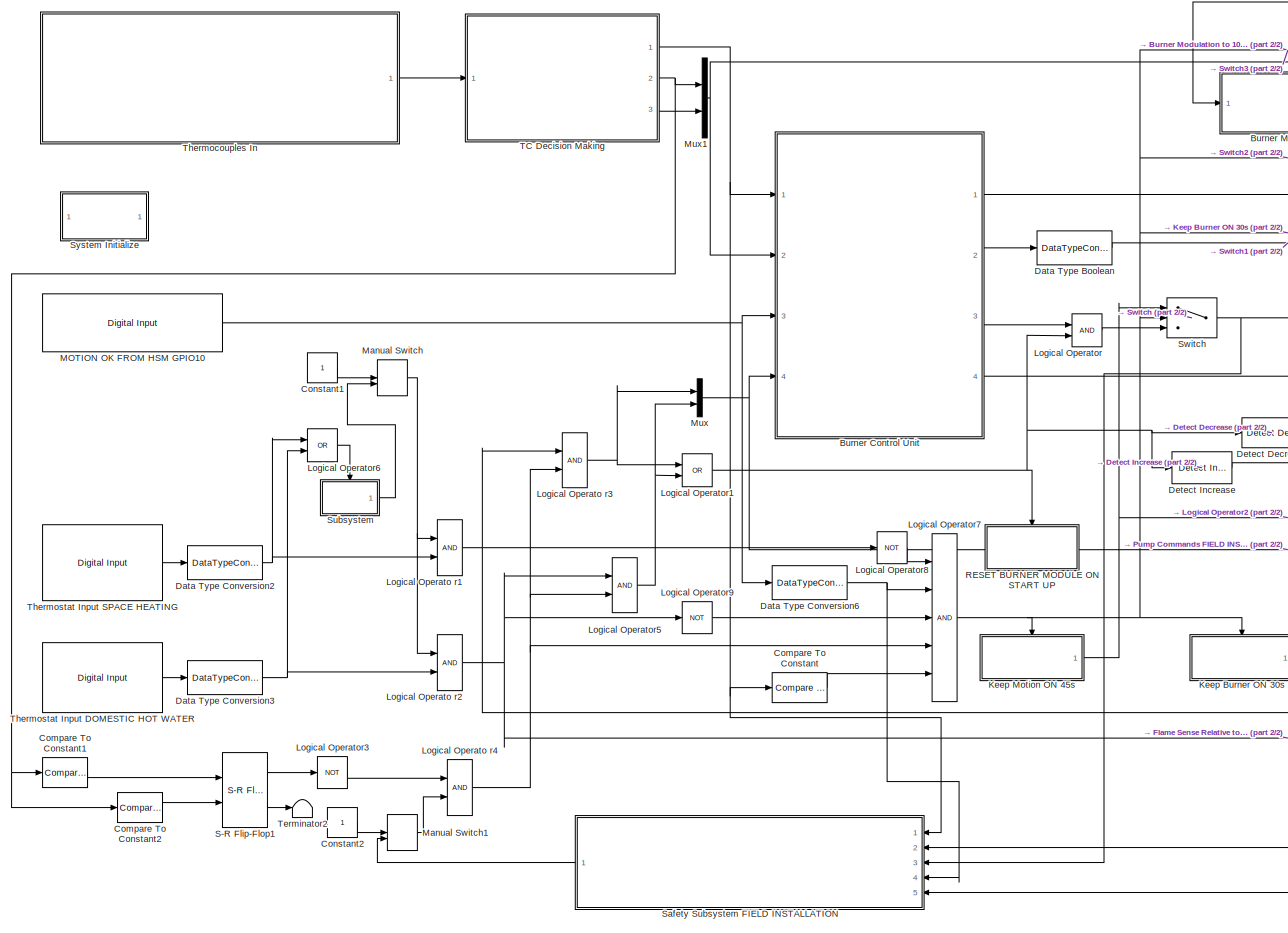
[diagram: root canvas - part 1/2, left side, full height]
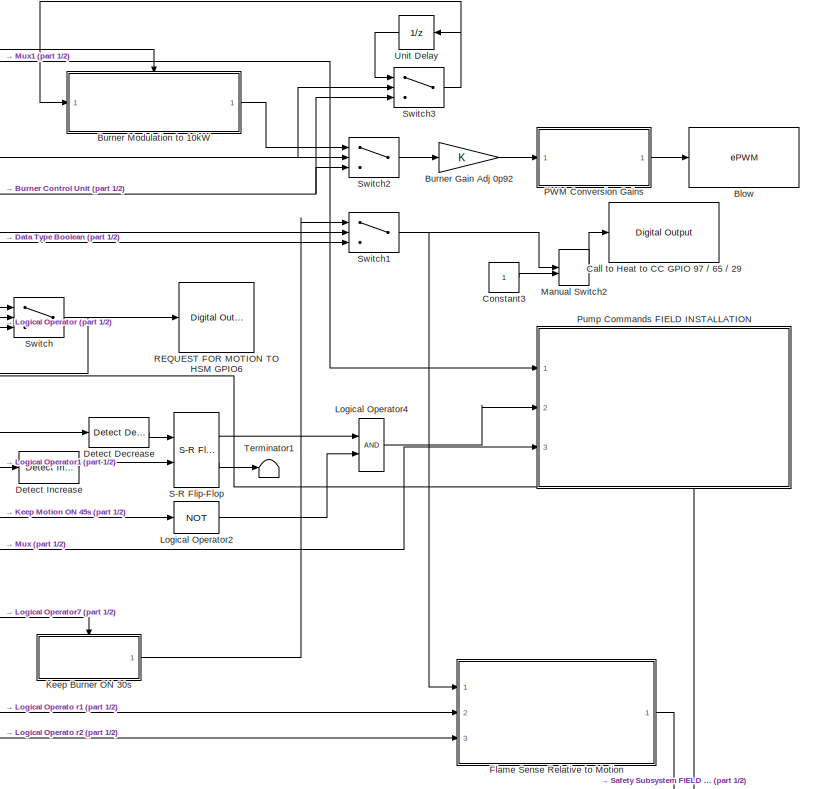
[diagram: root canvas - part 2/2, right side, full height]
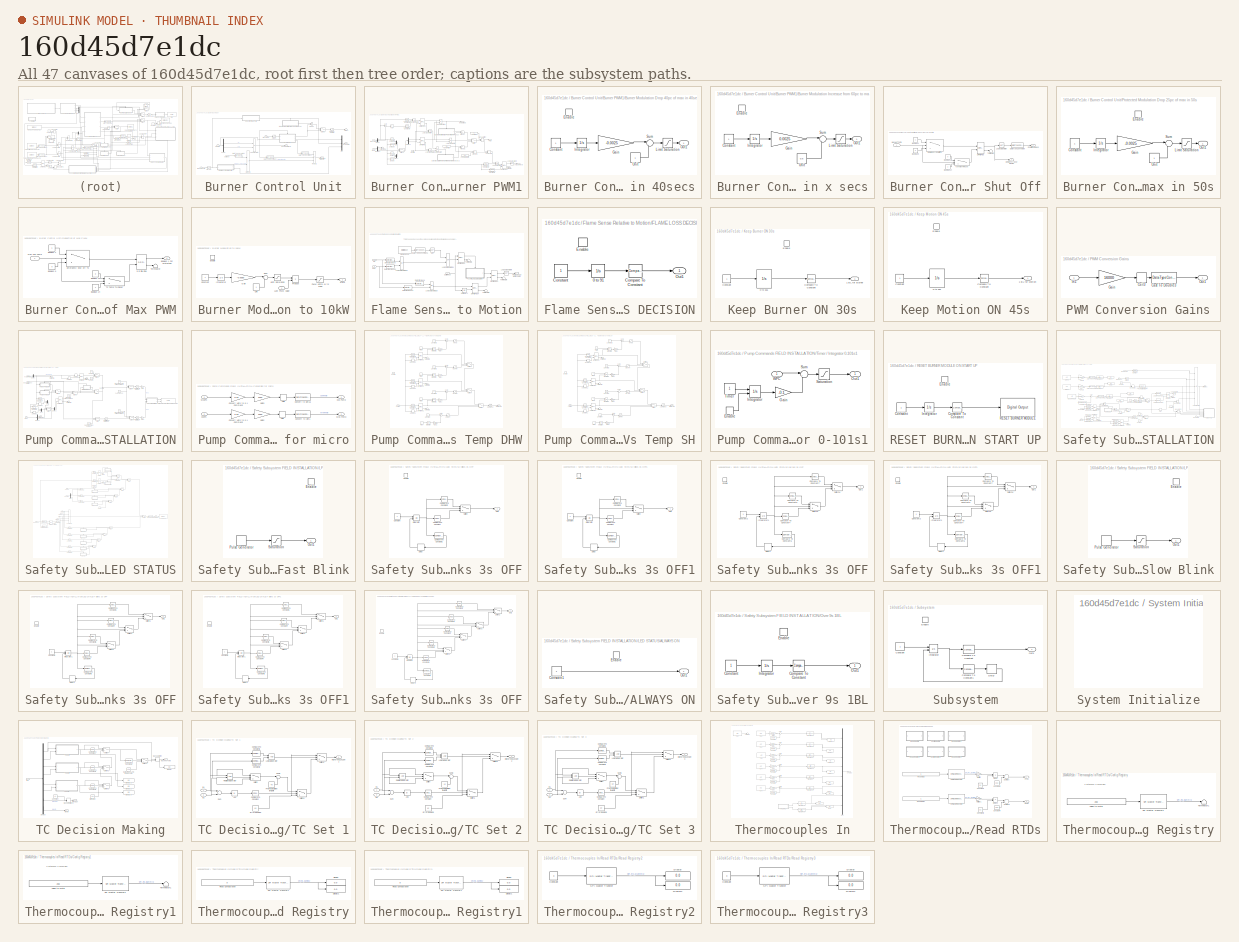
[diagram: thumbnail index - all 47 canvases of the model, root first then tree order]
MODEL slx_160d45d7e1dc
KIND model
CONFIG AbsTol = auto
CONFIG EnableMultiTasking = on
CONFIG FixedStep = Ts_lowspeed
CONFIG MaxStep = auto
CONFIG MinStep = auto
CONFIG PostLoadFcn = , if any(exist('dsrtsu_mdlpostloadfcn', 'file') == [2, 3, 6]), try dsrtsu_mdlpostloadfcn('Execute', bdroot); catch fprintf('Error in PostLoadFcn (dsrtsu_mdlpostloadfcn) for model "%s":\n %s\n', bdroot, lasterr); end, end, \n
CONFIG RelTol = 1e-3
CONFIG SampleTimeConstraint = Unconstrained
CONFIG Solver = FixedStepAuto
CONFIG SolverName = FixedStepAuto
CONFIG StartTime = 0.0
CONFIG StopTime = Inf
BLOCK [Reference] Blow  REF=c2802xlib/ePWM
  Ports = [1]
  SourceBlock = c2802xlib/ePWM
  SourceProductBaseCode = TIC2000
  SourceType = C2802x/03x/05x/06x/M3x/37x/07x/004x ePWM
  UserDataPersistent = on
BLOCK [SubSystem] Burner Control Unit
  Ports = [4, 4]
  RequestExecContextInheritance = off
BLOCK [Saturate] Burner Control Unit/0 to 700C
  InputPortMap = u0
  LowerLimit = 0
  Ports = [1, 1]
  UpperLimit = 705
BLOCK [Saturate] Burner Control Unit/0 to 80C
  InputPortMap = u0
  LowerLimit = 0
  Ports = [1, 1]
  UpperLimit = 80
BLOCK [SubSystem] Burner Control Unit/Burner PWM1
  Ports = [2, 3, 1]
  RequestExecContextInheritance = off
BLOCK [Constant] Burner Control Unit/Burner PWM1/15kW PWM
  OutDataTypeStr = double
  Value = 0.38
BLOCK [Abs] Burner Control Unit/Burner PWM1/Abs
  SaturateOnIntegerOverflow = off
BLOCK [Outport] Burner Control Unit/Burner PWM1/Avoid Overheat
  IconDisplay = Port number
  Port = 3
  VectorParamsAs1DForOutWhenUnconnected = on
BLOCK [SubSystem] Burner Control Unit/Burner PWM1/Burner Modulation Drop 40pc of max in 40secs
  Ports = [0, 1, 1]
  RequestExecContextInheritance = off
BLOCK [Constant] Burner Control Unit/Burner PWM1/Burner Modulation Drop 40pc of max in 40secs/Constant
BLOCK [EnablePort] Burner Control Unit/Burner PWM1/Burner Modulation Drop 40pc of max in 40secs/Enable
  Ports = []
  StatesWhenEnabling = reset
BLOCK [Gain] Burner Control Unit/Burner PWM1/Burner Modulation Drop 40pc of max in 40secs/Gain
  Gain = -0.0025
  OutDataTypeStr = Inherit: Inherit via internal rule
  ParamDataTypeStr = Inherit: Inherit via internal rule
  SaturateOnIntegerOverflow = off
BLOCK [Integrator] Burner Control Unit/Burner PWM1/Burner Modulation Drop 40pc of max in 40secs/Integrator
  LimitOutput = on
  LowerSaturationLimit = 0
  Ports = [1, 1]
  UpperSaturationLimit = 500
BLOCK [Saturate] Burner Control Unit/Burner PWM1/Burner Modulation Drop 40pc of max in 40secs/Limit Saturation
  InputPortMap = u0
  LowerLimit = 0.5
  Ports = [1, 1]
  UpperLimit = 1
BLOCK [Outport] Burner Control Unit/Burner PWM1/Burner Modulation Drop 40pc of max in 40secs/Out1
  IconDisplay = Port number
  VectorParamsAs1DForOutWhenUnconnected = on
BLOCK [Sum] Burner Control Unit/Burner PWM1/Burner Modulation Drop 40pc of max in 40secs/Sum
  IconShape = round
  InputSameDT = off
  Inputs = |++
  OutDataTypeStr = Inherit: Inherit via internal rule
  Ports = [2, 1]
  SaturateOnIntegerOverflow = off
BLOCK [Constant] Burner Control Unit/Burner PWM1/Burner Modulation Drop 40pc of max in 40secs/Unit
BLOCK [SubSystem] Burner Control Unit/Burner PWM1/Burner Modulation Increase from 60pc to max in x secs
  Ports = [0, 1, 1]
  RequestExecContextInheritance = off
BLOCK [Constant] Burner Control Unit/Burner PWM1/Burner Modulation Increase from 60pc to max in x secs/Constant
BLOCK [EnablePort] Burner Control Unit/Burner PWM1/Burner Modulation Increase from 60pc to max in x secs/Enable
  Ports = []
  StatesWhenEnabling = reset
BLOCK [Gain] Burner Control Unit/Burner PWM1/Burner Modulation Increase from 60pc to max in x secs/Gain
  Gain = 0.0025
  OutDataTypeStr = Inherit: Inherit via internal rule
  ParamDataTypeStr = Inherit: Inherit via internal rule
  SaturateOnIntegerOverflow = off
BLOCK [Integrator] Burner Control Unit/Burner PWM1/Burner Modulation Increase from 60pc to max in x secs/Integrator
  LimitOutput = on
  LowerSaturationLimit = 0
  Ports = [1, 1]
  UpperSaturationLimit = 500
BLOCK [Saturate] Burner Control Unit/Burner PWM1/Burner Modulation Increase from 60pc to max in x secs/Limit Saturation
  InputPortMap = u0
  LowerLimit = 0.5
  Ports = [1, 1]
  UpperLimit = 1
BLOCK [Outport] Burner Control Unit/Burner PWM1/Burner Modulation Increase from 60pc to max in x secs/Out1
  IconDisplay = Port number
  VectorParamsAs1DForOutWhenUnconnected = on
BLOCK [Sum] Burner Control Unit/Burner PWM1/Burner Modulation Increase from 60pc to max in x secs/Sum
  IconShape = round
  InputSameDT = off
  Inputs = |++
  OutDataTypeStr = Inherit: Inherit via internal rule
  Ports = [2, 1]
  SaturateOnIntegerOverflow = off
BLOCK [Constant] Burner Control Unit/Burner PWM1/Burner Modulation Increase from 60pc to max in x secs/Unit
  Value = 0.5
BLOCK [Constant] Burner Control Unit/Burner PWM1/Comparable Min
  OutDataTypeStr = double
  Value = 0.51
BLOCK [Reference] Burner Control Unit/Burner PWM1/Compare To Constant2  REF=simulink/Logic and Bit
Operations/Compare
To Constant
  Ports = [1, 1]
  SourceBlock = simulink/Logic and Bit\nOperations/Compare\nTo Constant
  SourceProductBaseCode = SL
  SourceType = Compare To Constant
BLOCK [Reference] Burner Control Unit/Burner PWM1/Compare To Constant3  REF=simulink/Logic and Bit
Operations/Compare
To Constant
  Ports = [1, 1]
  SourceBlock = simulink/Logic and Bit\nOperations/Compare\nTo Constant
  SourceProductBaseCode = SL
  SourceType = Compare To Constant
BLOCK [Reference] Burner Control Unit/Burner PWM1/Compare To Constant4  REF=simulink/Logic and Bit
Operations/Compare
To Constant
  Ports = [1, 1]
  SourceBlock = simulink/Logic and Bit\nOperations/Compare\nTo Constant
  SourceProductBaseCode = SL
  SourceType = Compare To Constant
BLOCK [Reference] Burner Control Unit/Burner PWM1/Compare To Constant5  REF=simulink/Logic and Bit
Operations/Compare
To Constant
  Ports = [1, 1]
  SourceBlock = simulink/Logic and Bit\nOperations/Compare\nTo Constant
  SourceProductBaseCode = SL
  SourceType = Compare To Constant
BLOCK [Reference] Burner Control Unit/Burner PWM1/DHW High  REF=simulink/Logic and Bit
Operations/Compare
To Constant
  Ports = [1, 1]
  SourceBlock = simulink/Logic and Bit\nOperations/Compare\nTo Constant
  SourceProductBaseCode = SL
  SourceType = Compare To Constant
BLOCK [Reference] Burner Control Unit/Burner PWM1/DHW Low  REF=simulink/Logic and Bit
Operations/Compare
To Constant
  Ports = [1, 1]
  SourceBlock = simulink/Logic and Bit\nOperations/Compare\nTo Constant
  SourceProductBaseCode = SL
  SourceType = Compare To Constant
BLOCK [Demux] Burner Control Unit/Burner PWM1/Demux
  DisplayOption = bar
  Outputs = 2
  Ports = [1, 2]
BLOCK [Demux] Burner Control Unit/Burner PWM1/Demux1
  DisplayOption = bar
  Outputs = 2
  Ports = [1, 2]
BLOCK [Demux] Burner Control Unit/Burner PWM1/Demux2
  DisplayOption = bar
  Outputs = 2
  Ports = [1, 2]
BLOCK [EnablePort] Burner Control Unit/Burner PWM1/Enable
  Ports = [0, 1]
  ShowOutputPort = on
  StatesWhenEnabling = reset
BLOCK [RelationalOperator] Burner Control Unit/Burner PWM1/Less Than
  InputSameDT = off
  Operator = <
  OutDataTypeStr = boolean
  Ports = [2, 1]
  RndMeth = Simplest
BLOCK [Logic] Burner Control Unit/Burner PWM1/Logical Operator
  AllPortsSameDT = off
  OutDataTypeStr = boolean
  Ports = [2, 1]
BLOCK [Logic] Burner Control Unit/Burner PWM1/Logical Operator1
  AllPortsSameDT = off
  OutDataTypeStr = boolean
  Ports = [2, 1]
BLOCK [Logic] Burner Control Unit/Burner PWM1/Logical Operator2
  AllPortsSameDT = off
  Operator = NOT
  OutDataTypeStr = boolean
  Ports = [1, 1]
BLOCK [Logic] Burner Control Unit/Burner PWM1/Logical Operator3
  AllPortsSameDT = off
  OutDataTypeStr = boolean
  Ports = [2, 1]
BLOCK [Logic] Burner Control Unit/Burner PWM1/Logical Operator4
  AllPortsSameDT = off
  Operator = OR
  OutDataTypeStr = boolean
  Ports = [2, 1]
BLOCK [Logic] Burner Control Unit/Burner PWM1/Logical Operator5
  AllPortsSameDT = off
  Operator = OR
  OutDataTypeStr = boolean
  Ports = [2, 1]
BLOCK [Logic] Burner Control Unit/Burner PWM1/Logical Operator6
  AllPortsSameDT = off
  OutDataTypeStr = boolean
  Ports = [2, 1]
BLOCK [Logic] Burner Control Unit/Burner PWM1/Logical Operator7
  AllPortsSameDT = off
  Operator = OR
  OutDataTypeStr = boolean
  Ports = [2, 1]
BLOCK [ManualSwitch] Burner Control Unit/Burner PWM1/Manual Switch
  CurrentSetting = 0
BLOCK [Inport] Burner Control Unit/Burner PWM1/Mode
  IconDisplay = Port number
  Port = 2
BLOCK [Mux] Burner Control Unit/Burner PWM1/Mux
  DisplayOption = bar
  Inputs = 2
  Ports = [2, 1]
BLOCK [Mux] Burner Control Unit/Burner PWM1/Mux1
  DisplayOption = bar
  Inputs = 2
  Ports = [2, 1]
BLOCK [Outport] Burner Control Unit/Burner PWM1/PWM
  IconDisplay = Port number
  VectorParamsAs1DForOutWhenUnconnected = on
BLOCK [Product] Burner Control Unit/Burner PWM1/Product
  InputSameDT = off
  OutDataTypeStr = Inherit: Inherit via internal rule
  Ports = [2, 1]
  RndMeth = Floor
  SaturateOnIntegerOverflow = off
BLOCK [Product] Burner Control Unit/Burner PWM1/Product1
  InputSameDT = off
  OutDataTypeStr = Inherit: Inherit via internal rule
  Ports = [2, 1]
  RndMeth = Floor
  SaturateOnIntegerOverflow = off
BLOCK [Product] Burner Control Unit/Burner PWM1/Product2
  InputSameDT = off
  OutDataTypeStr = Inherit: Inherit via internal rule
  Ports = [2, 1]
  RndMeth = Floor
  SaturateOnIntegerOverflow = off
BLOCK [Reference] Burner Control Unit/Burner PWM1/S-R Flip-Flop  REF=simulink_extras/Flip Flops/S-R
Flip-Flop
  Ports = [2, 2]
  SourceBlock = simulink_extras/Flip Flops/S-R\nFlip-Flop
  SourceProductBaseCode = SL
  SourceType = SRFlipFlop
BLOCK [Reference] Burner Control Unit/Burner PWM1/S-R Flip-Flop1  REF=simulink_extras/Flip Flops/S-R
Flip-Flop
  Ports = [2, 2]
  SourceBlock = simulink_extras/Flip Flops/S-R\nFlip-Flop
  SourceProductBaseCode = SL
  SourceType = SRFlipFlop
BLOCK [Reference] Burner Control Unit/Burner PWM1/S-R Flip-Flop2  REF=simulink_extras/Flip Flops/S-R
Flip-Flop
  Ports = [2, 2]
  SourceBlock = simulink_extras/Flip Flops/S-R\nFlip-Flop
  SourceProductBaseCode = SL
  SourceType = SRFlipFlop
BLOCK [Reference] Burner Control Unit/Burner PWM1/SH High  REF=simulink/Logic and Bit
Operations/Compare
To Constant
  Ports = [1, 1]
  SourceBlock = simulink/Logic and Bit\nOperations/Compare\nTo Constant
  SourceProductBaseCode = SL
  SourceType = Compare To Constant
BLOCK [Reference] Burner Control Unit/Burner PWM1/SH Low  REF=simulink/Logic and Bit
Operations/Compare
To Constant
  Ports = [1, 1]
  SourceBlock = simulink/Logic and Bit\nOperations/Compare\nTo Constant
  SourceProductBaseCode = SL
  SourceType = Compare To Constant
BLOCK [Sum] Burner Control Unit/Burner PWM1/Sum
  IconShape = round
  InputSameDT = off
  Inputs = |+-
  OutDataTypeStr = Inherit: Inherit via internal rule
  Ports = [2, 1]
  SaturateOnIntegerOverflow = off
BLOCK [Switch] Burner Control Unit/Burner PWM1/Switch
  Criteria = u2 > Threshold
  InputSameDT = off
  SaturateOnIntegerOverflow = off
  Threshold = 0.5
BLOCK [Switch] Burner Control Unit/Burner PWM1/Switch1
  Criteria = u2 > Threshold
  InputSameDT = off
  SaturateOnIntegerOverflow = off
  Threshold = 0.5
BLOCK [Terminator] Burner Control Unit/Burner PWM1/Terminator
BLOCK [Terminator] Burner Control Unit/Burner PWM1/Terminator SH
BLOCK [Constant] Burner Control Unit/Burner PWM1/Test PWM
  OutDataTypeStr = double
  Value = 0.41
BLOCK [Outport] Burner Control Unit/Burner PWM1/WHX Out Mod
  IconDisplay = Port number
  Port = 2
  VectorParamsAs1DForOutWhenUnconnected = on
BLOCK [Inport] Burner Control Unit/Burner PWM1/WHX Temps
  IconDisplay = Port number
BLOCK [DataTypeConversion] Burner Control Unit/Data Type Conversion
  OutDataTypeStr = double
  RndMeth = Floor
  SaturateOnIntegerOverflow = off
BLOCK [DataTypeConversion] Burner Control Unit/Data Type Conversion1
  OutDataTypeStr = double
  RndMeth = Floor
  SaturateOnIntegerOverflow = off
BLOCK [DataTypeConversion] Burner Control Unit/Data Type Conversion2
  OutDataTypeStr = double
  RndMeth = Floor
  SaturateOnIntegerOverflow = off
BLOCK [Demux] Burner Control Unit/Demux
  DisplayOption = bar
  Outputs = 2
  Ports = [1, 2]
BLOCK [SubSystem] Burner Control Unit/Emergency Burner Shut Off
  Ports = [1, 2]
  RequestExecContextInheritance = off
BLOCK [Constant] Burner Control Unit/Emergency Burner Shut Off/Boolean 0
  OutDataTypeStr = boolean
  Value = 0
BLOCK [Constant] Burner Control Unit/Emergency Burner Shut Off/Boolean 1
  OutDataTypeStr = boolean
BLOCK [Constant] Burner Control Unit/Emergency Burner Shut Off/Boolean 14
  OutDataTypeStr = boolean
BLOCK [Constant] Burner Control Unit/Emergency Burner Shut Off/Boolean 15
  OutDataTypeStr = boolean
  Value = 0
BLOCK [DataTypeConversion] Burner Control Unit/Emergency Burner Shut Off/Data Type Conversion
  OutDataTypeStr = double
  RndMeth = Floor
  SaturateOnIntegerOverflow = off
BLOCK [Outport] Burner Control Unit/Emergency Burner Shut Off/Emergency Shut OFF BL
  IconDisplay = Port number
  Port = 2
  VectorParamsAs1DForOutWhenUnconnected = on
BLOCK [Switch] Burner Control Unit/Emergency Burner Shut Off/Emergency Shut Off T3
  Criteria = u2 > Threshold
  InputSameDT = off
  SaturateOnIntegerOverflow = off
  Threshold = 615
BLOCK [Logic] Burner Control Unit/Emergency Burner Shut Off/Logical Operator
  AllPortsSameDT = off
  Operator = NOT
  OutDataTypeStr = boolean
  Ports = [1, 1]
BLOCK [Inport] Burner Control Unit/Emergency Burner Shut Off/Max HHT Temp
  IconDisplay = Port number
BLOCK [Reference] Burner Control Unit/Emergency Burner Shut Off/S-R Flip-Flop  REF=simulink_extras/Flip Flops/S-R
Flip-Flop
  Ports = [2, 2]
  SourceBlock = simulink_extras/Flip Flops/S-R\nFlip-Flop
  SourceProductBaseCode = SL
  SourceType = SRFlipFlop
BLOCK [Outport] Burner Control Unit/Emergency Burner Shut Off/Shut Off Command
  IconDisplay = Port number
  VectorParamsAs1DForOutWhenUnconnected = on
BLOCK [Switch] Burner Control Unit/Emergency Burner Shut Off/T3 Temp TH Reset
  Criteria = u2 > Threshold
  InputSameDT = off
  SaturateOnIntegerOverflow = off
  Threshold = 450
BLOCK [Terminator] Burner Control Unit/Emergency Burner Shut Off/Terminator
BLOCK [Outport] Burner Control Unit/Engage Motion BL
  IconDisplay = Port number
  Port = 3
  VectorParamsAs1DForOutWhenUnconnected = on
BLOCK [Outport] Burner Control Unit/HW Operating State DBL
  IconDisplay = Port number
  Port = 2
  VectorParamsAs1DForOutWhenUnconnected = on
BLOCK [Logic] Burner Control Unit/Logical Operator
  AllPortsSameDT = off
  Operator = OR
  OutDataTypeStr = boolean
  Ports = [2, 1]
BLOCK [Inport] Burner Control Unit/MODE BL
  IconDisplay = Port number
  Port = 4
BLOCK [Inport] Burner Control Unit/Max HHX Temp
  IconDisplay = Port number
BLOCK [Inport] Burner Control Unit/Motion OK
  IconDisplay = Port number
  Port = 3
BLOCK [Mux] Burner Control Unit/Mux
  DisplayOption = bar
  Inputs = 3
  Ports = [3, 1]
BLOCK [Outport] Burner Control Unit/Muxed States
  IconDisplay = Port number
  Port = 4
  VectorParamsAs1DForOutWhenUnconnected = on
BLOCK [Outport] Burner Control Unit/PWM 0-1
  IconDisplay = Port number
  VectorParamsAs1DForOutWhenUnconnected = on
BLOCK [Saturate] Burner Control Unit/PWM Final Saturation 
  InputPortMap = u0
  LowerLimit = 0.2
  Ports = [1, 1]
  UpperLimit = 0.41
BLOCK [Product] Burner Control Unit/Product
  InputSameDT = off
  OutDataTypeStr = Inherit: Inherit via internal rule
  Ports = [2, 1]
  RndMeth = Floor
  SaturateOnIntegerOverflow = off
BLOCK [Product] Burner Control Unit/Product1
  InputSameDT = off
  Inputs = 3
  OutDataTypeStr = Inherit: Inherit via internal rule
  Ports = [3, 1]
  RndMeth = Floor
  SaturateOnIntegerOverflow = off
BLOCK [Product] Burner Control Unit/Product3
  InputSameDT = off
  OutDataTypeStr = Inherit: Inherit via internal rule
  Ports = [2, 1]
  RndMeth = Floor
  SaturateOnIntegerOverflow = off
BLOCK [SubSystem] Burner Control Unit/Protected Modulation Drop 25pc of max in 50s
  Ports = [0, 1, 1]
  RequestExecContextInheritance = off
BLOCK [Constant] Burner Control Unit/Protected Modulation Drop 25pc of max in 50s/Constant
BLOCK [EnablePort] Burner Control Unit/Protected Modulation Drop 25pc of max in 50s/Enable
  Ports = []
  StatesWhenEnabling = reset
BLOCK [Gain] Burner Control Unit/Protected Modulation Drop 25pc of max in 50s/Gain
  Gain = -0.0025
  OutDataTypeStr = Inherit: Inherit via internal rule
  ParamDataTypeStr = Inherit: Inherit via internal rule
  SaturateOnIntegerOverflow = off
BLOCK [Integrator] Burner Control Unit/Protected Modulation Drop 25pc of max in 50s/Integrator
  LimitOutput = on
  LowerSaturationLimit = 0
  Ports = [1, 1]
  UpperSaturationLimit = 300
BLOCK [Saturate] Burner Control Unit/Protected Modulation Drop 25pc of max in 50s/Limit Saturation
  InputPortMap = u0
  LowerLimit = 0.75
  Ports = [1, 1]
  UpperLimit = 1
BLOCK [Outport] Burner Control Unit/Protected Modulation Drop 25pc of max in 50s/Out1
  IconDisplay = Port number
  VectorParamsAs1DForOutWhenUnconnected = on
BLOCK [Sum] Burner Control Unit/Protected Modulation Drop 25pc of max in 50s/Sum
  IconShape = round
  InputSameDT = off
  Inputs = |++
  OutDataTypeStr = Inherit: Inherit via internal rule
  Ports = [2, 1]
  SaturateOnIntegerOverflow = off
BLOCK [Constant] Burner Control Unit/Protected Modulation Drop 25pc of max in 50s/Unit
BLOCK [SubSystem] Burner Control Unit/Reduction of Max PWM
  Ports = [1, 1]
  RequestExecContextInheritance = off
BLOCK [Constant] Burner Control Unit/Reduction of Max PWM/Boolean 0
  OutDataTypeStr = boolean
  Value = 0
BLOCK [Constant] Burner Control Unit/Reduction of Max PWM/Boolean 1
  OutDataTypeStr = boolean
BLOCK [Outport] Burner Control Unit/Reduction of Max PWM/Boolean 1 For Protection
  IconDisplay = Port number
  VectorParamsAs1DForOutWhenUnconnected = on
BLOCK [Constant] Burner Control Unit/Reduction of Max PWM/Boolean 14
  OutDataTypeStr = boolean
BLOCK [Constant] Burner Control Unit/Reduction of Max PWM/Boolean 15
  OutDataTypeStr = boolean
  Value = 0
BLOCK [Switch] Burner Control Unit/Reduction of Max PWM/Emergency Shut Off T3
  Criteria = u2 > Threshold
  InputSameDT = off
  SaturateOnIntegerOverflow = off
  Threshold = 600
BLOCK [Inport] Burner Control Unit/Reduction of Max PWM/Max HHX Temp
  IconDisplay = Port number
BLOCK [Reference] Burner Control Unit/Reduction of Max PWM/S-R Flip-Flop  REF=simulink_extras/Flip Flops/S-R
Flip-Flop
  Ports = [2, 2]
  SourceBlock = simulink_extras/Flip Flops/S-R\nFlip-Flop
  SourceProductBaseCode = SL
  SourceType = SRFlipFlop
BLOCK [Switch] Burner Control Unit/Reduction of Max PWM/T3 Temp TH Reset
  Criteria = u2 > Threshold
  InputSameDT = off
  SaturateOnIntegerOverflow = off
  Threshold = 580
BLOCK [Terminator] Burner Control Unit/Reduction of Max PWM/Terminator
BLOCK [Switch] Burner Control Unit/Switch2
  Criteria = u2 > Threshold
  InputSameDT = off
  SaturateOnIntegerOverflow = off
  Threshold = 0.5
BLOCK [Inport] Burner Control Unit/WHX Temps
  IconDisplay = Port number
  Port = 2
BLOCK [Gain] Burner Gain Adj 0p92
  OutDataTypeStr = Inherit: Inherit via internal rule
  ParamDataTypeStr = Inherit: Inherit via internal rule
  SaturateOnIntegerOverflow = off
BLOCK [SubSystem] Burner Modulation to 10kW
  Ports = [1, 1, 1]
  RequestExecContextInheritance = off
BLOCK [Constant] Burner Modulation to 10kW/Constant
BLOCK [EnablePort] Burner Modulation to 10kW/Enable
  Ports = []
  StatesWhenEnabling = reset
BLOCK [Gain] Burner Modulation to 10kW/Gain
  Gain = -0.0030
  OutDataTypeStr = Inherit: Inherit via internal rule
  ParamDataTypeStr = Inherit: Inherit via internal rule
  SaturateOnIntegerOverflow = off
BLOCK [Integrator] Burner Modulation to 10kW/Integrator
  LimitOutput = on
  LowerSaturationLimit = 0
  Ports = [1, 1]
  UpperSaturationLimit = 300
BLOCK [Inport] Burner Modulation to 10kW/Last PWM Value
  IconDisplay = Port number
BLOCK [Saturate] Burner Modulation to 10kW/Limit Saturation
  InputPortMap = u0
  LowerLimit = 0.7
  Ports = [1, 1]
  UpperLimit = 1
BLOCK [Outport] Burner Modulation to 10kW/Out1
  IconDisplay = Port number
BLOCK [Saturate] Burner Modulation to 10kW/PWM Limits 41 to 24p6
  InputPortMap = u0
  LowerLimit = 0.246
  Ports = [1, 1]
  UpperLimit = 0.41
BLOCK [Product] Burner Modulation to 10kW/Product
  InputSameDT = off
  OutDataTypeStr = Inherit: Inherit via internal rule
  Ports = [2, 1]
  RndMeth = Floor
  SaturateOnIntegerOverflow = off
BLOCK [Sum] Burner Modulation to 10kW/Sum
  IconShape = round
  InputSameDT = off
  Inputs = |++
  OutDataTypeStr = Inherit: Inherit via internal rule
  Ports = [2, 1]
  SaturateOnIntegerOverflow = off
BLOCK [Constant] Burner Modulation to 10kW/Unit
BLOCK [Reference] Call to Heat to CC GPIO 97 // 65 // 29  REF=c2837xDlib/Digital Output
  Ports = [1]
  SourceBlock = c2837xDlib/Digital Output
  SourceProductBaseCode = TIC2000
  SourceType = F2837x GPIO Digital Output
  UserDataPersistent = on
BLOCK [Reference] Compare To Constant  REF=simulink/Logic and Bit
Operations/Compare
To Constant
  Ports = [1, 1]
  SourceBlock = simulink/Logic and Bit\nOperations/Compare\nTo Constant
  SourceProductBaseCode = SL
  SourceType = Compare To Constant
BLOCK [Reference] Compare To Constant1  REF=simulink/Logic and Bit
Operations/Compare
To Constant
  Ports = [1, 1]
  SourceBlock = simulink/Logic and Bit\nOperations/Compare\nTo Constant
  SourceProductBaseCode = SL
  SourceType = Compare To Constant
BLOCK [Reference] Compare To Constant2  REF=simulink/Logic and Bit
Operations/Compare
To Constant
  Ports = [1, 1]
  SourceBlock = simulink/Logic and Bit\nOperations/Compare\nTo Constant
  SourceProductBaseCode = SL
  SourceType = Compare To Constant
BLOCK [Constant] Constant1
  OutDataTypeStr = boolean
BLOCK [Constant] Constant2
  OutDataTypeStr = boolean
BLOCK [Constant] Constant3
  OutDataTypeStr = boolean
BLOCK [DataTypeConversion] Data Type Boolean
  OutDataTypeStr = boolean
  RndMeth = Floor
  SaturateOnIntegerOverflow = off
BLOCK [DataTypeConversion] Data Type Conversion2
  OutDataTypeStr = boolean
  RndMeth = Floor
  SaturateOnIntegerOverflow = off
BLOCK [DataTypeConversion] Data Type Conversion3
  OutDataTypeStr = boolean
  RndMeth = Floor
  SaturateOnIntegerOverflow = off
BLOCK [DataTypeConversion] Data Type Conversion6
  OutDataTypeStr = boolean
  RndMeth = Floor
  SaturateOnIntegerOverflow = off
BLOCK [Reference] Detect Decrease  REF=simulink/Logic and Bit
Operations/Detect
Decrease
  Ports = [1, 1]
  SourceBlock = simulink/Logic and Bit\nOperations/Detect\nDecrease
  SourceProductBaseCode = SL
  SourceType = Detect Decrease
BLOCK [Reference] Detect Increase  REF=simulink/Logic and Bit
Operations/Detect
Increase
  Ports = [1, 1]
  SourceBlock = simulink/Logic and Bit\nOperations/Detect\nIncrease
  SourceProductBaseCode = SL
  SourceType = Detect Increase
BLOCK [SubSystem] Flame Sense Relative to Motion
  Ports = [3, 1]
  RequestExecContextInheritance = off
BLOCK [Inport] Flame Sense Relative to Motion/Call for Heat
  IconDisplay = Port number
BLOCK [Inport] Flame Sense Relative to Motion/DHW
  IconDisplay = Port number
  Port = 3
BLOCK [DataTypeConversion] Flame Sense Relative to Motion/Data Type Conversion1
  OutDataTypeStr = boolean
  RndMeth = Floor
  SaturateOnIntegerOverflow = off
BLOCK [Reference] Flame Sense Relative to Motion/Detect Decrease  REF=simulink/Logic and Bit
Operations/Detect
Decrease
  Ports = [1, 1]
  SourceBlock = simulink/Logic and Bit\nOperations/Detect\nDecrease
  SourceProductBaseCode = SL
  SourceType = Detect Decrease
BLOCK [Reference] Flame Sense Relative to Motion/Detect Decrease1  REF=simulink/Logic and Bit
Operations/Detect
Decrease
  Ports = [1, 1]
  SourceBlock = simulink/Logic and Bit\nOperations/Detect\nDecrease
  SourceProductBaseCode = SL
  SourceType = Detect Decrease
BLOCK [Reference] Flame Sense Relative to Motion/Detect Increase  REF=simulink/Logic and Bit
Operations/Detect
Increase
  Ports = [1, 1]
  SourceBlock = simulink/Logic and Bit\nOperations/Detect\nIncrease
  SourceProductBaseCode = SL
  SourceType = Detect Increase
BLOCK [Reference] Flame Sense Relative to Motion/Detect Increase1  REF=simulink/Logic and Bit
Operations/Detect
Increase
  Ports = [1, 1]
  SourceBlock = simulink/Logic and Bit\nOperations/Detect\nIncrease
  SourceProductBaseCode = SL
  SourceType = Detect Increase
BLOCK [SubSystem] Flame Sense Relative to Motion/FLAME LOSS DECISION
  Ports = [0, 1, 1]
  RequestExecContextInheritance = off
BLOCK [Integrator] Flame Sense Relative to Motion/FLAME LOSS DECISION/0 to 91
  LimitOutput = on
  LowerSaturationLimit = 0
  Ports = [1, 1]
  UpperSaturationLimit = 91
BLOCK [Reference] Flame Sense Relative to Motion/FLAME LOSS DECISION/Compare To Constant  REF=simulink/Logic and Bit
Operations/Compare
To Constant
  Ports = [1, 1]
  SourceBlock = simulink/Logic and Bit\nOperations/Compare\nTo Constant
  SourceProductBaseCode = SL
  SourceType = Compare To Constant
BLOCK [Constant] Flame Sense Relative to Motion/FLAME LOSS DECISION/Constant
BLOCK [EnablePort] Flame Sense Relative to Motion/FLAME LOSS DECISION/Enable
  Ports = []
  StatesWhenEnabling = reset
BLOCK [Outport] Flame Sense Relative to Motion/FLAME LOSS DECISION/Out1
  IconDisplay = Port number
BLOCK [Reference] Flame Sense Relative to Motion/Flame Sense  REF=c2837xDlib/Digital Input
  Ports = [0, 1]
  SourceBlock = c2837xDlib/Digital Input
  SourceProductBaseCode = TIC2000
  SourceType = F2837x GPIO Digital Input
  UserDataPersistent = on
BLOCK [Outport] Flame Sense Relative to Motion/Flame Sense Motion Safety
  IconDisplay = Port number
BLOCK [Logic] Flame Sense Relative to Motion/Logical Operator10
  AllPortsSameDT = off
  Operator = OR
  OutDataTypeStr = boolean
  Ports = [2, 1]
BLOCK [Logic] Flame Sense Relative to Motion/Logical Operator11
  AllPortsSameDT = off
  Operator = OR
  OutDataTypeStr = boolean
  Ports = [2, 1]
BLOCK [Logic] Flame Sense Relative to Motion/Logical Operator12
  AllPortsSameDT = off
  Operator = OR
  OutDataTypeStr = boolean
  Ports = [2, 1]
BLOCK [Logic] Flame Sense Relative to Motion/Logical Operator6
  AllPortsSameDT = off
  Operator = NOT
  OutDataTypeStr = boolean
  Ports = [1, 1]
BLOCK [Logic] Flame Sense Relative to Motion/NOT
  AllPortsSameDT = off
  IconShape = distinctive
  Operator = NOT
  OutDataTypeStr = boolean
  Ports = [1, 1]
BLOCK [Reference] Flame Sense Relative to Motion/S-R Flip-Flop2  REF=simulink_extras/Flip Flops/S-R
Flip-Flop
  Ports = [2, 2]
  SourceBlock = simulink_extras/Flip Flops/S-R\nFlip-Flop
  SourceProductBaseCode = SL
  SourceType = SRFlipFlop
BLOCK [Reference] Flame Sense Relative to Motion/S-R Flip-Flop3  REF=simulink_extras/Flip Flops/S-R
Flip-Flop
  Ports = [2, 2]
  SourceBlock = simulink_extras/Flip Flops/S-R\nFlip-Flop
  SourceProductBaseCode = SL
  SourceType = SRFlipFlop
BLOCK [Reference] Flame Sense Relative to Motion/S-R Flip-Flop4  REF=simulink_extras/Flip Flops/S-R
Flip-Flop
  Ports = [2, 2]
  SourceBlock = simulink_extras/Flip Flops/S-R\nFlip-Flop
  SourceProductBaseCode = SL
  SourceType = SRFlipFlop
BLOCK [Inport] Flame Sense Relative to Motion/SH
  IconDisplay = Port number
  Port = 2
BLOCK [Terminator] Flame Sense Relative to Motion/Terminator1
BLOCK [Terminator] Flame Sense Relative to Motion/Terminator5
BLOCK [Terminator] Flame Sense Relative to Motion/Terminator8
BLOCK [UnitDelay] Flame Sense Relative to Motion/Unit Delay1
  HasFrameUpgradeWarning = on
  SampleTime = -1
BLOCK [SubSystem] Keep Burner ON 30s
  Ports = [0, 1, 1]
  RequestExecContextInheritance = off
BLOCK [Integrator] Keep Burner ON 30s/0 to 151
  LimitOutput = on
  LowerSaturationLimit = 0
  Ports = [1, 1]
  UpperSaturationLimit = 151
BLOCK [Outport] Keep Burner ON 30s/1 BL for Burner
  IconDisplay = Port number
BLOCK [Reference] Keep Burner ON 30s/Compare To Constant  REF=simulink/Logic and Bit
Operations/Compare
To Constant
  Ports = [1, 1]
  SourceBlock = simulink/Logic and Bit\nOperations/Compare\nTo Constant
  SourceProductBaseCode = SL
  SourceType = Compare To Constant
BLOCK [Constant] Keep Burner ON 30s/Constant
BLOCK [EnablePort] Keep Burner ON 30s/Enable
  Ports = []
  StatesWhenEnabling = reset
BLOCK [SubSystem] Keep Motion ON 45s
  Ports = [0, 1, 1]
  RequestExecContextInheritance = off
BLOCK [Integrator] Keep Motion ON 45s/0 to 151
  LimitOutput = on
  LowerSaturationLimit = 0
  Ports = [1, 1]
  UpperSaturationLimit = 151
BLOCK [Outport] Keep Motion ON 45s/1 BL for Motion
  IconDisplay = Port number
BLOCK [Reference] Keep Motion ON 45s/Compare To Constant  REF=simulink/Logic and Bit
Operations/Compare
To Constant
  Ports = [1, 1]
  SourceBlock = simulink/Logic and Bit\nOperations/Compare\nTo Constant
  SourceProductBaseCode = SL
  SourceType = Compare To Constant
BLOCK [Constant] Keep Motion ON 45s/Constant
BLOCK [EnablePort] Keep Motion ON 45s/Enable
  Ports = []
  StatesWhenEnabling = reset
BLOCK [Logic] Logical Operato r1
  AllPortsSameDT = off
  OutDataTypeStr = boolean
  Ports = [2, 1]
BLOCK [Logic] Logical Operato r2
  AllPortsSameDT = off
  OutDataTypeStr = boolean
  Ports = [2, 1]
BLOCK [Logic] Logical Operato r3
  AllPortsSameDT = off
  OutDataTypeStr = boolean
  Ports = [2, 1]
BLOCK [Logic] Logical Operato r4
  AllPortsSameDT = off
  OutDataTypeStr = boolean
  Ports = [2, 1]
BLOCK [Logic] Logical Operator
  AllPortsSameDT = off
  OutDataTypeStr = boolean
  Ports = [2, 1]
BLOCK [Logic] Logical Operator1
  AllPortsSameDT = off
  Operator = OR
  OutDataTypeStr = boolean
  Ports = [2, 1]
BLOCK [Logic] Logical Operator2
  AllPortsSameDT = off
  Operator = NOT
  OutDataTypeStr = boolean
  Ports = [1, 1]
BLOCK [Logic] Logical Operator3
  AllPortsSameDT = off
  Operator = NOT
  OutDataTypeStr = boolean
  Ports = [1, 1]
BLOCK [Logic] Logical Operator4
  AllPortsSameDT = off
  OutDataTypeStr = boolean
  Ports = [2, 1]
BLOCK [Logic] Logical Operator5
  AllPortsSameDT = off
  OutDataTypeStr = boolean
  Ports = [2, 1]
BLOCK [Logic] Logical Operator6
  AllPortsSameDT = off
  Operator = OR
  OutDataTypeStr = boolean
  Ports = [2, 1]
BLOCK [Logic] Logical Operator7
  AllPortsSameDT = off
  Inputs = 5
  OutDataTypeStr = boolean
  Ports = [5, 1]
BLOCK [Logic] Logical Operator8
  AllPortsSameDT = off
  Operator = NOT
  OutDataTypeStr = boolean
  Ports = [1, 1]
BLOCK [Logic] Logical Operator9
  AllPortsSameDT = off
  Operator = NOT
  OutDataTypeStr = boolean
  Ports = [1, 1]
BLOCK [Reference] MOTION OK FROM HSM GPIO10  REF=c2837xDlib/Digital Input
  Ports = [0, 1]
  SourceBlock = c2837xDlib/Digital Input
  SourceProductBaseCode = TIC2000
  SourceType = F2837x GPIO Digital Input
  UserDataPersistent = on
BLOCK [ManualSwitch] Manual Switch
  CurrentSetting = 0
BLOCK [ManualSwitch] Manual Switch1
  CurrentSetting = 0
BLOCK [ManualSwitch] Manual Switch2
BLOCK [Mux] Mux
  DisplayOption = bar
  Inputs = 2
  Ports = [2, 1]
BLOCK [Mux] Mux1
  DisplayOption = bar
  Inputs = 2
  Ports = [2, 1]
BLOCK [SubSystem] PWM Conversion Gains
  Ports = [1, 1]
  RequestExecContextInheritance = off
BLOCK [DataTypeConversion] PWM Conversion Gains/Cast To Double3
  OutDataTypeStr = uint16
  RndMeth = Floor
  SaturateOnIntegerOverflow = off
BLOCK [Rounding] PWM Conversion Gains/Ceil3
  Operator = ceil
BLOCK [Gain] PWM Conversion Gains/Gain
  Gain = 16000
  OutDataTypeStr = Inherit: Inherit via internal rule
  ParamDataTypeStr = Inherit: Inherit via internal rule
  SaturateOnIntegerOverflow = off
BLOCK [Inport] PWM Conversion Gains/In1
  IconDisplay = Port number
BLOCK [Outport] PWM Conversion Gains/Out1
  IconDisplay = Port number
BLOCK [SubSystem] Pump Commands FIELD INSTALLATION
  Ports = [3]
  RequestExecContextInheritance = off
BLOCK [Constant] Pump Commands FIELD INSTALLATION/0 Auto 1 Manual
  OutDataTypeStr = boolean
  Value = 0
BLOCK [Constant] Pump Commands FIELD INSTALLATION/CHX Pump Voltage Command
  Value = 1.5
BLOCK [Reference] Pump Commands FIELD INSTALLATION/Compare To Constant  REF=simulink/Logic and Bit
Operations/Compare
To Constant
  Ports = [1, 1]
  SourceBlock = simulink/Logic and Bit\nOperations/Compare\nTo Constant
  SourceProductBaseCode = SL
  SourceType = Compare To Constant
BLOCK [Reference] Pump Commands FIELD INSTALLATION/Compare To Constant1  REF=simulink/Logic and Bit
Operations/Compare
To Constant
  Ports = [1, 1]
  SourceBlock = simulink/Logic and Bit\nOperations/Compare\nTo Constant
  SourceProductBaseCode = SL
  SourceType = Compare To Constant
BLOCK [Constant] Pump Commands FIELD INSTALLATION/Constant
  Value = 0
BLOCK [Constant] Pump Commands FIELD INSTALLATION/Constant1
  Value = 5
BLOCK [SubSystem] Pump Commands FIELD INSTALLATION/Conversion for micro
  Ports = [2, 2]
  RequestExecContextInheritance = off
BLOCK [Outport] Pump Commands FIELD INSTALLATION/Conversion for micro/CHX Pump
  IconDisplay = Port number
BLOCK [Inport] Pump Commands FIELD INSTALLATION/Conversion for micro/CHXPC
  IconDisplay = Port number
  Port = 2
BLOCK [Rounding] Pump Commands FIELD INSTALLATION/Conversion for micro/Ceil2
  Operator = ceil
BLOCK [Rounding] Pump Commands FIELD INSTALLATION/Conversion for micro/Ceil4
  Operator = ceil
BLOCK [Gain] Pump Commands FIELD INSTALLATION/Conversion for micro/Convert Volts to 0-1 Command
  Gain = 1/10
  OutDataTypeStr = Inherit: Inherit via internal rule
  ParamDataTypeStr = Inherit: Inherit via internal rule
  SaturateOnIntegerOverflow = off
BLOCK [Gain] Pump Commands FIELD INSTALLATION/Conversion for micro/Convert Volts to 0-1 Command 
  Gain = 1/10
  OutDataTypeStr = Inherit: Inherit via internal rule
  ParamDataTypeStr = Inherit: Inherit via internal rule
  SaturateOnIntegerOverflow = off
BLOCK [DataTypeConversion] Pump Commands FIELD INSTALLATION/Conversion for micro/Convert to uint1
  OutDataTypeStr = uint16
  RndMeth = Floor
  SaturateOnIntegerOverflow = off
BLOCK [DataTypeConversion] Pump Commands FIELD INSTALLATION/Conversion for micro/Convert to uint16
  OutDataTypeStr = uint16
  RndMeth = Floor
  SaturateOnIntegerOverflow = off
BLOCK [Gain] Pump Commands FIELD INSTALLATION/Conversion for micro/Gain2
  Gain = 1023
  OutDataTypeStr = Inherit: Inherit via internal rule
  ParamDataTypeStr = Inherit: Inherit via internal rule
  SaturateOnIntegerOverflow = off
BLOCK [Gain] Pump Commands FIELD INSTALLATION/Conversion for micro/Gain3
  Gain = 1023
  OutDataTypeStr = Inherit: Inherit via internal rule
  ParamDataTypeStr = Inherit: Inherit via internal rule
  SaturateOnIntegerOverflow = off
BLOCK [Outport] Pump Commands FIELD INSTALLATION/Conversion for micro/WHX Pump
  IconDisplay = Port number
  Port = 2
BLOCK [Inport] Pump Commands FIELD INSTALLATION/Conversion for micro/WHXPC
  IconDisplay = Port number
BLOCK [Demux] Pump Commands FIELD INSTALLATION/Demux
  DisplayOption = bar
  Outputs = 2
  Ports = [1, 2]
BLOCK [Demux] Pump Commands FIELD INSTALLATION/Demux1
  DisplayOption = bar
  Outputs = 2
  Ports = [1, 2]
BLOCK [Demux] Pump Commands FIELD INSTALLATION/Demux2
  DisplayOption = bar
  Outputs = 2
  Ports = [1, 2]
BLOCK [Inport] Pump Commands FIELD INSTALLATION/Engage WP Shut Down
  IconDisplay = Port number
  Port = 2
BLOCK [Gain] Pump Commands FIELD INSTALLATION/Gain
  OutDataTypeStr = Inherit: Inherit via internal rule
  ParamDataTypeStr = Inherit: Inherit via internal rule
  SaturateOnIntegerOverflow = off
BLOCK [Gain] Pump Commands FIELD INSTALLATION/Gain1
  OutDataTypeStr = Inherit: Inherit via internal rule
  ParamDataTypeStr = Inherit: Inherit via internal rule
  SaturateOnIntegerOverflow = off
BLOCK [Inport] Pump Commands FIELD INSTALLATION/HX Out Temps
  IconDisplay = Port number
BLOCK [Constant] Pump Commands FIELD INSTALLATION/Manual CHX Pump Voltage Command
  Value = 4.75
BLOCK [Constant] Pump Commands FIELD INSTALLATION/Manual WHX Pump Voltage Command
  Value = 4.75
BLOCK [Inport] Pump Commands FIELD INSTALLATION/Mode
  IconDisplay = Port number
  Port = 3
BLOCK [Mux] Pump Commands FIELD INSTALLATION/Mux
  DisplayOption = bar
  Inputs = 2
  Ports = [2, 1]
BLOCK [Mux] Pump Commands FIELD INSTALLATION/Mux1
  DisplayOption = bar
  Inputs = 2
  Ports = [2, 1]
BLOCK [HitCross] Pump Commands FIELD INSTALLATION/Over 68C
  HitCrossingDirection = rising
  HitCrossingOffset = 68
  Ports = [1, 1]
BLOCK [SubSystem] Pump Commands FIELD INSTALLATION/Pump Vs Temp DHW
  Ports = [1, 1, 1]
  RequestExecContextInheritance = off
BLOCK [Saturate] Pump Commands FIELD INSTALLATION/Pump Vs Temp DHW/2p8 4p7
  InputPortMap = u0
  LowerLimit = 2.8
  Ports = [1, 1]
  UpperLimit = 4.7
BLOCK [Saturate] Pump Commands FIELD INSTALLATION/Pump Vs Temp DHW/2p8V to 10V
  InputPortMap = u0
  LowerLimit = 2.8
  Ports = [1, 1]
  UpperLimit = 10
BLOCK [Saturate] Pump Commands FIELD INSTALLATION/Pump Vs Temp DHW/4p7 6p2
  InputPortMap = u0
  LowerLimit = 4.7
  Ports = [1, 1]
  UpperLimit = 6.2
BLOCK [Saturate] Pump Commands FIELD INSTALLATION/Pump Vs Temp DHW/6p2 7p4
  InputPortMap = u0
  LowerLimit = 6.2
  Ports = [1, 1]
  UpperLimit = 7.4
BLOCK [Saturate] Pump Commands FIELD INSTALLATION/Pump Vs Temp DHW/7p4 10
  InputPortMap = u0
  LowerLimit = 7.4
  Ports = [1, 1]
  UpperLimit = 10
BLOCK [Reference] Pump Commands FIELD INSTALLATION/Pump Vs Temp DHW/Compare To Constant  REF=simulink/Logic and Bit
Operations/Compare
To Constant
  Ports = [1, 1]
  SourceBlock = simulink/Logic and Bit\nOperations/Compare\nTo Constant
  SourceProductBaseCode = SL
  SourceType = Compare To Constant
BLOCK [Reference] Pump Commands FIELD INSTALLATION/Pump Vs Temp DHW/Compare To Constant1  REF=simulink/Logic and Bit
Operations/Compare
To Constant
  Ports = [1, 1]
  SourceBlock = simulink/Logic and Bit\nOperations/Compare\nTo Constant
  SourceProductBaseCode = SL
  SourceType = Compare To Constant
BLOCK [Reference] Pump Commands FIELD INSTALLATION/Pump Vs Temp DHW/Compare To Constant2  REF=simulink/Logic and Bit
Operations/Compare
To Constant
  Ports = [1, 1]
  SourceBlock = simulink/Logic and Bit\nOperations/Compare\nTo Constant
  SourceProductBaseCode = SL
  SourceType = Compare To Constant
BLOCK [Constant] Pump Commands FIELD INSTALLATION/Pump Vs Temp DHW/Constant
  Value = 2.8
BLOCK [Constant] Pump Commands FIELD INSTALLATION/Pump Vs Temp DHW/Constant1
  Value = 4.7
BLOCK [Constant] Pump Commands FIELD INSTALLATION/Pump Vs Temp DHW/Constant2
  Value = 6.2
BLOCK [Constant] Pump Commands FIELD INSTALLATION/Pump Vs Temp DHW/Constant3
  Value = 7.4
BLOCK [EnablePort] Pump Commands FIELD INSTALLATION/Pump Vs Temp DHW/Enable
  Ports = []
  StatesWhenEnabling = reset
BLOCK [Gain] Pump Commands FIELD INSTALLATION/Pump Vs Temp DHW/Gain1
  Gain = 0.025
  OutDataTypeStr = Inherit: Inherit via internal rule
  ParamDataTypeStr = Inherit: Inherit via internal rule
  SaturateOnIntegerOverflow = off
BLOCK [Gain] Pump Commands FIELD INSTALLATION/Pump Vs Temp DHW/Gain2
  Gain = 0.025
  OutDataTypeStr = Inherit: Inherit via internal rule
  ParamDataTypeStr = Inherit: Inherit via internal rule
  SaturateOnIntegerOverflow = off
BLOCK [Gain] Pump Commands FIELD INSTALLATION/Pump Vs Temp DHW/Gain3
  Gain = 0.025
  OutDataTypeStr = Inherit: Inherit via internal rule
  ParamDataTypeStr = Inherit: Inherit via internal rule
  SaturateOnIntegerOverflow = off
BLOCK [Gain] Pump Commands FIELD INSTALLATION/Pump Vs Temp DHW/Gain4
  Gain = 0.025
  OutDataTypeStr = Inherit: Inherit via internal rule
  ParamDataTypeStr = Inherit: Inherit via internal rule
  SaturateOnIntegerOverflow = off
BLOCK [Integrator] Pump Commands FIELD INSTALLATION/Pump Vs Temp DHW/Integrator
  LimitOutput = on
  LowerSaturationLimit = 0
  Ports = [1, 1]
  UpperSaturationLimit = 300
BLOCK [Integrator] Pump Commands FIELD INSTALLATION/Pump Vs Temp DHW/Integrator1
  ExternalReset = rising
  LimitOutput = on
  LowerSaturationLimit = 0
  Ports = [2, 1]
  UpperSaturationLimit = 300
BLOCK [Integrator] Pump Commands FIELD INSTALLATION/Pump Vs Temp DHW/Integrator2
  ExternalReset = rising
  LimitOutput = on
  LowerSaturationLimit = 0
  Ports = [2, 1]
  UpperSaturationLimit = 300
BLOCK [Integrator] Pump Commands FIELD INSTALLATION/Pump Vs Temp DHW/Integrator3
  ExternalReset = rising
  LimitOutput = on
  LowerSaturationLimit = 0
  Ports = [2, 1]
  UpperSaturationLimit = 300
BLOCK [Reference] Pump Commands FIELD INSTALLATION/Pump Vs Temp DHW/S-R Flip-Flop1  REF=simulink_extras/Flip Flops/S-R
Flip-Flop
  Ports = [2, 2]
  SourceBlock = simulink_extras/Flip Flops/S-R\nFlip-Flop
  SourceProductBaseCode = SL
  SourceType = SRFlipFlop
BLOCK [Reference] Pump Commands FIELD INSTALLATION/Pump Vs Temp DHW/S-R Flip-Flop2  REF=simulink_extras/Flip Flops/S-R
Flip-Flop
  Ports = [2, 2]
  SourceBlock = simulink_extras/Flip Flops/S-R\nFlip-Flop
  SourceProductBaseCode = SL
  SourceType = SRFlipFlop
BLOCK [Reference] Pump Commands FIELD INSTALLATION/Pump Vs Temp DHW/S-R Flip-Flop3  REF=simulink_extras/Flip Flops/S-R
Flip-Flop
  Ports = [2, 2]
  SourceBlock = simulink_extras/Flip Flops/S-R\nFlip-Flop
  SourceProductBaseCode = SL
  SourceType = SRFlipFlop
BLOCK [Sum] Pump Commands FIELD INSTALLATION/Pump Vs Temp DHW/Sum1
  IconShape = round
  InputSameDT = off
  Inputs = |++
  OutDataTypeStr = Inherit: Inherit via internal rule
  Ports = [2, 1]
  SaturateOnIntegerOverflow = off
BLOCK [Sum] Pump Commands FIELD INSTALLATION/Pump Vs Temp DHW/Sum2
  IconShape = round
  InputSameDT = off
  Inputs = |++
  OutDataTypeStr = Inherit: Inherit via internal rule
  Ports = [2, 1]
  SaturateOnIntegerOverflow = off
BLOCK [Sum] Pump Commands FIELD INSTALLATION/Pump Vs Temp DHW/Sum3
  IconShape = round
  InputSameDT = off
  Inputs = |++
  OutDataTypeStr = Inherit: Inherit via internal rule
  Ports = [2, 1]
  SaturateOnIntegerOverflow = off
BLOCK [Sum] Pump Commands FIELD INSTALLATION/Pump Vs Temp DHW/Sum4
  IconShape = round
  InputSameDT = off
  Inputs = |++
  OutDataTypeStr = Inherit: Inherit via internal rule
  Ports = [2, 1]
  SaturateOnIntegerOverflow = off
BLOCK [Switch] Pump Commands FIELD INSTALLATION/Pump Vs Temp DHW/Switch
  Criteria = u2 > Threshold
  InputSameDT = off
  SaturateOnIntegerOverflow = off
  Threshold = 0.5
BLOCK [Switch] Pump Commands FIELD INSTALLATION/Pump Vs Temp DHW/Switch1
  Criteria = u2 > Threshold
  InputSameDT = off
  SaturateOnIntegerOverflow = off
  Threshold = 0.5
BLOCK [Switch] Pump Commands FIELD INSTALLATION/Pump Vs Temp DHW/Switch2
  Criteria = u2 > Threshold
  InputSameDT = off
  SaturateOnIntegerOverflow = off
  Threshold = 0.5
BLOCK [Inport] Pump Commands FIELD INSTALLATION/Pump Vs Temp DHW/Temp C
  IconDisplay = Port number
BLOCK [Terminator] Pump Commands FIELD INSTALLATION/Pump Vs Temp DHW/Terminator1
BLOCK [Terminator] Pump Commands FIELD INSTALLATION/Pump Vs Temp DHW/Terminator2
BLOCK [Terminator] Pump Commands FIELD INSTALLATION/Pump Vs Temp DHW/Terminator3
BLOCK [Constant] Pump Commands FIELD INSTALLATION/Pump Vs Temp DHW/Timer
BLOCK [Constant] Pump Commands FIELD INSTALLATION/Pump Vs Temp DHW/Timer1
BLOCK [Constant] Pump Commands FIELD INSTALLATION/Pump Vs Temp DHW/Timer2
BLOCK [Constant] Pump Commands FIELD INSTALLATION/Pump Vs Temp DHW/Timer3
BLOCK [HitCross] Pump Commands FIELD INSTALLATION/Pump Vs Temp DHW/Under 44C
  HitCrossingDirection = falling
  HitCrossingOffset = 40
  Ports = [1, 1]
BLOCK [HitCross] Pump Commands FIELD INSTALLATION/Pump Vs Temp DHW/Under 44C1
  HitCrossingDirection = falling
  HitCrossingOffset = 40
  Ports = [1, 1]
BLOCK [HitCross] Pump Commands FIELD INSTALLATION/Pump Vs Temp DHW/Under 44C2
  HitCrossingDirection = falling
  HitCrossingOffset = 40
  Ports = [1, 1]
BLOCK [Outport] Pump Commands FIELD INSTALLATION/Pump Vs Temp DHW/Warm Pump
  IconDisplay = Port number
  VectorParamsAs1DForOutWhenUnconnected = on
BLOCK [SubSystem] Pump Commands FIELD INSTALLATION/Pump Vs Temp SH
  Ports = [1, 1, 1]
  RequestExecContextInheritance = off
BLOCK [Saturate] Pump Commands FIELD INSTALLATION/Pump Vs Temp SH/2p8 4p7
  InputPortMap = u0
  LowerLimit = 2.8
  Ports = [1, 1]
  UpperLimit = 4.7
BLOCK [Saturate] Pump Commands FIELD INSTALLATION/Pump Vs Temp SH/2p8V to 10V
  InputPortMap = u0
  LowerLimit = 2.8
  Ports = [1, 1]
  UpperLimit = 10
BLOCK [Saturate] Pump Commands FIELD INSTALLATION/Pump Vs Temp SH/4p7 6p2
  InputPortMap = u0
  LowerLimit = 4.7
  Ports = [1, 1]
  UpperLimit = 6.2
BLOCK [Saturate] Pump Commands FIELD INSTALLATION/Pump Vs Temp SH/6p2 7p4
  InputPortMap = u0
  LowerLimit = 6.2
  Ports = [1, 1]
  UpperLimit = 7.4
BLOCK [Saturate] Pump Commands FIELD INSTALLATION/Pump Vs Temp SH/7p4 10
  InputPortMap = u0
  LowerLimit = 7.4
  Ports = [1, 1]
  UpperLimit = 10
BLOCK [Reference] Pump Commands FIELD INSTALLATION/Pump Vs Temp SH/Compare To Constant  REF=simulink/Logic and Bit
Operations/Compare
To Constant
  Ports = [1, 1]
  SourceBlock = simulink/Logic and Bit\nOperations/Compare\nTo Constant
  SourceProductBaseCode = SL
  SourceType = Compare To Constant
BLOCK [Reference] Pump Commands FIELD INSTALLATION/Pump Vs Temp SH/Compare To Constant1  REF=simulink/Logic and Bit
Operations/Compare
To Constant
  Ports = [1, 1]
  SourceBlock = simulink/Logic and Bit\nOperations/Compare\nTo Constant
  SourceProductBaseCode = SL
  SourceType = Compare To Constant
BLOCK [Reference] Pump Commands FIELD INSTALLATION/Pump Vs Temp SH/Compare To Constant2  REF=simulink/Logic and Bit
Operations/Compare
To Constant
  Ports = [1, 1]
  SourceBlock = simulink/Logic and Bit\nOperations/Compare\nTo Constant
  SourceProductBaseCode = SL
  SourceType = Compare To Constant
BLOCK [Constant] Pump Commands FIELD INSTALLATION/Pump Vs Temp SH/Constant
  Value = 2.8
BLOCK [Constant] Pump Commands FIELD INSTALLATION/Pump Vs Temp SH/Constant1
  Value = 4.7
BLOCK [Constant] Pump Commands FIELD INSTALLATION/Pump Vs Temp SH/Constant2
  Value = 6.2
BLOCK [Constant] Pump Commands FIELD INSTALLATION/Pump Vs Temp SH/Constant3
  Value = 7.4
BLOCK [EnablePort] Pump Commands FIELD INSTALLATION/Pump Vs Temp SH/Enable
  Ports = []
  StatesWhenEnabling = reset
BLOCK [Gain] Pump Commands FIELD INSTALLATION/Pump Vs Temp SH/Gain1
  Gain = 0.025
  OutDataTypeStr = Inherit: Inherit via internal rule
  ParamDataTypeStr = Inherit: Inherit via internal rule
  SaturateOnIntegerOverflow = off
BLOCK [Gain] Pump Commands FIELD INSTALLATION/Pump Vs Temp SH/Gain2
  Gain = 0.025
  OutDataTypeStr = Inherit: Inherit via internal rule
  ParamDataTypeStr = Inherit: Inherit via internal rule
  SaturateOnIntegerOverflow = off
BLOCK [Gain] Pump Commands FIELD INSTALLATION/Pump Vs Temp SH/Gain3
  Gain = 0.025
  OutDataTypeStr = Inherit: Inherit via internal rule
  ParamDataTypeStr = Inherit: Inherit via internal rule
  SaturateOnIntegerOverflow = off
BLOCK [Gain] Pump Commands FIELD INSTALLATION/Pump Vs Temp SH/Gain4
  Gain = 0.025
  OutDataTypeStr = Inherit: Inherit via internal rule
  ParamDataTypeStr = Inherit: Inherit via internal rule
  SaturateOnIntegerOverflow = off
BLOCK [Integrator] Pump Commands FIELD INSTALLATION/Pump Vs Temp SH/Integrator
  LimitOutput = on
  LowerSaturationLimit = 0
  Ports = [1, 1]
  UpperSaturationLimit = 300
BLOCK [Integrator] Pump Commands FIELD INSTALLATION/Pump Vs Temp SH/Integrator1
  ExternalReset = rising
  LimitOutput = on
  LowerSaturationLimit = 0
  Ports = [2, 1]
  UpperSaturationLimit = 300
BLOCK [Integrator] Pump Commands FIELD INSTALLATION/Pump Vs Temp SH/Integrator2
  ExternalReset = rising
  LimitOutput = on
  LowerSaturationLimit = 0
  Ports = [2, 1]
  UpperSaturationLimit = 300
BLOCK [Integrator] Pump Commands FIELD INSTALLATION/Pump Vs Temp SH/Integrator3
  ExternalReset = rising
  LimitOutput = on
  LowerSaturationLimit = 0
  Ports = [2, 1]
  UpperSaturationLimit = 300
BLOCK [Reference] Pump Commands FIELD INSTALLATION/Pump Vs Temp SH/S-R Flip-Flop1  REF=simulink_extras/Flip Flops/S-R
Flip-Flop
  Ports = [2, 2]
  SourceBlock = simulink_extras/Flip Flops/S-R\nFlip-Flop
  SourceProductBaseCode = SL
  SourceType = SRFlipFlop
BLOCK [Reference] Pump Commands FIELD INSTALLATION/Pump Vs Temp SH/S-R Flip-Flop2  REF=simulink_extras/Flip Flops/S-R
Flip-Flop
  Ports = [2, 2]
  SourceBlock = simulink_extras/Flip Flops/S-R\nFlip-Flop
  SourceProductBaseCode = SL
  SourceType = SRFlipFlop
BLOCK [Reference] Pump Commands FIELD INSTALLATION/Pump Vs Temp SH/S-R Flip-Flop3  REF=simulink_extras/Flip Flops/S-R
Flip-Flop
  Ports = [2, 2]
  SourceBlock = simulink_extras/Flip Flops/S-R\nFlip-Flop
  SourceProductBaseCode = SL
  SourceType = SRFlipFlop
BLOCK [Sum] Pump Commands FIELD INSTALLATION/Pump Vs Temp SH/Sum1
  IconShape = round
  InputSameDT = off
  Inputs = |++
  OutDataTypeStr = Inherit: Inherit via internal rule
  Ports = [2, 1]
  SaturateOnIntegerOverflow = off
BLOCK [Sum] Pump Commands FIELD INSTALLATION/Pump Vs Temp SH/Sum2
  IconShape = round
  InputSameDT = off
  Inputs = |++
  OutDataTypeStr = Inherit: Inherit via internal rule
  Ports = [2, 1]
  SaturateOnIntegerOverflow = off
BLOCK [Sum] Pump Commands FIELD INSTALLATION/Pump Vs Temp SH/Sum3
  IconShape = round
  InputSameDT = off
  Inputs = |++
  OutDataTypeStr = Inherit: Inherit via internal rule
  Ports = [2, 1]
  SaturateOnIntegerOverflow = off
BLOCK [Sum] Pump Commands FIELD INSTALLATION/Pump Vs Temp SH/Sum4
  IconShape = round
  InputSameDT = off
  Inputs = |++
  OutDataTypeStr = Inherit: Inherit via internal rule
  Ports = [2, 1]
  SaturateOnIntegerOverflow = off
BLOCK [Switch] Pump Commands FIELD INSTALLATION/Pump Vs Temp SH/Switch
  Criteria = u2 > Threshold
  InputSameDT = off
  SaturateOnIntegerOverflow = off
  Threshold = 0.5
BLOCK [Switch] Pump Commands FIELD INSTALLATION/Pump Vs Temp SH/Switch1
  Criteria = u2 > Threshold
  InputSameDT = off
  SaturateOnIntegerOverflow = off
  Threshold = 0.5
BLOCK [Switch] Pump Commands FIELD INSTALLATION/Pump Vs Temp SH/Switch2
  Criteria = u2 > Threshold
  InputSameDT = off
  SaturateOnIntegerOverflow = off
  Threshold = 0.5
BLOCK [Inport] Pump Commands FIELD INSTALLATION/Pump Vs Temp SH/Temp C
  IconDisplay = Port number
BLOCK [Terminator] Pump Commands FIELD INSTALLATION/Pump Vs Temp SH/Terminator1
BLOCK [Terminator] Pump Commands FIELD INSTALLATION/Pump Vs Temp SH/Terminator2
BLOCK [Terminator] Pump Commands FIELD INSTALLATION/Pump Vs Temp SH/Terminator3
BLOCK [Constant] Pump Commands FIELD INSTALLATION/Pump Vs Temp SH/Timer
BLOCK [Constant] Pump Commands FIELD INSTALLATION/Pump Vs Temp SH/Timer1
BLOCK [Constant] Pump Commands FIELD INSTALLATION/Pump Vs Temp SH/Timer2
BLOCK [Constant] Pump Commands FIELD INSTALLATION/Pump Vs Temp SH/Timer3
BLOCK [HitCross] Pump Commands FIELD INSTALLATION/Pump Vs Temp SH/Under 35C
  HitCrossingDirection = falling
  HitCrossingOffset = 35
  Ports = [1, 1]
BLOCK [HitCross] Pump Commands FIELD INSTALLATION/Pump Vs Temp SH/Under 35C1
  HitCrossingDirection = falling
  HitCrossingOffset = 35
  Ports = [1, 1]
BLOCK [HitCross] Pump Commands FIELD INSTALLATION/Pump Vs Temp SH/Under 35C2
  HitCrossingDirection = falling
  HitCrossingOffset = 35
  Ports = [1, 1]
BLOCK [Outport] Pump Commands FIELD INSTALLATION/Pump Vs Temp SH/Warm Pump
  IconDisplay = Port number
  VectorParamsAs1DForOutWhenUnconnected = on
BLOCK [Reference] Pump Commands FIELD INSTALLATION/S-R Flip-Flop  REF=simulink_extras/Flip Flops/S-R
Flip-Flop
  Ports = [2, 2]
  SourceBlock = simulink_extras/Flip Flops/S-R\nFlip-Flop
  SourceProductBaseCode = SL
  SourceType = SRFlipFlop
BLOCK [Reference] Pump Commands FIELD INSTALLATION/S-R Flip-Flop1  REF=simulink_extras/Flip Flops/S-R
Flip-Flop
  Ports = [2, 2]
  SourceBlock = simulink_extras/Flip Flops/S-R\nFlip-Flop
  SourceProductBaseCode = SL
  SourceType = SRFlipFlop
BLOCK [Saturate] Pump Commands FIELD INSTALLATION/Saturation CP 1p5-10V
  InputPortMap = u0
  LowerLimit = 1.5
  Ports = [1, 1]
  UpperLimit = 10
BLOCK [Saturate] Pump Commands FIELD INSTALLATION/Saturation CP 1p5-6 vs 4
  InputPortMap = u0
  LowerLimit = 1.5
  Ports = [1, 1]
  UpperLimit = 4
BLOCK [Saturate] Pump Commands FIELD INSTALLATION/Saturation WP 3p5-10V
  InputPortMap = u0
  LowerLimit = 3.5
  Ports = [1, 1]
  UpperLimit = 10
BLOCK [Sum] Pump Commands FIELD INSTALLATION/Sum
  IconShape = round
  InputSameDT = off
  OutDataTypeStr = Inherit: Inherit via internal rule
  Ports = [2, 1]
  SaturateOnIntegerOverflow = off
BLOCK [Switch] Pump Commands FIELD INSTALLATION/Switch
  Criteria = u2 > Threshold
  InputSameDT = off
  SaturateOnIntegerOverflow = off
  Threshold = 0.5
BLOCK [Switch] Pump Commands FIELD INSTALLATION/Switch1
  Criteria = u2 > Threshold
  InputSameDT = off
  SaturateOnIntegerOverflow = off
  Threshold = 0.5
BLOCK [Switch] Pump Commands FIELD INSTALLATION/Switch2
  Criteria = u2 > Threshold
  InputSameDT = off
  SaturateOnIntegerOverflow = off
  Threshold = 0.5
BLOCK [Switch] Pump Commands FIELD INSTALLATION/Switch3
  Criteria = u2 > Threshold
  InputSameDT = off
  SaturateOnIntegerOverflow = off
  Threshold = 0.5
BLOCK [Switch] Pump Commands FIELD INSTALLATION/Switch4
  Criteria = u2 > Threshold
  InputSameDT = off
  SaturateOnIntegerOverflow = off
  Threshold = 0.5
BLOCK [Switch] Pump Commands FIELD INSTALLATION/Switch5
  Criteria = u2 > Threshold
  InputSameDT = off
  SaturateOnIntegerOverflow = off
  Threshold = 0.5
BLOCK [Switch] Pump Commands FIELD INSTALLATION/Switch6
  Criteria = u2 > Threshold
  InputSameDT = off
  SaturateOnIntegerOverflow = off
  Threshold = 0.5
BLOCK [Switch] Pump Commands FIELD INSTALLATION/Switch7
  Criteria = u2 > Threshold
  InputSameDT = off
  SaturateOnIntegerOverflow = off
  Threshold = 0.5
BLOCK [Terminator] Pump Commands FIELD INSTALLATION/Terminator
BLOCK [Terminator] Pump Commands FIELD INSTALLATION/Terminator SH
BLOCK [Terminator] Pump Commands FIELD INSTALLATION/Terminator1
BLOCK [Terminator] Pump Commands FIELD INSTALLATION/Terminator2
BLOCK [SubSystem] Pump Commands FIELD INSTALLATION/Timer // Integrator 0-101s1
  Ports = [1, 1, 1]
  RequestExecContextInheritance = off
BLOCK [EnablePort] Pump Commands FIELD INSTALLATION/Timer // Integrator 0-101s1/Enable
  Ports = [0, 1]
  ShowOutputPort = on
  StatesWhenEnabling = reset
BLOCK [Gain] Pump Commands FIELD INSTALLATION/Timer // Integrator 0-101s1/Gain
  Gain = -0.1
  OutDataTypeStr = Inherit: Inherit via internal rule
  ParamDataTypeStr = Inherit: Inherit via internal rule
  SaturateOnIntegerOverflow = off
BLOCK [Integrator] Pump Commands FIELD INSTALLATION/Timer // Integrator 0-101s1/Integrator
  ExternalReset = rising
  LimitOutput = on
  LowerSaturationLimit = 0
  Ports = [2, 1]
  UpperSaturationLimit = 300
BLOCK [Outport] Pump Commands FIELD INSTALLATION/Timer // Integrator 0-101s1/Out1
  IconDisplay = Port number
  VectorParamsAs1DForOutWhenUnconnected = on
BLOCK [Saturate] Pump Commands FIELD INSTALLATION/Timer // Integrator 0-101s1/Saturation
  InputPortMap = u0
  LowerLimit = 2.8
  Ports = [1, 1]
  UpperLimit = 10
BLOCK [Sum] Pump Commands FIELD INSTALLATION/Timer // Integrator 0-101s1/Sum
  IconShape = round
  InputSameDT = off
  Inputs = |++
  OutDataTypeStr = Inherit: Inherit via internal rule
  Ports = [2, 1]
  SaturateOnIntegerOverflow = off
BLOCK [Constant] Pump Commands FIELD INSTALLATION/Timer // Integrator 0-101s1/Timer
BLOCK [Inport] Pump Commands FIELD INSTALLATION/Timer // Integrator 0-101s1/WPC
  IconDisplay = Port number
BLOCK [HitCross] Pump Commands FIELD INSTALLATION/Under 38C
  HitCrossingDirection = falling
  HitCrossingOffset = 38
  Ports = [1, 1]
BLOCK [HitCross] Pump Commands FIELD INSTALLATION/Under 48C
  HitCrossingDirection = falling
  HitCrossingOffset = 48
  Ports = [1, 1]
BLOCK [HitCross] Pump Commands FIELD INSTALLATION/Under 65C
  HitCrossingDirection = falling
  HitCrossingOffset = 65
  Ports = [1, 1]
BLOCK [Constant] Pump Commands FIELD INSTALLATION/WHX Pump Voltage Command
  Value = 3.5
BLOCK [Reference] Pump Commands FIELD INSTALLATION/Warm & Cold Pump Voltage Command Output  REF=c2802xlib/ePWM
  Ports = [2]
  SourceBlock = c2802xlib/ePWM
  SourceProductBaseCode = TIC2000
  SourceType = C2802x/03x/05x/06x/M3x/37x/07x/004x ePWM
  UserDataPersistent = on
BLOCK [Reference] REQUEST FOR MOTION TO HSM GPIO6  REF=c2837xDlib/Digital Output
  Ports = [1]
  SourceBlock = c2837xDlib/Digital Output
  SourceProductBaseCode = TIC2000
  SourceType = F2837x GPIO Digital Output
  UserDataPersistent = on
BLOCK [SubSystem] RESET BURNER MODULE ON START UP
  Ports = [0, 0, 1]
  RequestExecContextInheritance = off
BLOCK [Reference] RESET BURNER MODULE ON START UP/Compare To Constant  REF=simulink/Logic and Bit
Operations/Compare
To Constant
  Ports = [1, 1]
  SourceBlock = simulink/Logic and Bit\nOperations/Compare\nTo Constant
  SourceProductBaseCode = SL
  SourceType = Compare To Constant
BLOCK [Constant] RESET BURNER MODULE ON START UP/Constant
BLOCK [EnablePort] RESET BURNER MODULE ON START UP/Enable
  Ports = []
  StatesWhenEnabling = reset
BLOCK [Integrator] RESET BURNER MODULE ON START UP/Integrator
  LimitOutput = on
  LowerSaturationLimit = 0
  Ports = [1, 1]
  UpperSaturationLimit = 5
BLOCK [Reference] RESET BURNER MODULE ON START UP/RESET BURNER MODULE  REF=c2837xDlib/Digital Output
  Ports = [1]
  SourceBlock = c2837xDlib/Digital Output
  SourceProductBaseCode = TIC2000
  SourceType = F2837x GPIO Digital Output
  UserDataPersistent = on
BLOCK [Reference] S-R Flip-Flop  REF=simulink_extras/Flip Flops/S-R
Flip-Flop
  Ports = [2, 2]
  SourceBlock = simulink_extras/Flip Flops/S-R\nFlip-Flop
  SourceProductBaseCode = SL
  SourceType = SRFlipFlop
BLOCK [Reference] S-R Flip-Flop1  REF=simulink_extras/Flip Flops/S-R
Flip-Flop
  Ports = [2, 2]
  SourceBlock = simulink_extras/Flip Flops/S-R\nFlip-Flop
  SourceProductBaseCode = SL
  SourceType = SRFlipFlop
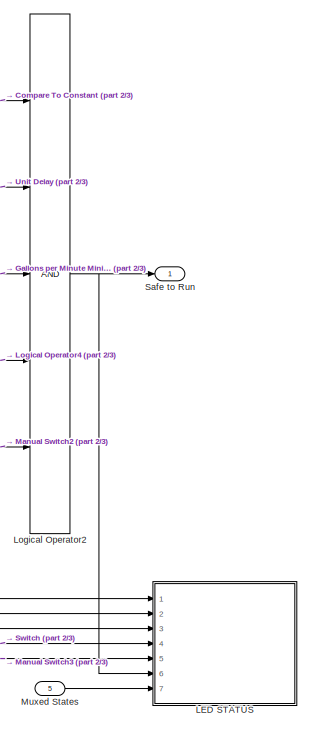
[diagram: Safety Subsystem FIELD INSTALLATION - part 1/3, right side, full height]
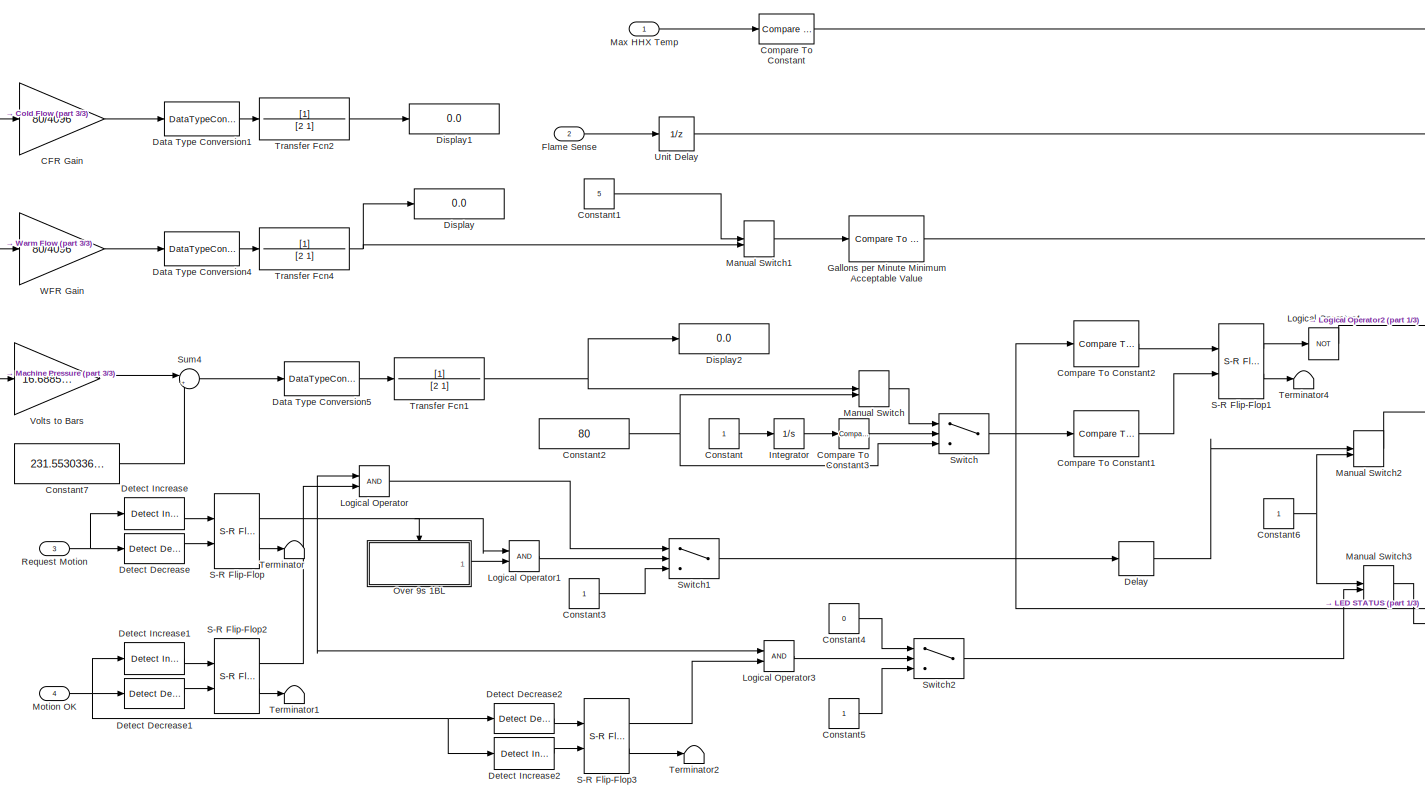
[diagram: Safety Subsystem FIELD INSTALLATION - part 2/3, center side, full height]
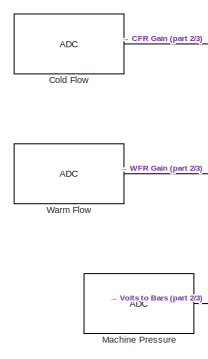
[diagram: Safety Subsystem FIELD INSTALLATION - part 3/3, middle left region]
BLOCK [SubSystem] Safety Subsystem FIELD INSTALLATION
  Ports = [5, 1]
  RequestExecContextInheritance = off
BLOCK [Gain] Safety Subsystem FIELD INSTALLATION/CFR Gain
  Gain = 80/4096
  OutDataTypeStr = Inherit: Inherit via internal rule
  ParamDataTypeStr = Inherit: Inherit via internal rule
  SaturateOnIntegerOverflow = off
BLOCK [Reference] Safety Subsystem FIELD INSTALLATION/Cold Flow  REF=c2802xlib/ADC
  Ports = [0, 1]
  SourceBlock = c2802xlib/ADC
  SourceProductBaseCode = TIC2000
  SourceType = C2802x/03x/05x/06x/M3x/37x/07x/004x ADC
  UserDataPersistent = on
BLOCK [Reference] Safety Subsystem FIELD INSTALLATION/Compare To Constant  REF=simulink/Logic and Bit
Operations/Compare
To Constant
  Ports = [1, 1]
  SourceBlock = simulink/Logic and Bit\nOperations/Compare\nTo Constant
  SourceProductBaseCode = SL
  SourceType = Compare To Constant
BLOCK [Reference] Safety Subsystem FIELD INSTALLATION/Compare To Constant1  REF=simulink/Logic and Bit
Operations/Compare
To Constant
  Ports = [1, 1]
  SourceBlock = simulink/Logic and Bit\nOperations/Compare\nTo Constant
  SourceProductBaseCode = SL
  SourceType = Compare To Constant
BLOCK [Reference] Safety Subsystem FIELD INSTALLATION/Compare To Constant2  REF=simulink/Logic and Bit
Operations/Compare
To Constant
  Ports = [1, 1]
  SourceBlock = simulink/Logic and Bit\nOperations/Compare\nTo Constant
  SourceProductBaseCode = SL
  SourceType = Compare To Constant
BLOCK [Reference] Safety Subsystem FIELD INSTALLATION/Compare To Constant3  REF=simulink/Logic and Bit
Operations/Compare
To Constant
  Ports = [1, 1]
  SourceBlock = simulink/Logic and Bit\nOperations/Compare\nTo Constant
  SourceProductBaseCode = SL
  SourceType = Compare To Constant
BLOCK [Constant] Safety Subsystem FIELD INSTALLATION/Constant
BLOCK [Constant] Safety Subsystem FIELD INSTALLATION/Constant1
  Value = 5
BLOCK [Constant] Safety Subsystem FIELD INSTALLATION/Constant2
  OutDataTypeStr = double
  Value = 80
BLOCK [Constant] Safety Subsystem FIELD INSTALLATION/Constant3
  OutDataTypeStr = boolean
BLOCK [Constant] Safety Subsystem FIELD INSTALLATION/Constant4
  OutDataTypeStr = boolean
  Value = 0
BLOCK [Constant] Safety Subsystem FIELD INSTALLATION/Constant5
  OutDataTypeStr = boolean
BLOCK [Constant] Safety Subsystem FIELD INSTALLATION/Constant6
  OutDataTypeStr = boolean
BLOCK [Constant] Safety Subsystem FIELD INSTALLATION/Constant7
  Value = 231.5530336134
BLOCK [DataTypeConversion] Safety Subsystem FIELD INSTALLATION/Data Type Conversion1
  OutDataTypeStr = double
  RndMeth = Floor
  SaturateOnIntegerOverflow = off
BLOCK [DataTypeConversion] Safety Subsystem FIELD INSTALLATION/Data Type Conversion4
  OutDataTypeStr = double
  RndMeth = Floor
  SaturateOnIntegerOverflow = off
BLOCK [DataTypeConversion] Safety Subsystem FIELD INSTALLATION/Data Type Conversion5
  OutDataTypeStr = double
  RndMeth = Floor
  SaturateOnIntegerOverflow = off
BLOCK [Delay] Safety Subsystem FIELD INSTALLATION/Delay
  DelayLength = 1
  InputPortMap = u0
  Ports = [1, 1]
BLOCK [Reference] Safety Subsystem FIELD INSTALLATION/Detect Decrease  REF=simulink/Logic and Bit
Operations/Detect
Decrease
  Ports = [1, 1]
  SourceBlock = simulink/Logic and Bit\nOperations/Detect\nDecrease
  SourceProductBaseCode = SL
  SourceType = Detect Decrease
BLOCK [Reference] Safety Subsystem FIELD INSTALLATION/Detect Decrease1  REF=simulink/Logic and Bit
Operations/Detect
Decrease
  Ports = [1, 1]
  SourceBlock = simulink/Logic and Bit\nOperations/Detect\nDecrease
  SourceProductBaseCode = SL
  SourceType = Detect Decrease
BLOCK [Reference] Safety Subsystem FIELD INSTALLATION/Detect Decrease2  REF=simulink/Logic and Bit
Operations/Detect
Decrease
  Ports = [1, 1]
  SourceBlock = simulink/Logic and Bit\nOperations/Detect\nDecrease
  SourceProductBaseCode = SL
  SourceType = Detect Decrease
BLOCK [Reference] Safety Subsystem FIELD INSTALLATION/Detect Increase  REF=simulink/Logic and Bit
Operations/Detect
Increase
  Ports = [1, 1]
  SourceBlock = simulink/Logic and Bit\nOperations/Detect\nIncrease
  SourceProductBaseCode = SL
  SourceType = Detect Increase
BLOCK [Reference] Safety Subsystem FIELD INSTALLATION/Detect Increase1  REF=simulink/Logic and Bit
Operations/Detect
Increase
  Ports = [1, 1]
  SourceBlock = simulink/Logic and Bit\nOperations/Detect\nIncrease
  SourceProductBaseCode = SL
  SourceType = Detect Increase
BLOCK [Reference] Safety Subsystem FIELD INSTALLATION/Detect Increase2  REF=simulink/Logic and Bit
Operations/Detect
Increase
  Ports = [1, 1]
  SourceBlock = simulink/Logic and Bit\nOperations/Detect\nIncrease
  SourceProductBaseCode = SL
  SourceType = Detect Increase
BLOCK [Display] Safety Subsystem FIELD INSTALLATION/Display
  Decimation = 1
  Ports = [1]
BLOCK [Display] Safety Subsystem FIELD INSTALLATION/Display1
  Decimation = 1
  Ports = [1]
BLOCK [Display] Safety Subsystem FIELD INSTALLATION/Display2
  Decimation = 1
  Ports = [1]
BLOCK [Inport] Safety Subsystem FIELD INSTALLATION/Flame Sense
  IconDisplay = Port number
  Port = 2
BLOCK [Reference] Safety Subsystem FIELD INSTALLATION/Gallons per Minute Minimum Acceptable Value  REF=simulink/Logic and Bit
Operations/Compare
To Constant
  Ports = [1, 1]
  SourceBlock = simulink/Logic and Bit\nOperations/Compare\nTo Constant
  SourceProductBaseCode = SL
  SourceType = Compare To Constant
BLOCK [Integrator] Safety Subsystem FIELD INSTALLATION/Integrator
  LimitOutput = on
  LowerSaturationLimit = 0
  Ports = [1, 1]
  UpperSaturationLimit = 6
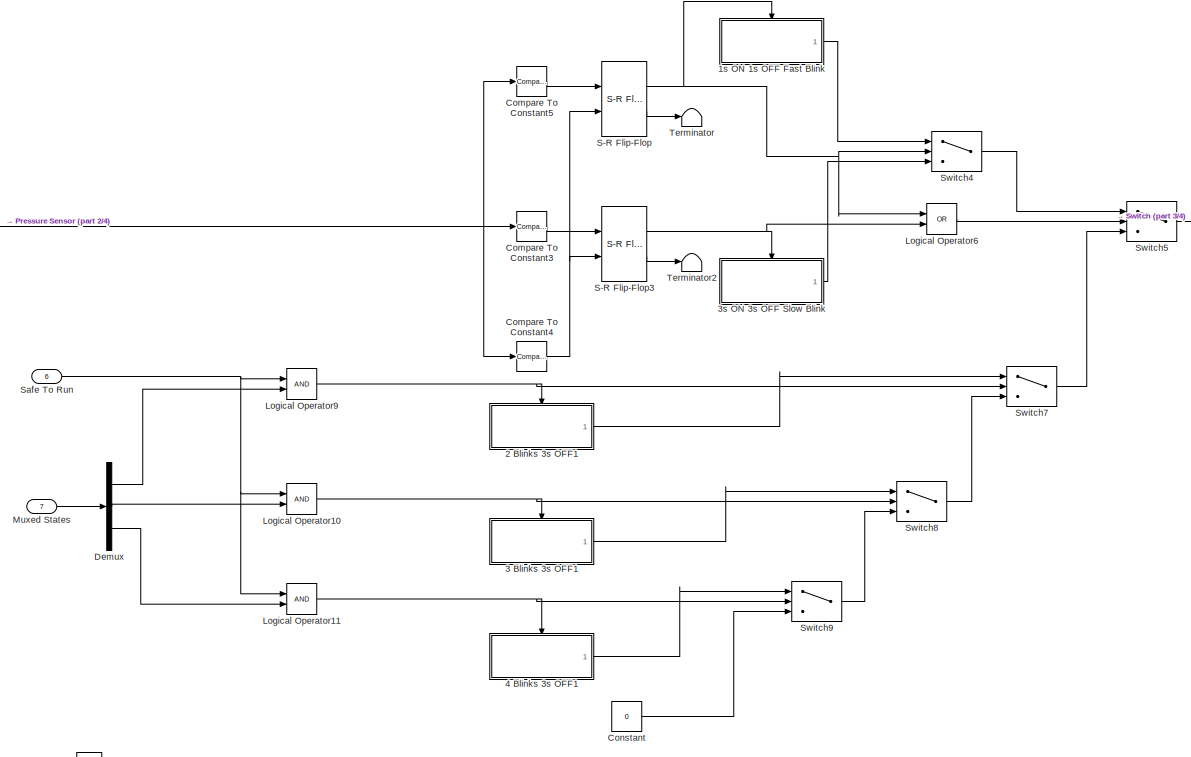
[diagram: Safety Subsystem FIELD INSTALLATION/LED STATUS - part 1/4, top center region]
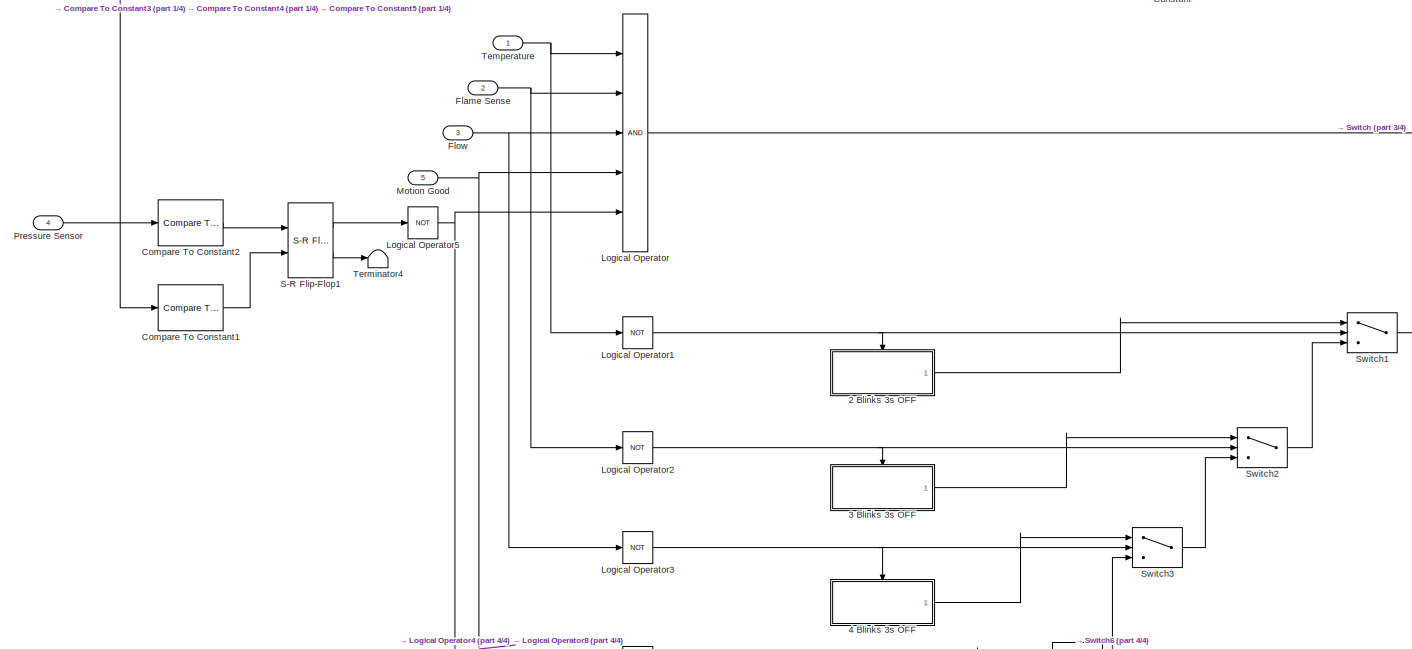
[diagram: Safety Subsystem FIELD INSTALLATION/LED STATUS - part 2/4, bottom left region]
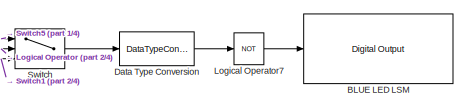
[diagram: Safety Subsystem FIELD INSTALLATION/LED STATUS - part 3/4, middle right region]
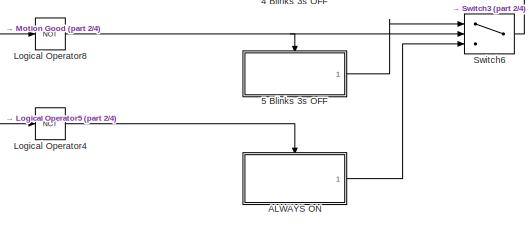
[diagram: Safety Subsystem FIELD INSTALLATION/LED STATUS - part 4/4, bottom center region]
BLOCK [SubSystem] Safety Subsystem FIELD INSTALLATION/LED STATUS
  Ports = [7]
  RequestExecContextInheritance = off
BLOCK [SubSystem] Safety Subsystem FIELD INSTALLATION/LED STATUS/1s ON 1s OFF Fast Blink
  Ports = [0, 1, 1]
  RequestExecContextInheritance = off
BLOCK [EnablePort] Safety Subsystem FIELD INSTALLATION/LED STATUS/1s ON 1s OFF Fast Blink/Enable
  Ports = []
  StatesWhenEnabling = reset
BLOCK [Outport] Safety Subsystem FIELD INSTALLATION/LED STATUS/1s ON 1s OFF Fast Blink/Out1
  IconDisplay = Port number
BLOCK [DiscretePulseGenerator] Safety Subsystem FIELD INSTALLATION/LED STATUS/1s ON 1s OFF Fast Blink/Pulse Generator
  Ports = [0, 1]
  PulseType = Time based
  PulseWidth = 50
BLOCK [Saturate] Safety Subsystem FIELD INSTALLATION/LED STATUS/1s ON 1s OFF Fast Blink/Saturation
  InputPortMap = u0
  LowerLimit = 0
  Ports = [1, 1]
  UpperLimit = 1
BLOCK [SubSystem] Safety Subsystem FIELD INSTALLATION/LED STATUS/2 Blinks 3s OFF
  Ports = [0, 1, 1]
  RequestExecContextInheritance = off
BLOCK [Reference] Safety Subsystem FIELD INSTALLATION/LED STATUS/2 Blinks 3s OFF/Compare To Constant  REF=simulink/Logic and Bit
Operations/Compare
To Constant
  Ports = [1, 1]
  SourceBlock = simulink/Logic and Bit\nOperations/Compare\nTo Constant
  SourceProductBaseCode = SL
  SourceType = Compare To Constant
BLOCK [Reference] Safety Subsystem FIELD INSTALLATION/LED STATUS/2 Blinks 3s OFF/Compare To Constant1  REF=simulink/Logic and Bit
Operations/Compare
To Constant
  Ports = [1, 1]
  SourceBlock = simulink/Logic and Bit\nOperations/Compare\nTo Constant
  SourceProductBaseCode = SL
  SourceType = Compare To Constant
BLOCK [Reference] Safety Subsystem FIELD INSTALLATION/LED STATUS/2 Blinks 3s OFF/Compare To Constant2  REF=simulink/Logic and Bit
Operations/Compare
To Constant
  Ports = [1, 1]
  SourceBlock = simulink/Logic and Bit\nOperations/Compare\nTo Constant
  SourceProductBaseCode = SL
  SourceType = Compare To Constant
BLOCK [Constant] Safety Subsystem FIELD INSTALLATION/LED STATUS/2 Blinks 3s OFF/Constant
BLOCK [Delay] Safety Subsystem FIELD INSTALLATION/LED STATUS/2 Blinks 3s OFF/Delay
  DelayLength = 1
  InputPortMap = u0
  Ports = [1, 1]
BLOCK [EnablePort] Safety Subsystem FIELD INSTALLATION/LED STATUS/2 Blinks 3s OFF/Enable
  Ports = []
  StatesWhenEnabling = reset
BLOCK [Integrator] Safety Subsystem FIELD INSTALLATION/LED STATUS/2 Blinks 3s OFF/Integrator
  ExternalReset = rising
  LimitOutput = on
  LowerSaturationLimit = 0
  Ports = [2, 1]
  UpperSaturationLimit = 3.6
BLOCK [Outport] Safety Subsystem FIELD INSTALLATION/LED STATUS/2 Blinks 3s OFF/Out1
  IconDisplay = Port number
BLOCK [Switch] Safety Subsystem FIELD INSTALLATION/LED STATUS/2 Blinks 3s OFF/Switch
  Criteria = u2 > Threshold
  InputSameDT = off
  SaturateOnIntegerOverflow = off
  Threshold = 0.5
BLOCK [SubSystem] Safety Subsystem FIELD INSTALLATION/LED STATUS/2 Blinks 3s OFF1
  Ports = [0, 1, 1]
  RequestExecContextInheritance = off
BLOCK [Reference] Safety Subsystem FIELD INSTALLATION/LED STATUS/2 Blinks 3s OFF1/Compare To Constant  REF=simulink/Logic and Bit
Operations/Compare
To Constant
  Ports = [1, 1]
  SourceBlock = simulink/Logic and Bit\nOperations/Compare\nTo Constant
  SourceProductBaseCode = SL
  SourceType = Compare To Constant
BLOCK [Reference] Safety Subsystem FIELD INSTALLATION/LED STATUS/2 Blinks 3s OFF1/Compare To Constant1  REF=simulink/Logic and Bit
Operations/Compare
To Constant
  Ports = [1, 1]
  SourceBlock = simulink/Logic and Bit\nOperations/Compare\nTo Constant
  SourceProductBaseCode = SL
  SourceType = Compare To Constant
BLOCK [Reference] Safety Subsystem FIELD INSTALLATION/LED STATUS/2 Blinks 3s OFF1/Compare To Constant2  REF=simulink/Logic and Bit
Operations/Compare
To Constant
  Ports = [1, 1]
  SourceBlock = simulink/Logic and Bit\nOperations/Compare\nTo Constant
  SourceProductBaseCode = SL
  SourceType = Compare To Constant
BLOCK [Constant] Safety Subsystem FIELD INSTALLATION/LED STATUS/2 Blinks 3s OFF1/Constant
BLOCK [Delay] Safety Subsystem FIELD INSTALLATION/LED STATUS/2 Blinks 3s OFF1/Delay
  DelayLength = 1
  InputPortMap = u0
  Ports = [1, 1]
BLOCK [EnablePort] Safety Subsystem FIELD INSTALLATION/LED STATUS/2 Blinks 3s OFF1/Enable
  Ports = []
  StatesWhenEnabling = reset
BLOCK [Integrator] Safety Subsystem FIELD INSTALLATION/LED STATUS/2 Blinks 3s OFF1/Integrator
  ExternalReset = rising
  LimitOutput = on
  LowerSaturationLimit = 0
  Ports = [2, 1]
  UpperSaturationLimit = 3.6
BLOCK [Outport] Safety Subsystem FIELD INSTALLATION/LED STATUS/2 Blinks 3s OFF1/Out1
  IconDisplay = Port number
BLOCK [Switch] Safety Subsystem FIELD INSTALLATION/LED STATUS/2 Blinks 3s OFF1/Switch
  Criteria = u2 > Threshold
  InputSameDT = off
  SaturateOnIntegerOverflow = off
  Threshold = 0.5
BLOCK [SubSystem] Safety Subsystem FIELD INSTALLATION/LED STATUS/3 Blinks 3s OFF
  Ports = [0, 1, 1]
  RequestExecContextInheritance = off
BLOCK [Reference] Safety Subsystem FIELD INSTALLATION/LED STATUS/3 Blinks 3s OFF/Compare To Constant4  REF=simulink/Logic and Bit
Operations/Compare
To Constant
  Ports = [1, 1]
  SourceBlock = simulink/Logic and Bit\nOperations/Compare\nTo Constant
  SourceProductBaseCode = SL
  SourceType = Compare To Constant
BLOCK [Reference] Safety Subsystem FIELD INSTALLATION/LED STATUS/3 Blinks 3s OFF/Compare To Constant5  REF=simulink/Logic and Bit
Operations/Compare
To Constant
  Ports = [1, 1]
  SourceBlock = simulink/Logic and Bit\nOperations/Compare\nTo Constant
  SourceProductBaseCode = SL
  SourceType = Compare To Constant
BLOCK [Reference] Safety Subsystem FIELD INSTALLATION/LED STATUS/3 Blinks 3s OFF/Compare To Constant6  REF=simulink/Logic and Bit
Operations/Compare
To Constant
  Ports = [1, 1]
  SourceBlock = simulink/Logic and Bit\nOperations/Compare\nTo Constant
  SourceProductBaseCode = SL
  SourceType = Compare To Constant
BLOCK [Reference] Safety Subsystem FIELD INSTALLATION/LED STATUS/3 Blinks 3s OFF/Compare To Constant7  REF=simulink/Logic and Bit
Operations/Compare
To Constant
  Ports = [1, 1]
  SourceBlock = simulink/Logic and Bit\nOperations/Compare\nTo Constant
  SourceProductBaseCode = SL
  SourceType = Compare To Constant
BLOCK [Constant] Safety Subsystem FIELD INSTALLATION/LED STATUS/3 Blinks 3s OFF/Constant2
BLOCK [Delay] Safety Subsystem FIELD INSTALLATION/LED STATUS/3 Blinks 3s OFF/Delay1
  DelayLength = 1
  InputPortMap = u0
  Ports = [1, 1]
BLOCK [EnablePort] Safety Subsystem FIELD INSTALLATION/LED STATUS/3 Blinks 3s OFF/Enable
  Ports = []
  StatesWhenEnabling = reset
BLOCK [Integrator] Safety Subsystem FIELD INSTALLATION/LED STATUS/3 Blinks 3s OFF/Integrator1
  ExternalReset = rising
  LimitOutput = on
  LowerSaturationLimit = 0
  Ports = [2, 1]
  UpperSaturationLimit = 4.1
BLOCK [Outport] Safety Subsystem FIELD INSTALLATION/LED STATUS/3 Blinks 3s OFF/Out1
  IconDisplay = Port number
BLOCK [Switch] Safety Subsystem FIELD INSTALLATION/LED STATUS/3 Blinks 3s OFF/Switch3
  Criteria = u2 > Threshold
  InputSameDT = off
  SaturateOnIntegerOverflow = off
  Threshold = 0.5
BLOCK [Switch] Safety Subsystem FIELD INSTALLATION/LED STATUS/3 Blinks 3s OFF/Switch4
  Criteria = u2 > Threshold
  InputSameDT = off
  SaturateOnIntegerOverflow = off
  Threshold = 1.1
BLOCK [SubSystem] Safety Subsystem FIELD INSTALLATION/LED STATUS/3 Blinks 3s OFF1
  Ports = [0, 1, 1]
  RequestExecContextInheritance = off
BLOCK [Reference] Safety Subsystem FIELD INSTALLATION/LED STATUS/3 Blinks 3s OFF1/Compare To Constant4  REF=simulink/Logic and Bit
Operations/Compare
To Constant
  Ports = [1, 1]
  SourceBlock = simulink/Logic and Bit\nOperations/Compare\nTo Constant
  SourceProductBaseCode = SL
  SourceType = Compare To Constant
BLOCK [Reference] Safety Subsystem FIELD INSTALLATION/LED STATUS/3 Blinks 3s OFF1/Compare To Constant5  REF=simulink/Logic and Bit
Operations/Compare
To Constant
  Ports = [1, 1]
  SourceBlock = simulink/Logic and Bit\nOperations/Compare\nTo Constant
  SourceProductBaseCode = SL
  SourceType = Compare To Constant
BLOCK [Reference] Safety Subsystem FIELD INSTALLATION/LED STATUS/3 Blinks 3s OFF1/Compare To Constant6  REF=simulink/Logic and Bit
Operations/Compare
To Constant
  Ports = [1, 1]
  SourceBlock = simulink/Logic and Bit\nOperations/Compare\nTo Constant
  SourceProductBaseCode = SL
  SourceType = Compare To Constant
BLOCK [Reference] Safety Subsystem FIELD INSTALLATION/LED STATUS/3 Blinks 3s OFF1/Compare To Constant7  REF=simulink/Logic and Bit
Operations/Compare
To Constant
  Ports = [1, 1]
  SourceBlock = simulink/Logic and Bit\nOperations/Compare\nTo Constant
  SourceProductBaseCode = SL
  SourceType = Compare To Constant
BLOCK [Constant] Safety Subsystem FIELD INSTALLATION/LED STATUS/3 Blinks 3s OFF1/Constant2
BLOCK [Delay] Safety Subsystem FIELD INSTALLATION/LED STATUS/3 Blinks 3s OFF1/Delay1
  DelayLength = 1
  InputPortMap = u0
  Ports = [1, 1]
BLOCK [EnablePort] Safety Subsystem FIELD INSTALLATION/LED STATUS/3 Blinks 3s OFF1/Enable
  Ports = []
  StatesWhenEnabling = reset
BLOCK [Integrator] Safety Subsystem FIELD INSTALLATION/LED STATUS/3 Blinks 3s OFF1/Integrator1
  ExternalReset = rising
  LimitOutput = on
  LowerSaturationLimit = 0
  Ports = [2, 1]
  UpperSaturationLimit = 4.1
BLOCK [Outport] Safety Subsystem FIELD INSTALLATION/LED STATUS/3 Blinks 3s OFF1/Out1
  IconDisplay = Port number
BLOCK [Switch] Safety Subsystem FIELD INSTALLATION/LED STATUS/3 Blinks 3s OFF1/Switch3
  Criteria = u2 > Threshold
  InputSameDT = off
  SaturateOnIntegerOverflow = off
  Threshold = 0.5
BLOCK [Switch] Safety Subsystem FIELD INSTALLATION/LED STATUS/3 Blinks 3s OFF1/Switch4
  Criteria = u2 > Threshold
  InputSameDT = off
  SaturateOnIntegerOverflow = off
  Threshold = 1.1
BLOCK [SubSystem] Safety Subsystem FIELD INSTALLATION/LED STATUS/3s ON 3s OFF Slow Blink
  Ports = [0, 1, 1]
  RequestExecContextInheritance = off
BLOCK [EnablePort] Safety Subsystem FIELD INSTALLATION/LED STATUS/3s ON 3s OFF Slow Blink/Enable
  Ports = []
  StatesWhenEnabling = reset
BLOCK [Outport] Safety Subsystem FIELD INSTALLATION/LED STATUS/3s ON 3s OFF Slow Blink/Out1
  IconDisplay = Port number
BLOCK [DiscretePulseGenerator] Safety Subsystem FIELD INSTALLATION/LED STATUS/3s ON 3s OFF Slow Blink/Pulse Generator
  Period = 6
  Ports = [0, 1]
  PulseType = Time based
  PulseWidth = 50
BLOCK [Saturate] Safety Subsystem FIELD INSTALLATION/LED STATUS/3s ON 3s OFF Slow Blink/Saturation
  InputPortMap = u0
  LowerLimit = 0
  Ports = [1, 1]
  UpperLimit = 1
BLOCK [SubSystem] Safety Subsystem FIELD INSTALLATION/LED STATUS/4 Blinks 3s OFF
  Ports = [0, 1, 1]
  RequestExecContextInheritance = off
BLOCK [Reference] Safety Subsystem FIELD INSTALLATION/LED STATUS/4 Blinks 3s OFF/Compare To Constant1  REF=simulink/Logic and Bit
Operations/Compare
To Constant
  Ports = [1, 1]
  SourceBlock = simulink/Logic and Bit\nOperations/Compare\nTo Constant
  SourceProductBaseCode = SL
  SourceType = Compare To Constant
BLOCK [Reference] Safety Subsystem FIELD INSTALLATION/LED STATUS/4 Blinks 3s OFF/Compare To Constant4  REF=simulink/Logic and Bit
Operations/Compare
To Constant
  Ports = [1, 1]
  SourceBlock = simulink/Logic and Bit\nOperations/Compare\nTo Constant
  SourceProductBaseCode = SL
  SourceType = Compare To Constant
BLOCK [Reference] Safety Subsystem FIELD INSTALLATION/LED STATUS/4 Blinks 3s OFF/Compare To Constant5  REF=simulink/Logic and Bit
Operations/Compare
To Constant
  Ports = [1, 1]
  SourceBlock = simulink/Logic and Bit\nOperations/Compare\nTo Constant
  SourceProductBaseCode = SL
  SourceType = Compare To Constant
BLOCK [Reference] Safety Subsystem FIELD INSTALLATION/LED STATUS/4 Blinks 3s OFF/Compare To Constant6  REF=simulink/Logic and Bit
Operations/Compare
To Constant
  Ports = [1, 1]
  SourceBlock = simulink/Logic and Bit\nOperations/Compare\nTo Constant
  SourceProductBaseCode = SL
  SourceType = Compare To Constant
BLOCK [Reference] Safety Subsystem FIELD INSTALLATION/LED STATUS/4 Blinks 3s OFF/Compare To Constant7  REF=simulink/Logic and Bit
Operations/Compare
To Constant
  Ports = [1, 1]
  SourceBlock = simulink/Logic and Bit\nOperations/Compare\nTo Constant
  SourceProductBaseCode = SL
  SourceType = Compare To Constant
BLOCK [Constant] Safety Subsystem FIELD INSTALLATION/LED STATUS/4 Blinks 3s OFF/Constant2
BLOCK [Delay] Safety Subsystem FIELD INSTALLATION/LED STATUS/4 Blinks 3s OFF/Delay1
  DelayLength = 1
  InputPortMap = u0
  Ports = [1, 1]
BLOCK [EnablePort] Safety Subsystem FIELD INSTALLATION/LED STATUS/4 Blinks 3s OFF/Enable
  Ports = []
  StatesWhenEnabling = reset
BLOCK [Integrator] Safety Subsystem FIELD INSTALLATION/LED STATUS/4 Blinks 3s OFF/Integrator1
  ExternalReset = rising
  LimitOutput = on
  LowerSaturationLimit = 0
  Ports = [2, 1]
  UpperSaturationLimit = 4.6
BLOCK [Outport] Safety Subsystem FIELD INSTALLATION/LED STATUS/4 Blinks 3s OFF/Out1
  IconDisplay = Port number
BLOCK [Switch] Safety Subsystem FIELD INSTALLATION/LED STATUS/4 Blinks 3s OFF/Switch1
  Criteria = u2 > Threshold
  InputSameDT = off
  SaturateOnIntegerOverflow = off
  Threshold = 1.8
BLOCK [Switch] Safety Subsystem FIELD INSTALLATION/LED STATUS/4 Blinks 3s OFF/Switch3
  Criteria = u2 > Threshold
  InputSameDT = off
  SaturateOnIntegerOverflow = off
  Threshold = 0.5
BLOCK [Switch] Safety Subsystem FIELD INSTALLATION/LED STATUS/4 Blinks 3s OFF/Switch4
  Criteria = u2 > Threshold
  InputSameDT = off
  SaturateOnIntegerOverflow = off
  Threshold = 1.1
BLOCK [SubSystem] Safety Subsystem FIELD INSTALLATION/LED STATUS/4 Blinks 3s OFF1
  Ports = [0, 1, 1]
  RequestExecContextInheritance = off
BLOCK [Reference] Safety Subsystem FIELD INSTALLATION/LED STATUS/4 Blinks 3s OFF1/Compare To Constant1  REF=simulink/Logic and Bit
Operations/Compare
To Constant
  Ports = [1, 1]
  SourceBlock = simulink/Logic and Bit\nOperations/Compare\nTo Constant
  SourceProductBaseCode = SL
  SourceType = Compare To Constant
BLOCK [Reference] Safety Subsystem FIELD INSTALLATION/LED STATUS/4 Blinks 3s OFF1/Compare To Constant4  REF=simulink/Logic and Bit
Operations/Compare
To Constant
  Ports = [1, 1]
  SourceBlock = simulink/Logic and Bit\nOperations/Compare\nTo Constant
  SourceProductBaseCode = SL
  SourceType = Compare To Constant
BLOCK [Reference] Safety Subsystem FIELD INSTALLATION/LED STATUS/4 Blinks 3s OFF1/Compare To Constant5  REF=simulink/Logic and Bit
Operations/Compare
To Constant
  Ports = [1, 1]
  SourceBlock = simulink/Logic and Bit\nOperations/Compare\nTo Constant
  SourceProductBaseCode = SL
  SourceType = Compare To Constant
BLOCK [Reference] Safety Subsystem FIELD INSTALLATION/LED STATUS/4 Blinks 3s OFF1/Compare To Constant6  REF=simulink/Logic and Bit
Operations/Compare
To Constant
  Ports = [1, 1]
  SourceBlock = simulink/Logic and Bit\nOperations/Compare\nTo Constant
  SourceProductBaseCode = SL
  SourceType = Compare To Constant
BLOCK [Reference] Safety Subsystem FIELD INSTALLATION/LED STATUS/4 Blinks 3s OFF1/Compare To Constant7  REF=simulink/Logic and Bit
Operations/Compare
To Constant
  Ports = [1, 1]
  SourceBlock = simulink/Logic and Bit\nOperations/Compare\nTo Constant
  SourceProductBaseCode = SL
  SourceType = Compare To Constant
BLOCK [Constant] Safety Subsystem FIELD INSTALLATION/LED STATUS/4 Blinks 3s OFF1/Constant2
BLOCK [Delay] Safety Subsystem FIELD INSTALLATION/LED STATUS/4 Blinks 3s OFF1/Delay1
  DelayLength = 1
  InputPortMap = u0
  Ports = [1, 1]
BLOCK [EnablePort] Safety Subsystem FIELD INSTALLATION/LED STATUS/4 Blinks 3s OFF1/Enable
  Ports = []
  StatesWhenEnabling = reset
BLOCK [Integrator] Safety Subsystem FIELD INSTALLATION/LED STATUS/4 Blinks 3s OFF1/Integrator1
  ExternalReset = rising
  LimitOutput = on
  LowerSaturationLimit = 0
  Ports = [2, 1]
  UpperSaturationLimit = 4.6
BLOCK [Outport] Safety Subsystem FIELD INSTALLATION/LED STATUS/4 Blinks 3s OFF1/Out1
  IconDisplay = Port number
BLOCK [Switch] Safety Subsystem FIELD INSTALLATION/LED STATUS/4 Blinks 3s OFF1/Switch1
  Criteria = u2 > Threshold
  InputSameDT = off
  SaturateOnIntegerOverflow = off
  Threshold = 1.8
BLOCK [Switch] Safety Subsystem FIELD INSTALLATION/LED STATUS/4 Blinks 3s OFF1/Switch3
  Criteria = u2 > Threshold
  InputSameDT = off
  SaturateOnIntegerOverflow = off
  Threshold = 0.5
BLOCK [Switch] Safety Subsystem FIELD INSTALLATION/LED STATUS/4 Blinks 3s OFF1/Switch4
  Criteria = u2 > Threshold
  InputSameDT = off
  SaturateOnIntegerOverflow = off
  Threshold = 1.1
BLOCK [SubSystem] Safety Subsystem FIELD INSTALLATION/LED STATUS/5 Blinks 3s OFF
  Ports = [0, 1, 1]
  RequestExecContextInheritance = off
BLOCK [Reference] Safety Subsystem FIELD INSTALLATION/LED STATUS/5 Blinks 3s OFF/Compare To Constant1  REF=simulink/Logic and Bit
Operations/Compare
To Constant
  Ports = [1, 1]
  SourceBlock = simulink/Logic and Bit\nOperations/Compare\nTo Constant
  SourceProductBaseCode = SL
  SourceType = Compare To Constant
BLOCK [Reference] Safety Subsystem FIELD INSTALLATION/LED STATUS/5 Blinks 3s OFF/Compare To Constant2  REF=simulink/Logic and Bit
Operations/Compare
To Constant
  Ports = [1, 1]
  SourceBlock = simulink/Logic and Bit\nOperations/Compare\nTo Constant
  SourceProductBaseCode = SL
  SourceType = Compare To Constant
BLOCK [Reference] Safety Subsystem FIELD INSTALLATION/LED STATUS/5 Blinks 3s OFF/Compare To Constant4  REF=simulink/Logic and Bit
Operations/Compare
To Constant
  Ports = [1, 1]
  SourceBlock = simulink/Logic and Bit\nOperations/Compare\nTo Constant
  SourceProductBaseCode = SL
  SourceType = Compare To Constant
BLOCK [Reference] Safety Subsystem FIELD INSTALLATION/LED STATUS/5 Blinks 3s OFF/Compare To Constant5  REF=simulink/Logic and Bit
Operations/Compare
To Constant
  Ports = [1, 1]
  SourceBlock = simulink/Logic and Bit\nOperations/Compare\nTo Constant
  SourceProductBaseCode = SL
  SourceType = Compare To Constant
BLOCK [Reference] Safety Subsystem FIELD INSTALLATION/LED STATUS/5 Blinks 3s OFF/Compare To Constant6  REF=simulink/Logic and Bit
Operations/Compare
To Constant
  Ports = [1, 1]
  SourceBlock = simulink/Logic and Bit\nOperations/Compare\nTo Constant
  SourceProductBaseCode = SL
  SourceType = Compare To Constant
BLOCK [Reference] Safety Subsystem FIELD INSTALLATION/LED STATUS/5 Blinks 3s OFF/Compare To Constant7  REF=simulink/Logic and Bit
Operations/Compare
To Constant
  Ports = [1, 1]
  SourceBlock = simulink/Logic and Bit\nOperations/Compare\nTo Constant
  SourceProductBaseCode = SL
  SourceType = Compare To Constant
BLOCK [Constant] Safety Subsystem FIELD INSTALLATION/LED STATUS/5 Blinks 3s OFF/Constant2
BLOCK [Delay] Safety Subsystem FIELD INSTALLATION/LED STATUS/5 Blinks 3s OFF/Delay1
  DelayLength = 1
  InputPortMap = u0
  Ports = [1, 1]
BLOCK [EnablePort] Safety Subsystem FIELD INSTALLATION/LED STATUS/5 Blinks 3s OFF/Enable
  Ports = []
  StatesWhenEnabling = reset
BLOCK [Integrator] Safety Subsystem FIELD INSTALLATION/LED STATUS/5 Blinks 3s OFF/Integrator1
  ExternalReset = rising
  LimitOutput = on
  LowerSaturationLimit = 0
  Ports = [2, 1]
  UpperSaturationLimit = 5.6
BLOCK [Outport] Safety Subsystem FIELD INSTALLATION/LED STATUS/5 Blinks 3s OFF/Out1
  IconDisplay = Port number
BLOCK [Switch] Safety Subsystem FIELD INSTALLATION/LED STATUS/5 Blinks 3s OFF/Switch1
  Criteria = u2 > Threshold
  InputSameDT = off
  SaturateOnIntegerOverflow = off
  Threshold = 1.8
BLOCK [Switch] Safety Subsystem FIELD INSTALLATION/LED STATUS/5 Blinks 3s OFF/Switch2
  Criteria = u2 > Threshold
  InputSameDT = off
  SaturateOnIntegerOverflow = off
  Threshold = 2.4
BLOCK [Switch] Safety Subsystem FIELD INSTALLATION/LED STATUS/5 Blinks 3s OFF/Switch3
  Criteria = u2 > Threshold
  InputSameDT = off
  SaturateOnIntegerOverflow = off
  Threshold = 0.5
BLOCK [Switch] Safety Subsystem FIELD INSTALLATION/LED STATUS/5 Blinks 3s OFF/Switch4
  Criteria = u2 > Threshold
  InputSameDT = off
  SaturateOnIntegerOverflow = off
  Threshold = 1.1
BLOCK [SubSystem] Safety Subsystem FIELD INSTALLATION/LED STATUS/ALWAYS ON
  Ports = [0, 1, 1]
  RequestExecContextInheritance = off
BLOCK [Constant] Safety Subsystem FIELD INSTALLATION/LED STATUS/ALWAYS ON/Constant1
  OutDataTypeStr = boolean
BLOCK [EnablePort] Safety Subsystem FIELD INSTALLATION/LED STATUS/ALWAYS ON/Enable
  Ports = []
  StatesWhenEnabling = reset
BLOCK [Outport] Safety Subsystem FIELD INSTALLATION/LED STATUS/ALWAYS ON/Out1
  IconDisplay = Port number
BLOCK [Reference] Safety Subsystem FIELD INSTALLATION/LED STATUS/BLUE LED LSM  REF=c2837xDlib/Digital Output
  Ports = [1]
  SourceBlock = c2837xDlib/Digital Output
  SourceProductBaseCode = TIC2000
  SourceType = F2837x GPIO Digital Output
  UserDataPersistent = on
BLOCK [Reference] Safety Subsystem FIELD INSTALLATION/LED STATUS/Compare To Constant1  REF=simulink/Logic and Bit
Operations/Compare
To Constant
  Ports = [1, 1]
  SourceBlock = simulink/Logic and Bit\nOperations/Compare\nTo Constant
  SourceProductBaseCode = SL
  SourceType = Compare To Constant
BLOCK [Reference] Safety Subsystem FIELD INSTALLATION/LED STATUS/Compare To Constant2  REF=simulink/Logic and Bit
Operations/Compare
To Constant
  Ports = [1, 1]
  SourceBlock = simulink/Logic and Bit\nOperations/Compare\nTo Constant
  SourceProductBaseCode = SL
  SourceType = Compare To Constant
BLOCK [Reference] Safety Subsystem FIELD INSTALLATION/LED STATUS/Compare To Constant3  REF=simulink/Logic and Bit
Operations/Compare
To Constant
  Ports = [1, 1]
  SourceBlock = simulink/Logic and Bit\nOperations/Compare\nTo Constant
  SourceProductBaseCode = SL
  SourceType = Compare To Constant
BLOCK [Reference] Safety Subsystem FIELD INSTALLATION/LED STATUS/Compare To Constant4  REF=simulink/Logic and Bit
Operations/Compare
To Constant
  Ports = [1, 1]
  SourceBlock = simulink/Logic and Bit\nOperations/Compare\nTo Constant
  SourceProductBaseCode = SL
  SourceType = Compare To Constant
BLOCK [Reference] Safety Subsystem FIELD INSTALLATION/LED STATUS/Compare To Constant5  REF=simulink/Logic and Bit
Operations/Compare
To Constant
  Ports = [1, 1]
  SourceBlock = simulink/Logic and Bit\nOperations/Compare\nTo Constant
  SourceProductBaseCode = SL
  SourceType = Compare To Constant
BLOCK [Constant] Safety Subsystem FIELD INSTALLATION/LED STATUS/Constant
  OutDataTypeStr = boolean
  Value = 0
BLOCK [DataTypeConversion] Safety Subsystem FIELD INSTALLATION/LED STATUS/Data Type Conversion
  OutDataTypeStr = boolean
  RndMeth = Floor
  SaturateOnIntegerOverflow = off
BLOCK [Demux] Safety Subsystem FIELD INSTALLATION/LED STATUS/Demux
  DisplayOption = bar
  Outputs = 3
  Ports = [1, 3]
BLOCK [Inport] Safety Subsystem FIELD INSTALLATION/LED STATUS/Flame Sense
  IconDisplay = Port number
  Port = 2
BLOCK [Inport] Safety Subsystem FIELD INSTALLATION/LED STATUS/Flow
  IconDisplay = Port number
  Port = 3
BLOCK [Logic] Safety Subsystem FIELD INSTALLATION/LED STATUS/Logical Operator
  AllPortsSameDT = off
  Inputs = 5
  OutDataTypeStr = boolean
  Ports = [5, 1]
BLOCK [Logic] Safety Subsystem FIELD INSTALLATION/LED STATUS/Logical Operator1
  AllPortsSameDT = off
  Operator = NOT
  OutDataTypeStr = boolean
  Ports = [1, 1]
BLOCK [Logic] Safety Subsystem FIELD INSTALLATION/LED STATUS/Logical Operator10
  AllPortsSameDT = off
  OutDataTypeStr = boolean
  Ports = [2, 1]
BLOCK [Logic] Safety Subsystem FIELD INSTALLATION/LED STATUS/Logical Operator11
  AllPortsSameDT = off
  OutDataTypeStr = boolean
  Ports = [2, 1]
BLOCK [Logic] Safety Subsystem FIELD INSTALLATION/LED STATUS/Logical Operator2
  AllPortsSameDT = off
  Operator = NOT
  OutDataTypeStr = boolean
  Ports = [1, 1]
BLOCK [Logic] Safety Subsystem FIELD INSTALLATION/LED STATUS/Logical Operator3
  AllPortsSameDT = off
  Operator = NOT
  OutDataTypeStr = boolean
  Ports = [1, 1]
BLOCK [Logic] Safety Subsystem FIELD INSTALLATION/LED STATUS/Logical Operator4
  AllPortsSameDT = off
  Operator = NOT
  OutDataTypeStr = boolean
  Ports = [1, 1]
BLOCK [Logic] Safety Subsystem FIELD INSTALLATION/LED STATUS/Logical Operator5
  AllPortsSameDT = off
  Operator = NOT
  OutDataTypeStr = boolean
  Ports = [1, 1]
BLOCK [Logic] Safety Subsystem FIELD INSTALLATION/LED STATUS/Logical Operator6
  AllPortsSameDT = off
  Operator = OR
  OutDataTypeStr = boolean
  Ports = [2, 1]
BLOCK [Logic] Safety Subsystem FIELD INSTALLATION/LED STATUS/Logical Operator7
  AllPortsSameDT = off
  Operator = NOT
  OutDataTypeStr = boolean
  Ports = [1, 1]
BLOCK [Logic] Safety Subsystem FIELD INSTALLATION/LED STATUS/Logical Operator8
  AllPortsSameDT = off
  Operator = NOT
  OutDataTypeStr = boolean
  Ports = [1, 1]
BLOCK [Logic] Safety Subsystem FIELD INSTALLATION/LED STATUS/Logical Operator9
  AllPortsSameDT = off
  OutDataTypeStr = boolean
  Ports = [2, 1]
BLOCK [Inport] Safety Subsystem FIELD INSTALLATION/LED STATUS/Motion Good
  IconDisplay = Port number
  Port = 5
BLOCK [Inport] Safety Subsystem FIELD INSTALLATION/LED STATUS/Muxed States
  IconDisplay = Port number
  Port = 7
BLOCK [Inport] Safety Subsystem FIELD INSTALLATION/LED STATUS/Pressure Sensor
  IconDisplay = Port number
  Port = 4
BLOCK [Reference] Safety Subsystem FIELD INSTALLATION/LED STATUS/S-R Flip-Flop  REF=simulink_extras/Flip Flops/S-R
Flip-Flop
  Ports = [2, 2]
  SourceBlock = simulink_extras/Flip Flops/S-R\nFlip-Flop
  SourceProductBaseCode = SL
  SourceType = SRFlipFlop
BLOCK [Reference] Safety Subsystem FIELD INSTALLATION/LED STATUS/S-R Flip-Flop1  REF=simulink_extras/Flip Flops/S-R
Flip-Flop
  Ports = [2, 2]
  SourceBlock = simulink_extras/Flip Flops/S-R\nFlip-Flop
  SourceProductBaseCode = SL
  SourceType = SRFlipFlop
BLOCK [Reference] Safety Subsystem FIELD INSTALLATION/LED STATUS/S-R Flip-Flop3  REF=simulink_extras/Flip Flops/S-R
Flip-Flop
  Ports = [2, 2]
  SourceBlock = simulink_extras/Flip Flops/S-R\nFlip-Flop
  SourceProductBaseCode = SL
  SourceType = SRFlipFlop
BLOCK [Inport] Safety Subsystem FIELD INSTALLATION/LED STATUS/Safe To Run
  IconDisplay = Port number
  Port = 6
BLOCK [Switch] Safety Subsystem FIELD INSTALLATION/LED STATUS/Switch
  Criteria = u2 > Threshold
  InputSameDT = off
  SaturateOnIntegerOverflow = off
  Threshold = 0.5
BLOCK [Switch] Safety Subsystem FIELD INSTALLATION/LED STATUS/Switch1
  Criteria = u2 > Threshold
  InputSameDT = off
  SaturateOnIntegerOverflow = off
  Threshold = 0.5
BLOCK [Switch] Safety Subsystem FIELD INSTALLATION/LED STATUS/Switch2
  Criteria = u2 > Threshold
  InputSameDT = off
  SaturateOnIntegerOverflow = off
  Threshold = 0.5
BLOCK [Switch] Safety Subsystem FIELD INSTALLATION/LED STATUS/Switch3
  Criteria = u2 > Threshold
  InputSameDT = off
  SaturateOnIntegerOverflow = off
  Threshold = 0.5
BLOCK [Switch] Safety Subsystem FIELD INSTALLATION/LED STATUS/Switch4
  Criteria = u2 > Threshold
  InputSameDT = off
  SaturateOnIntegerOverflow = off
  Threshold = 0.5
BLOCK [Switch] Safety Subsystem FIELD INSTALLATION/LED STATUS/Switch5
  Criteria = u2 > Threshold
  InputSameDT = off
  SaturateOnIntegerOverflow = off
  Threshold = 0.5
BLOCK [Switch] Safety Subsystem FIELD INSTALLATION/LED STATUS/Switch6
  Criteria = u2 > Threshold
  InputSameDT = off
  SaturateOnIntegerOverflow = off
  Threshold = 0.5
BLOCK [Switch] Safety Subsystem FIELD INSTALLATION/LED STATUS/Switch7
  Criteria = u2 > Threshold
  InputSameDT = off
  SaturateOnIntegerOverflow = off
  Threshold = 0.5
BLOCK [Switch] Safety Subsystem FIELD INSTALLATION/LED STATUS/Switch8
  Criteria = u2 > Threshold
  InputSameDT = off
  SaturateOnIntegerOverflow = off
  Threshold = 0.5
BLOCK [Switch] Safety Subsystem FIELD INSTALLATION/LED STATUS/Switch9
  Criteria = u2 > Threshold
  InputSameDT = off
  SaturateOnIntegerOverflow = off
  Threshold = 0.5
BLOCK [Inport] Safety Subsystem FIELD INSTALLATION/LED STATUS/Temperature
  IconDisplay = Port number
BLOCK [Terminator] Safety Subsystem FIELD INSTALLATION/LED STATUS/Terminator
BLOCK [Terminator] Safety Subsystem FIELD INSTALLATION/LED STATUS/Terminator2
BLOCK [Terminator] Safety Subsystem FIELD INSTALLATION/LED STATUS/Terminator4
BLOCK [Logic] Safety Subsystem FIELD INSTALLATION/Logical Operator
  AllPortsSameDT = off
  OutDataTypeStr = boolean
  Ports = [2, 1]
BLOCK [Logic] Safety Subsystem FIELD INSTALLATION/Logical Operator1
  AllPortsSameDT = off
  OutDataTypeStr = boolean
  Ports = [2, 1]
BLOCK [Logic] Safety Subsystem FIELD INSTALLATION/Logical Operator2
  AllPortsSameDT = off
  Inputs = 5
  OutDataTypeStr = boolean
  Ports = [5, 1]
BLOCK [Logic] Safety Subsystem FIELD INSTALLATION/Logical Operator3
  AllPortsSameDT = off
  OutDataTypeStr = boolean
  Ports = [2, 1]
BLOCK [Logic] Safety Subsystem FIELD INSTALLATION/Logical Operator4
  AllPortsSameDT = off
  Operator = NOT
  OutDataTypeStr = boolean
  Ports = [1, 1]
BLOCK [Reference] Safety Subsystem FIELD INSTALLATION/Machine Pressure  REF=c2802xlib/ADC
  Ports = [0, 1]
  SourceBlock = c2802xlib/ADC
  SourceProductBaseCode = TIC2000
  SourceType = C2802x/03x/05x/06x/M3x/37x/07x/004x ADC
  UserDataPersistent = on
BLOCK [ManualSwitch] Safety Subsystem FIELD INSTALLATION/Manual Switch
BLOCK [ManualSwitch] Safety Subsystem FIELD INSTALLATION/Manual Switch1
  CurrentSetting = 0
BLOCK [ManualSwitch] Safety Subsystem FIELD INSTALLATION/Manual Switch2
BLOCK [ManualSwitch] Safety Subsystem FIELD INSTALLATION/Manual Switch3
  CurrentSetting = 0
BLOCK [Inport] Safety Subsystem FIELD INSTALLATION/Max HHX Temp
  IconDisplay = Port number
BLOCK [Inport] Safety Subsystem FIELD INSTALLATION/Motion OK
  IconDisplay = Port number
  Port = 4
BLOCK [Inport] Safety Subsystem FIELD INSTALLATION/Muxed States
  IconDisplay = Port number
  Port = 5
BLOCK [SubSystem] Safety Subsystem FIELD INSTALLATION/Over 9s 1BL
  Ports = [0, 1, 1]
  RequestExecContextInheritance = off
BLOCK [Reference] Safety Subsystem FIELD INSTALLATION/Over 9s 1BL/Compare To Constant  REF=simulink/Logic and Bit
Operations/Compare
To Constant
  Ports = [1, 1]
  SourceBlock = simulink/Logic and Bit\nOperations/Compare\nTo Constant
  SourceProductBaseCode = SL
  SourceType = Compare To Constant
BLOCK [Constant] Safety Subsystem FIELD INSTALLATION/Over 9s 1BL/Constant
BLOCK [EnablePort] Safety Subsystem FIELD INSTALLATION/Over 9s 1BL/Enable
  Ports = []
  StatesWhenEnabling = reset
BLOCK [Integrator] Safety Subsystem FIELD INSTALLATION/Over 9s 1BL/Integrator
  LimitOutput = on
  LowerSaturationLimit = 0
  Ports = [1, 1]
  UpperSaturationLimit = 11
BLOCK [Outport] Safety Subsystem FIELD INSTALLATION/Over 9s 1BL/Out1
  IconDisplay = Port number
BLOCK [Inport] Safety Subsystem FIELD INSTALLATION/Request Motion
  IconDisplay = Port number
  Port = 3
BLOCK [Reference] Safety Subsystem FIELD INSTALLATION/S-R Flip-Flop  REF=simulink_extras/Flip Flops/S-R
Flip-Flop
  Ports = [2, 2]
  SourceBlock = simulink_extras/Flip Flops/S-R\nFlip-Flop
  SourceProductBaseCode = SL
  SourceType = SRFlipFlop
BLOCK [Reference] Safety Subsystem FIELD INSTALLATION/S-R Flip-Flop1  REF=simulink_extras/Flip Flops/S-R
Flip-Flop
  Ports = [2, 2]
  SourceBlock = simulink_extras/Flip Flops/S-R\nFlip-Flop
  SourceProductBaseCode = SL
  SourceType = SRFlipFlop
BLOCK [Reference] Safety Subsystem FIELD INSTALLATION/S-R Flip-Flop2  REF=simulink_extras/Flip Flops/S-R
Flip-Flop
  Ports = [2, 2]
  SourceBlock = simulink_extras/Flip Flops/S-R\nFlip-Flop
  SourceProductBaseCode = SL
  SourceType = SRFlipFlop
BLOCK [Reference] Safety Subsystem FIELD INSTALLATION/S-R Flip-Flop3  REF=simulink_extras/Flip Flops/S-R
Flip-Flop
  Ports = [2, 2]
  SourceBlock = simulink_extras/Flip Flops/S-R\nFlip-Flop
  SourceProductBaseCode = SL
  SourceType = SRFlipFlop
BLOCK [Outport] Safety Subsystem FIELD INSTALLATION/Safe to Run
  IconDisplay = Port number
BLOCK [Sum] Safety Subsystem FIELD INSTALLATION/Sum4
  IconShape = round
  InputSameDT = off
  Inputs = |++
  OutDataTypeStr = Inherit: Inherit via internal rule
  Ports = [2, 1]
  SaturateOnIntegerOverflow = off
BLOCK [Switch] Safety Subsystem FIELD INSTALLATION/Switch
  Criteria = u2 > Threshold
  InputSameDT = off
  SaturateOnIntegerOverflow = off
  Threshold = 0.5
BLOCK [Switch] Safety Subsystem FIELD INSTALLATION/Switch1
  Criteria = u2 > Threshold
  InputSameDT = off
  SaturateOnIntegerOverflow = off
  Threshold = 0.5
BLOCK [Switch] Safety Subsystem FIELD INSTALLATION/Switch2
  Criteria = u2 > Threshold
  InputSameDT = off
  SaturateOnIntegerOverflow = off
  Threshold = 0.5
BLOCK [Terminator] Safety Subsystem FIELD INSTALLATION/Terminator
BLOCK [Terminator] Safety Subsystem FIELD INSTALLATION/Terminator1
BLOCK [Terminator] Safety Subsystem FIELD INSTALLATION/Terminator2
BLOCK [Terminator] Safety Subsystem FIELD INSTALLATION/Terminator4
BLOCK [TransferFcn] Safety Subsystem FIELD INSTALLATION/Transfer Fcn1
  Denominator = [2 1]
BLOCK [TransferFcn] Safety Subsystem FIELD INSTALLATION/Transfer Fcn2
  Denominator = [2 1]
BLOCK [TransferFcn] Safety Subsystem FIELD INSTALLATION/Transfer Fcn4
  Denominator = [2 1]
BLOCK [UnitDelay] Safety Subsystem FIELD INSTALLATION/Unit Delay
  HasFrameUpgradeWarning = on
  SampleTime = -1
BLOCK [Gain] Safety Subsystem FIELD INSTALLATION/Volts to Bars
  Gain = 16.6885663866
  OutDataTypeStr = Inherit: Inherit via internal rule
  ParamDataTypeStr = Inherit: Inherit via internal rule
  SaturateOnIntegerOverflow = off
BLOCK [Gain] Safety Subsystem FIELD INSTALLATION/WFR Gain
  Gain = 80/4096
  OutDataTypeStr = Inherit: Inherit via internal rule
  ParamDataTypeStr = Inherit: Inherit via internal rule
  SaturateOnIntegerOverflow = off
BLOCK [Reference] Safety Subsystem FIELD INSTALLATION/Warm Flow  REF=c2802xlib/ADC
  Ports = [0, 1]
  SourceBlock = c2802xlib/ADC
  SourceProductBaseCode = TIC2000
  SourceType = C2802x/03x/05x/06x/M3x/37x/07x/004x ADC
  UserDataPersistent = on
BLOCK [SubSystem] Subsystem
  Ports = [0, 1, 1]
  RequestExecContextInheritance = off
BLOCK [Reference] Subsystem/Compare To Constant  REF=simulink/Logic and Bit
Operations/Compare
To Constant
  Ports = [1, 1]
  SourceBlock = simulink/Logic and Bit\nOperations/Compare\nTo Constant
  SourceProductBaseCode = SL
  SourceType = Compare To Constant
BLOCK [Reference] Subsystem/Compare To Constant1  REF=simulink/Logic and Bit
Operations/Compare
To Constant
  Ports = [1, 1]
  SourceBlock = simulink/Logic and Bit\nOperations/Compare\nTo Constant
  SourceProductBaseCode = SL
  SourceType = Compare To Constant
BLOCK [Constant] Subsystem/Constant
BLOCK [Delay] Subsystem/Delay
  DelayLength = 1
  InputPortMap = u0
  Ports = [1, 1]
BLOCK [EnablePort] Subsystem/Enable
  Ports = []
  StatesWhenEnabling = reset
BLOCK [Integrator] Subsystem/Integrator
  ExternalReset = rising
  LimitOutput = on
  LowerSaturationLimit = 0
  Ports = [2, 1]
  UpperSaturationLimit = 3601
BLOCK [Outport] Subsystem/Out1
  IconDisplay = Port number
BLOCK [Switch] Switch
  Criteria = u2 > Threshold
  InputSameDT = off
  SaturateOnIntegerOverflow = off
  Threshold = 0.5
BLOCK [Switch] Switch1
  Criteria = u2 > Threshold
  InputSameDT = off
  SaturateOnIntegerOverflow = off
  Threshold = 0.5
BLOCK [Switch] Switch2
  Criteria = u2 > Threshold
  InputSameDT = off
  SaturateOnIntegerOverflow = off
  Threshold = 0.5
BLOCK [Switch] Switch3
  Criteria = u2 > Threshold
  InputSameDT = off
  SaturateOnIntegerOverflow = off
  Threshold = 0.5
BLOCK [SubSystem] System Initialize
  CopyFcn = cccopyfcn(gcb)
  OpenFcn = ccopenfcn('System Initialize Function')
  Ports = []
  RequestExecContextInheritance = off
BLOCK [SubSystem] TC Decision Making
  Ports = [1, 3]
  RequestExecContextInheritance = off
BLOCK [Reference] TC Decision Making/Compare To Constant  REF=simulink/Logic and Bit
Operations/Compare
To Constant
  Ports = [1, 1]
  SourceBlock = simulink/Logic and Bit\nOperations/Compare\nTo Constant
  SourceProductBaseCode = SL
  SourceType = Compare To Constant
BLOCK [Reference] TC Decision Making/Compare To Constant1  REF=simulink/Logic and Bit
Operations/Compare
To Constant
  Ports = [1, 1]
  SourceBlock = simulink/Logic and Bit\nOperations/Compare\nTo Constant
  SourceProductBaseCode = SL
  SourceType = Compare To Constant
BLOCK [Reference] TC Decision Making/Compare To Constant2  REF=simulink/Logic and Bit
Operations/Compare
To Constant
  Ports = [1, 1]
  SourceBlock = simulink/Logic and Bit\nOperations/Compare\nTo Constant
  SourceProductBaseCode = SL
  SourceType = Compare To Constant
BLOCK [Reference] TC Decision Making/Compare To Constant3  REF=simulink/Logic and Bit
Operations/Compare
To Constant
  Ports = [1, 1]
  SourceBlock = simulink/Logic and Bit\nOperations/Compare\nTo Constant
  SourceProductBaseCode = SL
  SourceType = Compare To Constant
BLOCK [Constant] TC Decision Making/Constant
  Value = 35
BLOCK [Demux] TC Decision Making/Demux
  DisplayOption = bar
  Outputs = 8
  Ports = [1, 8]
BLOCK [Display] TC Decision Making/Display
  Decimation = 1
  Ports = [1]
BLOCK [Display] TC Decision Making/Display1
  Decimation = 1
  Ports = [1]
BLOCK [Display] TC Decision Making/Display2
  Decimation = 1
  Ports = [1]
BLOCK [Display] TC Decision Making/Display3
  Decimation = 1
  Ports = [1]
BLOCK [Constant] TC Decision Making/Error Value
  Value = -200
BLOCK [Inport] TC Decision Making/In1
  IconDisplay = Port number
BLOCK [ManualSwitch] TC Decision Making/Manual Switch
  CurrentSetting = 0
BLOCK [ManualSwitch] TC Decision Making/Manual Switch1
  CurrentSetting = 0
BLOCK [Outport] TC Decision Making/Max HHX Temp
  IconDisplay = Port number
BLOCK [Constant] TC Decision Making/Output NOT SAFE to RUN Temp
  Value = 2500
BLOCK [Switch] TC Decision Making/Switch
  Criteria = u2 > Threshold
  InputSameDT = off
  SaturateOnIntegerOverflow = off
  Threshold = 0.5
BLOCK [Switch] TC Decision Making/Switch1
  Criteria = u2 > Threshold
  InputSameDT = off
  SaturateOnIntegerOverflow = off
  Threshold = 0.5
BLOCK [Switch] TC Decision Making/Switch2
  Criteria = u2 > Threshold
  InputSameDT = off
  SaturateOnIntegerOverflow = off
  Threshold = 0.5
BLOCK [Switch] TC Decision Making/Switch3
  Criteria = u2 > Threshold
  InputSameDT = off
  SaturateOnIntegerOverflow = off
  Threshold = 0.5
BLOCK [SubSystem] TC Decision Making/TC Set 1
  Ports = [2, 1]
  RequestExecContextInheritance = off
BLOCK [Abs] TC Decision Making/TC Set 1/Abs
  SaturateOnIntegerOverflow = off
BLOCK [Reference] TC Decision Making/TC Set 1/Compare To Constant  REF=simulink/Logic and Bit
Operations/Compare
To Constant
  Ports = [1, 1]
  SourceBlock = simulink/Logic and Bit\nOperations/Compare\nTo Constant
  SourceProductBaseCode = SL
  SourceType = Compare To Constant
BLOCK [Reference] TC Decision Making/TC Set 1/Compare To Constant1  REF=simulink/Logic and Bit
Operations/Compare
To Constant
  Ports = [1, 1]
  SourceBlock = simulink/Logic and Bit\nOperations/Compare\nTo Constant
  SourceProductBaseCode = SL
  SourceType = Compare To Constant
BLOCK [Reference] TC Decision Making/TC Set 1/Compare To Constant2  REF=simulink/Logic and Bit
Operations/Compare
To Constant
  Ports = [1, 1]
  SourceBlock = simulink/Logic and Bit\nOperations/Compare\nTo Constant
  SourceProductBaseCode = SL
  SourceType = Compare To Constant
BLOCK [Constant] TC Decision Making/TC Set 1/Error Reading
  Value = -10
BLOCK [Outport] TC Decision Making/TC Set 1/High or neg10C Set 1
  IconDisplay = Port number
BLOCK [Inport] TC Decision Making/TC Set 1/In1
  IconDisplay = Port number
BLOCK [Inport] TC Decision Making/TC Set 1/In2
  IconDisplay = Port number
  Port = 2
BLOCK [Logic] TC Decision Making/TC Set 1/Logical Operator
  AllPortsSameDT = off
  OutDataTypeStr = boolean
  Ports = [2, 1]
BLOCK [Constant] TC Decision Making/TC Set 1/Priority Set 1 Offset to HiLimit
  Value = 40
BLOCK [RelationalOperator] TC Decision Making/TC Set 1/Relational Operator
  InputSameDT = off
  OutDataTypeStr = boolean
  Ports = [2, 1]
  RndMeth = Simplest
BLOCK [Sum] TC Decision Making/TC Set 1/Sum
  InputSameDT = off
  Inputs = +-
  OutDataTypeStr = Inherit: Inherit via internal rule
  Ports = [2, 1]
  SaturateOnIntegerOverflow = off
BLOCK [Sum] TC Decision Making/TC Set 1/Sum2
  IconShape = round
  InputSameDT = off
  Inputs = |++
  OutDataTypeStr = Inherit: Inherit via internal rule
  Ports = [2, 1]
  SaturateOnIntegerOverflow = off
BLOCK [Switch] TC Decision Making/TC Set 1/Switch
  Criteria = u2 > Threshold
  InputSameDT = off
  SaturateOnIntegerOverflow = off
  Threshold = 0.5
BLOCK [Switch] TC Decision Making/TC Set 1/Switch1
  Criteria = u2 > Threshold
  InputSameDT = off
  SaturateOnIntegerOverflow = off
  Threshold = 0.5
BLOCK [Switch] TC Decision Making/TC Set 1/Switch2
  Criteria = u2 > Threshold
  InputSameDT = off
  SaturateOnIntegerOverflow = off
  Threshold = 0.5
BLOCK [SubSystem] TC Decision Making/TC Set 2
  Ports = [2, 1]
  RequestExecContextInheritance = off
BLOCK [Abs] TC Decision Making/TC Set 2/Abs
  SaturateOnIntegerOverflow = off
BLOCK [Reference] TC Decision Making/TC Set 2/Compare To Constant  REF=simulink/Logic and Bit
Operations/Compare
To Constant
  Ports = [1, 1]
  SourceBlock = simulink/Logic and Bit\nOperations/Compare\nTo Constant
  SourceProductBaseCode = SL
  SourceType = Compare To Constant
BLOCK [Reference] TC Decision Making/TC Set 2/Compare To Constant1  REF=simulink/Logic and Bit
Operations/Compare
To Constant
  Ports = [1, 1]
  SourceBlock = simulink/Logic and Bit\nOperations/Compare\nTo Constant
  SourceProductBaseCode = SL
  SourceType = Compare To Constant
BLOCK [Reference] TC Decision Making/TC Set 2/Compare To Constant2  REF=simulink/Logic and Bit
Operations/Compare
To Constant
  Ports = [1, 1]
  SourceBlock = simulink/Logic and Bit\nOperations/Compare\nTo Constant
  SourceProductBaseCode = SL
  SourceType = Compare To Constant
BLOCK [Constant] TC Decision Making/TC Set 2/Error Reading
  Value = -10
BLOCK [Outport] TC Decision Making/TC Set 2/High or neg10C Set 2
  IconDisplay = Port number
BLOCK [Inport] TC Decision Making/TC Set 2/In1
  IconDisplay = Port number
BLOCK [Inport] TC Decision Making/TC Set 2/In2
  IconDisplay = Port number
  Port = 2
BLOCK [Logic] TC Decision Making/TC Set 2/Logical Operator
  AllPortsSameDT = off
  OutDataTypeStr = boolean
  Ports = [2, 1]
BLOCK [Constant] TC Decision Making/TC Set 2/Priority Set 2 Offset to HiLimit
  Value = 10
BLOCK [RelationalOperator] TC Decision Making/TC Set 2/Relational Operator
  InputSameDT = off
  OutDataTypeStr = boolean
  Ports = [2, 1]
  RndMeth = Simplest
BLOCK [Sum] TC Decision Making/TC Set 2/Sum
  InputSameDT = off
  Inputs = +-
  OutDataTypeStr = Inherit: Inherit via internal rule
  Ports = [2, 1]
  SaturateOnIntegerOverflow = off
BLOCK [Sum] TC Decision Making/TC Set 2/Sum2
  IconShape = round
  InputSameDT = off
  Inputs = |++
  OutDataTypeStr = Inherit: Inherit via internal rule
  Ports = [2, 1]
  SaturateOnIntegerOverflow = off
BLOCK [Switch] TC Decision Making/TC Set 2/Switch
  Criteria = u2 > Threshold
  InputSameDT = off
  SaturateOnIntegerOverflow = off
  Threshold = 0.5
BLOCK [Switch] TC Decision Making/TC Set 2/Switch1
  Criteria = u2 > Threshold
  InputSameDT = off
  SaturateOnIntegerOverflow = off
  Threshold = 0.5
BLOCK [Switch] TC Decision Making/TC Set 2/Switch2
  Criteria = u2 > Threshold
  InputSameDT = off
  SaturateOnIntegerOverflow = off
  Threshold = 0.5
BLOCK [SubSystem] TC Decision Making/TC Set 3
  Ports = [2, 1]
  RequestExecContextInheritance = off
BLOCK [Abs] TC Decision Making/TC Set 3/Abs
  SaturateOnIntegerOverflow = off
BLOCK [Reference] TC Decision Making/TC Set 3/Compare To Constant  REF=simulink/Logic and Bit
Operations/Compare
To Constant
  Ports = [1, 1]
  SourceBlock = simulink/Logic and Bit\nOperations/Compare\nTo Constant
  SourceProductBaseCode = SL
  SourceType = Compare To Constant
BLOCK [Reference] TC Decision Making/TC Set 3/Compare To Constant1  REF=simulink/Logic and Bit
Operations/Compare
To Constant
  Ports = [1, 1]
  SourceBlock = simulink/Logic and Bit\nOperations/Compare\nTo Constant
  SourceProductBaseCode = SL
  SourceType = Compare To Constant
BLOCK [Reference] TC Decision Making/TC Set 3/Compare To Constant2  REF=simulink/Logic and Bit
Operations/Compare
To Constant
  Ports = [1, 1]
  SourceBlock = simulink/Logic and Bit\nOperations/Compare\nTo Constant
  SourceProductBaseCode = SL
  SourceType = Compare To Constant
BLOCK [Constant] TC Decision Making/TC Set 3/Error Reading
  Value = -10
BLOCK [Outport] TC Decision Making/TC Set 3/High or neg10C Set 3
  IconDisplay = Port number
BLOCK [Inport] TC Decision Making/TC Set 3/In1
  IconDisplay = Port number
BLOCK [Inport] TC Decision Making/TC Set 3/In2
  IconDisplay = Port number
  Port = 2
BLOCK [Logic] TC Decision Making/TC Set 3/Logical Operator
  AllPortsSameDT = off
  OutDataTypeStr = boolean
  Ports = [2, 1]
BLOCK [Constant] TC Decision Making/TC Set 3/Priority Set 3 Offset to HiLimit
  Value = -10
BLOCK [RelationalOperator] TC Decision Making/TC Set 3/Relational Operator
  InputSameDT = off
  OutDataTypeStr = boolean
  Ports = [2, 1]
  RndMeth = Simplest
BLOCK [Sum] TC Decision Making/TC Set 3/Sum
  InputSameDT = off
  Inputs = +-
  OutDataTypeStr = Inherit: Inherit via internal rule
  Ports = [2, 1]
  SaturateOnIntegerOverflow = off
BLOCK [Sum] TC Decision Making/TC Set 3/Sum2
  IconShape = round
  InputSameDT = off
  Inputs = |++
  OutDataTypeStr = Inherit: Inherit via internal rule
  Ports = [2, 1]
  SaturateOnIntegerOverflow = off
BLOCK [Switch] TC Decision Making/TC Set 3/Switch
  Criteria = u2 > Threshold
  InputSameDT = off
  SaturateOnIntegerOverflow = off
  Threshold = 0.5
BLOCK [Switch] TC Decision Making/TC Set 3/Switch1
  Criteria = u2 > Threshold
  InputSameDT = off
  SaturateOnIntegerOverflow = off
  Threshold = 0.5
BLOCK [Switch] TC Decision Making/TC Set 3/Switch2
  Criteria = u2 > Threshold
  InputSameDT = off
  SaturateOnIntegerOverflow = off
  Threshold = 0.5
BLOCK [Outport] TC Decision Making/WHX In
  IconDisplay = Port number
  Port = 3
BLOCK [Outport] TC Decision Making/WHX Out
  IconDisplay = Port number
  Port = 2
BLOCK [Terminator] Terminator1
BLOCK [Terminator] Terminator2
BLOCK [SubSystem] Thermocouples In
  Ports = [0, 1]
  RequestExecContextInheritance = off
BLOCK [Outport] Thermocouples In/8x TC Mux
  IconDisplay = Port number
BLOCK [Constant] Thermocouples In/Constant1
  Value = 27.954
BLOCK [Constant] Thermocouples In/Constant2
  Value = 27.954
BLOCK [Constant] Thermocouples In/Constant3
  Value = 27.954
BLOCK [Constant] Thermocouples In/Constant4
  Value = 27.954
BLOCK [Constant] Thermocouples In/Constant5
  Value = 27.954
BLOCK [Constant] Thermocouples In/Constant8
  Value = 27.954
BLOCK [Display] Thermocouples In/Display
  Decimation = 1
  Ports = [1]
BLOCK [Display] Thermocouples In/Display1
  Decimation = 1
  Ports = [1]
BLOCK [Display] Thermocouples In/Display2
  Decimation = 1
  Ports = [1]
BLOCK [Display] Thermocouples In/Display3
  Decimation = 1
  Ports = [1]
BLOCK [Display] Thermocouples In/Display4
  Decimation = 1
  Ports = [1]
BLOCK [Display] Thermocouples In/Display5
  Decimation = 1
  Ports = [1]
BLOCK [Gain] Thermocouples In/Gain1
  Gain = 0.1321
  OutDataTypeStr = Inherit: Inherit via internal rule
  ParamDataTypeStr = Inherit: Inherit via internal rule
  SaturateOnIntegerOverflow = off
BLOCK [Gain] Thermocouples In/Gain2
  Gain = 0.1321
  OutDataTypeStr = Inherit: Inherit via internal rule
  ParamDataTypeStr = Inherit: Inherit via internal rule
  SaturateOnIntegerOverflow = off
BLOCK [Gain] Thermocouples In/Gain3
  Gain = 0.1321
  OutDataTypeStr = Inherit: Inherit via internal rule
  ParamDataTypeStr = Inherit: Inherit via internal rule
  SaturateOnIntegerOverflow = off
BLOCK [Gain] Thermocouples In/Gain4
  Gain = 0.1321
  OutDataTypeStr = Inherit: Inherit via internal rule
  ParamDataTypeStr = Inherit: Inherit via internal rule
  SaturateOnIntegerOverflow = off
BLOCK [Gain] Thermocouples In/Gain5
  Gain = 0.1321
  OutDataTypeStr = Inherit: Inherit via internal rule
  ParamDataTypeStr = Inherit: Inherit via internal rule
  SaturateOnIntegerOverflow = off
BLOCK [Gain] Thermocouples In/Gain8
  Gain = 0.1321
  OutDataTypeStr = Inherit: Inherit via internal rule
  ParamDataTypeStr = Inherit: Inherit via internal rule
  SaturateOnIntegerOverflow = off
BLOCK [Mux] Thermocouples In/Mux1
  DisplayOption = bar
  Inputs = 8
  Ports = [8, 1]
BLOCK [Display] Thermocouples In/RTD1
  Decimation = 1
  Ports = [1]
BLOCK [Display] Thermocouples In/RTD2
  Decimation = 1
  Ports = [1]
BLOCK [SubSystem] Thermocouples In/Read RTDs
  Ports = [0, 2]
  RequestExecContextInheritance = off
BLOCK [SubSystem] Thermocouples In/Read RTDs/Config Registry
  Ports = []
  RequestExecContextInheritance = off
BLOCK [Reference] Thermocouples In/Read RTDs/Config Registry/SPI Master Transfer2  REF=c280xlib/SPI Master Transfer
  Ports = [1, 1]
  SourceBlock = c280xlib/SPI Master Transfer
  SourceProductName = Embedded Coder Support Package for Texas Instruments C2000 Processors
  SourceType = codertarget.tic2000.blocks.SPIMasterTransfer
BLOCK [Terminator] Thermocouples In/Read RTDs/Config Registry/Terminator1
BLOCK [Constant] Thermocouples In/Read RTDs/Config Registry/Value to Write
  OutDataTypeStr = uint16
  SampleTime = -1
  Value = 208
BLOCK [SubSystem] Thermocouples In/Read RTDs/Config Registry1
  Ports = []
  RequestExecContextInheritance = off
BLOCK [Reference] Thermocouples In/Read RTDs/Config Registry1/SPI Master Transfer2  REF=c280xlib/SPI Master Transfer
  Ports = [1, 1]
  SourceBlock = c280xlib/SPI Master Transfer
  SourceProductName = Embedded Coder Support Package for Texas Instruments C2000 Processors
  SourceType = codertarget.tic2000.blocks.SPIMasterTransfer
BLOCK [Terminator] Thermocouples In/Read RTDs/Config Registry1/Terminator1
BLOCK [Constant] Thermocouples In/Read RTDs/Config Registry1/Value to Write
  OutDataTypeStr = uint16
  SampleTime = -1
  Value = 208
BLOCK [Constant] Thermocouples In/Read RTDs/Constant1
  Value = 32
BLOCK [Constant] Thermocouples In/Read RTDs/Constant2
  Value = 256
BLOCK [Constant] Thermocouples In/Read RTDs/Constant3
  Value = 32
BLOCK [Constant] Thermocouples In/Read RTDs/Constant4
  Value = 256
BLOCK [Product] Thermocouples In/Read RTDs/Divide
  InputSameDT = off
  Inputs = */
  OutDataTypeStr = Inherit: Inherit via internal rule
  Ports = [2, 1]
  RndMeth = Floor
  SaturateOnIntegerOverflow = off
BLOCK [Product] Thermocouples In/Read RTDs/Divide1
  InputSameDT = off
  Inputs = */
  OutDataTypeStr = Inherit: Inherit via internal rule
  Ports = [2, 1]
  RndMeth = Floor
  SaturateOnIntegerOverflow = off
BLOCK [Gain] Thermocouples In/Read RTDs/Multiply
  Gain = 1.005
  OutDataTypeStr = Inherit: Inherit via internal rule
  ParamDataTypeStr = Inherit: Inherit via internal rule
  SaturateOnIntegerOverflow = off
BLOCK [Gain] Thermocouples In/Read RTDs/Multiply1
  Gain = 1.005
  OutDataTypeStr = Inherit: Inherit via internal rule
  ParamDataTypeStr = Inherit: Inherit via internal rule
  SaturateOnIntegerOverflow = off
BLOCK [Outport] Thermocouples In/Read RTDs/RTD1
  IconDisplay = Port number
BLOCK [Outport] Thermocouples In/Read RTDs/RTD2
  IconDisplay = Port number
  Port = 2
BLOCK [Constant] Thermocouples In/Read RTDs/Read MSB
  OutDataTypeStr = uint16
  SampleTime = -1
BLOCK [Constant] Thermocouples In/Read RTDs/Read MSB1
  OutDataTypeStr = uint16
  SampleTime = -1
BLOCK [SubSystem] Thermocouples In/Read RTDs/Read Registry
  Ports = []
  RequestExecContextInheritance = off
BLOCK [Display] Thermocouples In/Read RTDs/Read Registry/Display
  Decimation = 1
  Format = hex (Stored Integer)
  Ports = [1]
BLOCK [Display] Thermocouples In/Read RTDs/Read Registry/Display1
  Decimation = 1
  Format = binary (Stored Integer)
  Ports = [1]
BLOCK [Constant] Thermocouples In/Read RTDs/Read Registry/Read Configuration
  OutDataTypeStr = uint16
  SampleTime = -1
  Value = 0
BLOCK [Reference] Thermocouples In/Read RTDs/Read Registry/SPI Master Transfer1  REF=c280xlib/SPI Master Transfer
  Ports = [1, 1]
  SourceBlock = c280xlib/SPI Master Transfer
  SourceProductName = Embedded Coder Support Package for Texas Instruments C2000 Processors
  SourceType = codertarget.tic2000.blocks.SPIMasterTransfer
BLOCK [SubSystem] Thermocouples In/Read RTDs/Read Registry1
  Ports = []
  RequestExecContextInheritance = off
BLOCK [Display] Thermocouples In/Read RTDs/Read Registry1/Display
  Decimation = 1
  Format = hex (Stored Integer)
  Ports = [1]
BLOCK [Display] Thermocouples In/Read RTDs/Read Registry1/Display1
  Decimation = 1
  Format = binary (Stored Integer)
  Ports = [1]
BLOCK [Constant] Thermocouples In/Read RTDs/Read Registry1/Read Configuration
  OutDataTypeStr = uint16
  SampleTime = -1
  Value = 0
BLOCK [Reference] Thermocouples In/Read RTDs/Read Registry1/SPI Master Transfer1  REF=c280xlib/SPI Master Transfer
  Ports = [1, 1]
  SourceBlock = c280xlib/SPI Master Transfer
  SourceProductName = Embedded Coder Support Package for Texas Instruments C2000 Processors
  SourceType = codertarget.tic2000.blocks.SPIMasterTransfer
BLOCK [SubSystem] Thermocouples In/Read RTDs/Read Registry2
  Ports = []
  RequestExecContextInheritance = off
BLOCK [Constant] Thermocouples In/Read RTDs/Read Registry2/Constant
  OutDataTypeStr = uint16
  Value = 0
BLOCK [Display] Thermocouples In/Read RTDs/Read Registry2/Display
  Decimation = 1
  Format = hex (Stored Integer)
  Ports = [1]
BLOCK [Display] Thermocouples In/Read RTDs/Read Registry2/Display1
  Decimation = 1
  Format = binary (Stored Integer)
  Ports = [1]
BLOCK [Reference] Thermocouples In/Read RTDs/Read Registry2/SPI Master Transfer  REF=c280xlib/SPI Master Transfer
  Ports = [1, 1]
  SourceBlock = c280xlib/SPI Master Transfer
  SourceProductBaseCode = TIC2000
  SourceType = codertarget.tic2000.blocks.SPIMasterTransfer
BLOCK [SubSystem] Thermocouples In/Read RTDs/Read Registry3
  Ports = []
  RequestExecContextInheritance = off
BLOCK [Constant] Thermocouples In/Read RTDs/Read Registry3/Constant
  OutDataTypeStr = uint16
  Value = 0
BLOCK [Display] Thermocouples In/Read RTDs/Read Registry3/Display
  Decimation = 1
  Format = hex (Stored Integer)
  Ports = [1]
BLOCK [Display] Thermocouples In/Read RTDs/Read Registry3/Display1
  Decimation = 1
  Format = binary (Stored Integer)
  Ports = [1]
BLOCK [Reference] Thermocouples In/Read RTDs/Read Registry3/SPI Master Transfer  REF=c280xlib/SPI Master Transfer
  Ports = [1, 1]
  SourceBlock = c280xlib/SPI Master Transfer
  SourceProductBaseCode = TIC2000
  SourceType = codertarget.tic2000.blocks.SPIMasterTransfer
BLOCK [Reference] Thermocouples In/Read RTDs/SPI Master Transfer1  REF=c280xlib/SPI Master Transfer
  Ports = [1, 1]
  SourceBlock = c280xlib/SPI Master Transfer
  SourceProductName = Embedded Coder Support Package for Texas Instruments C2000 Processors
  SourceType = codertarget.tic2000.blocks.SPIMasterTransfer
BLOCK [Reference] Thermocouples In/Read RTDs/SPI Master Transfer2  REF=c280xlib/SPI Master Transfer
  Ports = [1, 1]
  SourceBlock = c280xlib/SPI Master Transfer
  SourceProductName = Embedded Coder Support Package for Texas Instruments C2000 Processors
  SourceType = codertarget.tic2000.blocks.SPIMasterTransfer
BLOCK [Sum] Thermocouples In/Read RTDs/Subtract
  InputSameDT = off
  Inputs = +-
  OutDataTypeStr = Inherit: Inherit via internal rule
  Ports = [2, 1]
  SaturateOnIntegerOverflow = off
BLOCK [Sum] Thermocouples In/Read RTDs/Subtract1
  InputSameDT = off
  Inputs = +-
  OutDataTypeStr = Inherit: Inherit via internal rule
  Ports = [2, 1]
  SaturateOnIntegerOverflow = off
BLOCK [Sum] Thermocouples In/Sum1
  IconShape = round
  InputSameDT = off
  Inputs = |++
  OutDataTypeStr = Inherit: Inherit via internal rule
  Ports = [2, 1]
  SaturateOnIntegerOverflow = off
BLOCK [Sum] Thermocouples In/Sum2
  IconShape = round
  InputSameDT = off
  Inputs = |++
  OutDataTypeStr = Inherit: Inherit via internal rule
  Ports = [2, 1]
  SaturateOnIntegerOverflow = off
BLOCK [Sum] Thermocouples In/Sum3
  IconShape = round
  InputSameDT = off
  Inputs = |++
  OutDataTypeStr = Inherit: Inherit via internal rule
  Ports = [2, 1]
  SaturateOnIntegerOverflow = off
BLOCK [Sum] Thermocouples In/Sum4
  IconShape = round
  InputSameDT = off
  Inputs = |++
  OutDataTypeStr = Inherit: Inherit via internal rule
  Ports = [2, 1]
  SaturateOnIntegerOverflow = off
BLOCK [Sum] Thermocouples In/Sum5
  IconShape = round
  InputSameDT = off
  Inputs = |++
  OutDataTypeStr = Inherit: Inherit via internal rule
  Ports = [2, 1]
  SaturateOnIntegerOverflow = off
BLOCK [Sum] Thermocouples In/Sum8
  IconShape = round
  InputSameDT = off
  Inputs = |++
  OutDataTypeStr = Inherit: Inherit via internal rule
  Ports = [2, 1]
  SaturateOnIntegerOverflow = off
BLOCK [Reference] Thermocouples In/TC #1  REF=c2802xlib/ADC
  Ports = [0, 1]
  SourceBlock = c2802xlib/ADC
  SourceProductBaseCode = TIC2000
  SourceType = C2802x/03x/05x/06x/M3x/37x/07x/004x ADC
  UserDataPersistent = on
BLOCK [Reference] Thermocouples In/TC #2  REF=c2802xlib/ADC
  Ports = [0, 1]
  SourceBlock = c2802xlib/ADC
  SourceProductBaseCode = TIC2000
  SourceType = C2802x/03x/05x/06x/M3x/37x/07x/004x ADC
  UserDataPersistent = on
BLOCK [Reference] Thermocouples In/TC #3  REF=c2802xlib/ADC
  Ports = [0, 1]
  SourceBlock = c2802xlib/ADC
  SourceProductBaseCode = TIC2000
  SourceType = C2802x/03x/05x/06x/M3x/37x/07x/004x ADC
  UserDataPersistent = on
BLOCK [Reference] Thermocouples In/TC #4  REF=c2802xlib/ADC
  Ports = [0, 1]
  SourceBlock = c2802xlib/ADC
  SourceProductBaseCode = TIC2000
  SourceType = C2802x/03x/05x/06x/M3x/37x/07x/004x ADC
  UserDataPersistent = on
BLOCK [Reference] Thermocouples In/TC #5  REF=c2802xlib/ADC
  Ports = [0, 1]
  SourceBlock = c2802xlib/ADC
  SourceProductBaseCode = TIC2000
  SourceType = C2802x/03x/05x/06x/M3x/37x/07x/004x ADC
  UserDataPersistent = on
BLOCK [Reference] Thermocouples In/TC #6  REF=c2802xlib/ADC
  Ports = [0, 1]
  SourceBlock = c2802xlib/ADC
  SourceProductBaseCode = TIC2000
  SourceType = C2802x/03x/05x/06x/M3x/37x/07x/004x ADC
  UserDataPersistent = on
BLOCK [Reference] Thermocouples In/TC #7  REF=c2802xlib/ADC
  Ports = [0, 1]
  SourceBlock = c2802xlib/ADC
  SourceProductBaseCode = TIC2000
  SourceType = C2802x/03x/05x/06x/M3x/37x/07x/004x ADC
  UserDataPersistent = on
BLOCK [Terminator] Thermocouples In/Terminator
BLOCK [TransferFcn] Thermocouples In/Transfer Fcn
  Denominator = [2 1]
BLOCK [TransferFcn] Thermocouples In/Transfer Fcn1
  Denominator = [2 1]
BLOCK [TransferFcn] Thermocouples In/Transfer Fcn2
  Denominator = [2 1]
BLOCK [TransferFcn] Thermocouples In/Transfer Fcn3
  Denominator = [2 1]
BLOCK [TransferFcn] Thermocouples In/Transfer Fcn4
  Denominator = [2 1]
BLOCK [TransferFcn] Thermocouples In/Transfer Fcn5
  Denominator = [2 1]
BLOCK [TransferFcn] Thermocouples In/Transfer Fcn8
  Denominator = [2 1]
BLOCK [TransferFcn] Thermocouples In/Transfer Fcn9
  Denominator = [2 1]
BLOCK [Reference] Thermostat  Input DOMESTIC HOT WATER  REF=c2837xDlib/Digital Input
  Ports = [0, 1]
  SourceBlock = c2837xDlib/Digital Input
  SourceProductBaseCode = TIC2000
  SourceType = F2837x GPIO Digital Input
  UserDataPersistent = on
BLOCK [Reference] Thermostat  Input SPACE HEATING  REF=c2837xDlib/Digital Input
  Ports = [0, 1]
  SourceBlock = c2837xDlib/Digital Input
  SourceProductBaseCode = TIC2000
  SourceType = F2837x GPIO Digital Input
  UserDataPersistent = on
BLOCK [UnitDelay] Unit Delay
  HasFrameUpgradeWarning = on
  SampleTime = -1
ANNOTATION Flame Sense Relative to Motion: This is needed because the LSM has a pulldown instead of pullup. I have enabled the pullup on the pin which inverts the logic
ANNOTATION Thermocouples In/Read RTDs/Config Registry: Continuous Conversion
ANNOTATION Thermocouples In/Read RTDs/Config Registry1: Continuous Conversion
NET Burner Control Unit/0 to 700C:1 -> Burner Control Unit/Emergency Burner Shut Off:1, Burner Control Unit/Reduction of Max PWM:1
LINE Burner Control Unit/0 to 80C:1 -> Burner Control Unit/Burner PWM1:1
NET Burner Control Unit/Burner PWM1/15kW PWM:1 -> Burner Control Unit/Burner PWM1/Product1:1, Burner Control Unit/Burner PWM1/Product2:1, Burner Control Unit/Burner PWM1/Product:2
LINE Burner Control Unit/Burner PWM1/Abs:1 -> Burner Control Unit/Burner PWM1/Compare To Constant5:1
LINE Burner Control Unit/Burner PWM1/Burner Modulation Drop 40pc of max in 40secs/Constant:1 -> Burner Control Unit/Burner PWM1/Burner Modulation Drop 40pc of max in 40secs/Integrator:1
LINE Burner Control Unit/Burner PWM1/Burner Modulation Drop 40pc of max in 40secs/Gain:1 -> Burner Control Unit/Burner PWM1/Burner Modulation Drop 40pc of max in 40secs/Sum:1
LINE Burner Control Unit/Burner PWM1/Burner Modulation Drop 40pc of max in 40secs/Integrator:1 -> Burner Control Unit/Burner PWM1/Burner Modulation Drop 40pc of max in 40secs/Gain:1
LINE Burner Control Unit/Burner PWM1/Burner Modulation Drop 40pc of max in 40secs/Limit Saturation:1 -> Burner Control Unit/Burner PWM1/Burner Modulation Drop 40pc of max in 40secs/Out1:1
LINE Burner Control Unit/Burner PWM1/Burner Modulation Drop 40pc of max in 40secs/Sum:1 -> Burner Control Unit/Burner PWM1/Burner Modulation Drop 40pc of max in 40secs/Limit Saturation:1
LINE Burner Control Unit/Burner PWM1/Burner Modulation Drop 40pc of max in 40secs/Unit:1 -> Burner Control Unit/Burner PWM1/Burner Modulation Drop 40pc of max in 40secs/Sum:2
LINE Burner Control Unit/Burner PWM1/Burner Modulation Drop 40pc of max in 40secs:1 -> Burner Control Unit/Burner PWM1/Product:1
LINE Burner Control Unit/Burner PWM1/Burner Modulation Increase from 60pc to max in x secs/Constant:1 -> Burner Control Unit/Burner PWM1/Burner Modulation Increase from 60pc to max in x secs/Integrator:1
LINE Burner Control Unit/Burner PWM1/Burner Modulation Increase from 60pc to max in x secs/Gain:1 -> Burner Control Unit/Burner PWM1/Burner Modulation Increase from 60pc to max in x secs/Sum:1
LINE Burner Control Unit/Burner PWM1/Burner Modulation Increase from 60pc to max in x secs/Integrator:1 -> Burner Control Unit/Burner PWM1/Burner Modulation Increase from 60pc to max in x secs/Gain:1
LINE Burner Control Unit/Burner PWM1/Burner Modulation Increase from 60pc to max in x secs/Limit Saturation:1 -> Burner Control Unit/Burner PWM1/Burner Modulation Increase from 60pc to max in x secs/Out1:1
LINE Burner Control Unit/Burner PWM1/Burner Modulation Increase from 60pc to max in x secs/Sum:1 -> Burner Control Unit/Burner PWM1/Burner Modulation Increase from 60pc to max in x secs/Limit Saturation:1
LINE Burner Control Unit/Burner PWM1/Burner Modulation Increase from 60pc to max in x secs/Unit:1 -> Burner Control Unit/Burner PWM1/Burner Modulation Increase from 60pc to max in x secs/Sum:2
LINE Burner Control Unit/Burner PWM1/Burner Modulation Increase from 60pc to max in x secs:1 -> Burner Control Unit/Burner PWM1/Product1:2
LINE Burner Control Unit/Burner PWM1/Comparable Min:1 -> Burner Control Unit/Burner PWM1/Product2:2
LINE Burner Control Unit/Burner PWM1/Compare To Constant2:1 -> Burner Control Unit/Burner PWM1/Logical Operator1:2
LINE Burner Control Unit/Burner PWM1/Compare To Constant3:1 -> Burner Control Unit/Burner PWM1/Logical Operator3:1
LINE Burner Control Unit/Burner PWM1/Compare To Constant4:1 -> Burner Control Unit/Burner PWM1/S-R Flip-Flop1:2
LINE Burner Control Unit/Burner PWM1/Compare To Constant5:1 -> Burner Control Unit/Burner PWM1/Logical Operator3:2
LINE Burner Control Unit/Burner PWM1/DHW High:1 -> Burner Control Unit/Burner PWM1/Mux:1
LINE Burner Control Unit/Burner PWM1/DHW Low:1 -> Burner Control Unit/Burner PWM1/Mux:2
LINE Burner Control Unit/Burner PWM1/Demux1:1 -> Burner Control Unit/Burner PWM1/Terminator SH:1
LINE Burner Control Unit/Burner PWM1/Demux1:2 -> Burner Control Unit/Burner PWM1/Switch1:2
LINE Burner Control Unit/Burner PWM1/Demux2:1 -> Burner Control Unit/Burner PWM1/S-R Flip-Flop:1
NET Burner Control Unit/Burner PWM1/Demux2:2 -> Burner Control Unit/Burner PWM1/S-R Flip-Flop2:2, Burner Control Unit/Burner PWM1/S-R Flip-Flop:2
NET Burner Control Unit/Burner PWM1/Demux:1 -> Burner Control Unit/Burner PWM1/Compare To Constant2:1, Burner Control Unit/Burner PWM1/Compare To Constant3:1, Burner Control Unit/Burner PWM1/Compare To Constant4:1, Burner Control Unit/Burner PWM1/DHW High:1, Burner Control Unit/Burner PWM1/DHW Low:1, Burner Control Unit/Burner PWM1/SH High:1, Burner Control Unit/Burner PWM1/SH Low:1, Burner Control Unit/Burner PWM1/Sum:1
LINE Burner Control Unit/Burner PWM1/Demux:2 -> Burner Control Unit/Burner PWM1/Sum:2
NET Burner Control Unit/Burner PWM1/Enable:1 -> Burner Control Unit/Burner PWM1/Logical Operator6:2, Burner Control Unit/Burner PWM1/Logical Operator:2
LINE Burner Control Unit/Burner PWM1/Less Than:1 -> Burner Control Unit/Burner PWM1/Logical Operator1:1
LINE Burner Control Unit/Burner PWM1/Logical Operator1:1 -> Burner Control Unit/Burner PWM1/S-R Flip-Flop1:1
LINE Burner Control Unit/Burner PWM1/Logical Operator2:1 -> Burner Control Unit/Burner PWM1/Avoid Overheat:1
LINE Burner Control Unit/Burner PWM1/Logical Operator3:1 -> Burner Control Unit/Burner PWM1/S-R Flip-Flop2:1
NET Burner Control Unit/Burner PWM1/Logical Operator4:1 -> Burner Control Unit/Burner PWM1/Burner Modulation Drop 40pc of max in 40secs:enable, Burner Control Unit/Burner PWM1/WHX Out Mod:1
LINE Burner Control Unit/Burner PWM1/Logical Operator5:1 -> Burner Control Unit/Burner PWM1/Switch:2
LINE Burner Control Unit/Burner PWM1/Logical Operator6:1 -> Burner Control Unit/Burner PWM1/Logical Operator7:1
LINE Burner Control Unit/Burner PWM1/Logical Operator7:1 -> Burner Control Unit/Burner PWM1/Burner Modulation Increase from 60pc to max in x secs:enable
LINE Burner Control Unit/Burner PWM1/Logical Operator:1 -> Burner Control Unit/Burner PWM1/Logical Operator7:2
NET Burner Control Unit/Burner PWM1/Manual Switch:1 -> Burner Control Unit/Burner PWM1/Less Than:1, Burner Control Unit/Burner PWM1/PWM:1
LINE Burner Control Unit/Burner PWM1/Mode:1 -> Burner Control Unit/Burner PWM1/Demux1:1
LINE Burner Control Unit/Burner PWM1/Mux1:1 -> Burner Control Unit/Burner PWM1/Switch1:3
LINE Burner Control Unit/Burner PWM1/Mux:1 -> Burner Control Unit/Burner PWM1/Switch1:1
LINE Burner Control Unit/Burner PWM1/Product1:1 -> Burner Control Unit/Burner PWM1/Switch:3
LINE Burner Control Unit/Burner PWM1/Product2:1 -> Burner Control Unit/Burner PWM1/Less Than:2
LINE Burner Control Unit/Burner PWM1/Product:1 -> Burner Control Unit/Burner PWM1/Switch:1
LINE Burner Control Unit/Burner PWM1/S-R Flip-Flop1:1 -> Burner Control Unit/Burner PWM1/Logical Operator2:1
LINE Burner Control Unit/Burner PWM1/S-R Flip-Flop1:2 -> Burner Control Unit/Burner PWM1/Terminator:1
NET Burner Control Unit/Burner PWM1/S-R Flip-Flop2:1 -> Burner Control Unit/Burner PWM1/Logical Operator4:1, Burner Control Unit/Burner PWM1/Logical Operator5:2
LINE Burner Control Unit/Burner PWM1/S-R Flip-Flop2:2 -> Burner Control Unit/Burner PWM1/Logical Operator6:1
NET Burner Control Unit/Burner PWM1/S-R Flip-Flop:1 -> Burner Control Unit/Burner PWM1/Logical Operator4:2, Burner Control Unit/Burner PWM1/Logical Operator5:1
LINE Burner Control Unit/Burner PWM1/S-R Flip-Flop:2 -> Burner Control Unit/Burner PWM1/Logical Operator:1
LINE Burner Control Unit/Burner PWM1/SH High:1 -> Burner Control Unit/Burner PWM1/Mux1:1
LINE Burner Control Unit/Burner PWM1/SH Low:1 -> Burner Control Unit/Burner PWM1/Mux1:2
LINE Burner Control Unit/Burner PWM1/Sum:1 -> Burner Control Unit/Burner PWM1/Abs:1
LINE Burner Control Unit/Burner PWM1/Switch1:1 -> Burner Control Unit/Burner PWM1/Demux2:1
LINE Burner Control Unit/Burner PWM1/Switch:1 -> Burner Control Unit/Burner PWM1/Manual Switch:2
LINE Burner Control Unit/Burner PWM1/Test PWM:1 -> Burner Control Unit/Burner PWM1/Manual Switch:1
LINE Burner Control Unit/Burner PWM1/WHX Temps:1 -> Burner Control Unit/Burner PWM1/Demux:1
NET Burner Control Unit/Burner PWM1:1 -> Burner Control Unit/Product:2, Burner Control Unit/Switch2:3
LINE Burner Control Unit/Burner PWM1:2 -> Burner Control Unit/Mux:1
LINE Burner Control Unit/Burner PWM1:3 -> Burner Control Unit/Data Type Conversion2:1
LINE Burner Control Unit/Data Type Conversion1:1 -> Burner Control Unit/Product1:2
LINE Burner Control Unit/Data Type Conversion2:1 -> Burner Control Unit/Product1:1
LINE Burner Control Unit/Data Type Conversion:1 -> Burner Control Unit/Product3:1
LINE Burner Control Unit/Demux:1 -> Burner Control Unit/Logical Operator:1
LINE Burner Control Unit/Demux:2 -> Burner Control Unit/Logical Operator:2
LINE Burner Control Unit/Emergency Burner Shut Off/Boolean 0:1 -> Burner Control Unit/Emergency Burner Shut Off/Emergency Shut Off T3:3
LINE Burner Control Unit/Emergency Burner Shut Off/Boolean 14:1 -> Burner Control Unit/Emergency Burner Shut Off/T3 Temp TH Reset:3
LINE Burner Control Unit/Emergency Burner Shut Off/Boolean 15:1 -> Burner Control Unit/Emergency Burner Shut Off/T3 Temp TH Reset:1
LINE Burner Control Unit/Emergency Burner Shut Off/Boolean 1:1 -> Burner Control Unit/Emergency Burner Shut Off/Emergency Shut Off T3:1
LINE Burner Control Unit/Emergency Burner Shut Off/Data Type Conversion:1 -> Burner Control Unit/Emergency Burner Shut Off/Shut Off Command:1
LINE Burner Control Unit/Emergency Burner Shut Off/Emergency Shut Off T3:1 -> Burner Control Unit/Emergency Burner Shut Off/S-R Flip-Flop:1
LINE Burner Control Unit/Emergency Burner Shut Off/Logical Operator:1 -> Burner Control Unit/Emergency Burner Shut Off/Data Type Conversion:1
NET Burner Control Unit/Emergency Burner Shut Off/Max HHT Temp:1 -> Burner Control Unit/Emergency Burner Shut Off/Emergency Shut Off T3:2, Burner Control Unit/Emergency Burner Shut Off/T3 Temp TH Reset:2
NET Burner Control Unit/Emergency Burner Shut Off/S-R Flip-Flop:1 -> Burner Control Unit/Emergency Burner Shut Off/Emergency Shut OFF BL:1, Burner Control Unit/Emergency Burner Shut Off/Logical Operator:1
LINE Burner Control Unit/Emergency Burner Shut Off/S-R Flip-Flop:2 -> Burner Control Unit/Emergency Burner Shut Off/Terminator:1
LINE Burner Control Unit/Emergency Burner Shut Off/T3 Temp TH Reset:1 -> Burner Control Unit/Emergency Burner Shut Off/S-R Flip-Flop:2
LINE Burner Control Unit/Emergency Burner Shut Off:1 -> Burner Control Unit/Product3:2
LINE Burner Control Unit/Emergency Burner Shut Off:2 -> Burner Control Unit/Mux:3
NET Burner Control Unit/Logical Operator:1 -> Burner Control Unit/Burner PWM1:enable, Burner Control Unit/Data Type Conversion1:1, Burner Control Unit/Engage Motion BL:1
NET Burner Control Unit/MODE BL:1 -> Burner Control Unit/Burner PWM1:2, Burner Control Unit/Demux:1
LINE Burner Control Unit/Max HHX Temp:1 -> Burner Control Unit/0 to 700C:1
LINE Burner Control Unit/Motion OK:1 -> Burner Control Unit/Data Type Conversion:1
LINE Burner Control Unit/Mux:1 -> Burner Control Unit/Muxed States:1
LINE Burner Control Unit/PWM Final Saturation :1 -> Burner Control Unit/PWM 0-1:1
LINE Burner Control Unit/Product1:1 -> Burner Control Unit/HW Operating State DBL:1
LINE Burner Control Unit/Product3:1 -> Burner Control Unit/Product1:3
LINE Burner Control Unit/Product:1 -> Burner Control Unit/Switch2:1
LINE Burner Control Unit/Protected Modulation Drop 25pc of max in 50s/Constant:1 -> Burner Control Unit/Protected Modulation Drop 25pc of max in 50s/Integrator:1
LINE Burner Control Unit/Protected Modulation Drop 25pc of max in 50s/Gain:1 -> Burner Control Unit/Protected Modulation Drop 25pc of max in 50s/Sum:1
LINE Burner Control Unit/Protected Modulation Drop 25pc of max in 50s/Integrator:1 -> Burner Control Unit/Protected Modulation Drop 25pc of max in 50s/Gain:1
LINE Burner Control Unit/Protected Modulation Drop 25pc of max in 50s/Limit Saturation:1 -> Burner Control Unit/Protected Modulation Drop 25pc of max in 50s/Out1:1
LINE Burner Control Unit/Protected Modulation Drop 25pc of max in 50s/Sum:1 -> Burner Control Unit/Protected Modulation Drop 25pc of max in 50s/Limit Saturation:1
LINE Burner Control Unit/Protected Modulation Drop 25pc of max in 50s/Unit:1 -> Burner Control Unit/Protected Modulation Drop 25pc of max in 50s/Sum:2
LINE Burner Control Unit/Protected Modulation Drop 25pc of max in 50s:1 -> Burner Control Unit/Product:1
LINE Burner Control Unit/Reduction of Max PWM/Boolean 0:1 -> Burner Control Unit/Reduction of Max PWM/Emergency Shut Off T3:3
LINE Burner Control Unit/Reduction of Max PWM/Boolean 14:1 -> Burner Control Unit/Reduction of Max PWM/T3 Temp TH Reset:3
LINE Burner Control Unit/Reduction of Max PWM/Boolean 15:1 -> Burner Control Unit/Reduction of Max PWM/T3 Temp TH Reset:1
LINE Burner Control Unit/Reduction of Max PWM/Boolean 1:1 -> Burner Control Unit/Reduction of Max PWM/Emergency Shut Off T3:1
LINE Burner Control Unit/Reduction of Max PWM/Emergency Shut Off T3:1 -> Burner Control Unit/Reduction of Max PWM/S-R Flip-Flop:1
NET Burner Control Unit/Reduction of Max PWM/Max HHX Temp:1 -> Burner Control Unit/Reduction of Max PWM/Emergency Shut Off T3:2, Burner Control Unit/Reduction of Max PWM/T3 Temp TH Reset:2
LINE Burner Control Unit/Reduction of Max PWM/S-R Flip-Flop:1 -> Burner Control Unit/Reduction of Max PWM/Boolean 1 For Protection:1
LINE Burner Control Unit/Reduction of Max PWM/S-R Flip-Flop:2 -> Burner Control Unit/Reduction of Max PWM/Terminator:1
LINE Burner Control Unit/Reduction of Max PWM/T3 Temp TH Reset:1 -> Burner Control Unit/Reduction of Max PWM/S-R Flip-Flop:2
NET Burner Control Unit/Reduction of Max PWM:1 -> Burner Control Unit/Mux:2, Burner Control Unit/Protected Modulation Drop 25pc of max in 50s:enable, Burner Control Unit/Switch2:2
LINE Burner Control Unit/Switch2:1 -> Burner Control Unit/PWM Final Saturation :1
LINE Burner Control Unit/WHX Temps:1 -> Burner Control Unit/0 to 80C:1
NET Burner Control Unit:1 -> Switch2:3, Switch3:3
LINE Burner Control Unit:2 -> Data Type Boolean:1
LINE Burner Control Unit:3 -> Logical Operator:1
LINE Burner Control Unit:4 -> Safety Subsystem FIELD INSTALLATION:5
LINE Burner Gain Adj 0p92:1 -> PWM Conversion Gains:1
LINE Burner Modulation to 10kW/Constant:1 -> Burner Modulation to 10kW/Integrator:1
LINE Burner Modulation to 10kW/Gain:1 -> Burner Modulation to 10kW/Sum:1
LINE Burner Modulation to 10kW/Integrator:1 -> Burner Modulation to 10kW/Gain:1
LINE Burner Modulation to 10kW/Last PWM Value:1 -> Burner Modulation to 10kW/Product:2
LINE Burner Modulation to 10kW/Limit Saturation:1 -> Burner Modulation to 10kW/Product:1
LINE Burner Modulation to 10kW/PWM Limits 41 to 24p6:1 -> Burner Modulation to 10kW/Out1:1
LINE Burner Modulation to 10kW/Product:1 -> Burner Modulation to 10kW/PWM Limits 41 to 24p6:1
LINE Burner Modulation to 10kW/Sum:1 -> Burner Modulation to 10kW/Limit Saturation:1
LINE Burner Modulation to 10kW/Unit:1 -> Burner Modulation to 10kW/Sum:2
LINE Burner Modulation to 10kW:1 -> Switch2:1
LINE Compare To Constant1:1 -> S-R Flip-Flop1:1
LINE Compare To Constant2:1 -> S-R Flip-Flop1:2
LINE Compare To Constant:1 -> Logical Operator7:5
LINE Constant1:1 -> Manual Switch:1
LINE Constant2:1 -> Manual Switch1:1
LINE Constant3:1 -> Manual Switch2:2
LINE Data Type Boolean:1 -> Switch1:3
NET Data Type Conversion2:1 -> Logical Operato r1:2, Logical Operator6:1
NET Data Type Conversion3:1 -> Logical Operato r2:2, Logical Operator6:2
NET Data Type Conversion6:1 -> Logical Operator7:2, Safety Subsystem FIELD INSTALLATION:4
LINE Detect Decrease:1 -> S-R Flip-Flop:1
LINE Detect Increase:1 -> S-R Flip-Flop:2
NET Flame Sense Relative to Motion/Call for Heat:1 -> Flame Sense Relative to Motion/S-R Flip-Flop2:1, Flame Sense Relative to Motion/Unit Delay1:1
NET Flame Sense Relative to Motion/DHW:1 -> Flame Sense Relative to Motion/Detect Decrease1:1, Flame Sense Relative to Motion/Detect Increase1:1
LINE Flame Sense Relative to Motion/Data Type Conversion1:1 -> Flame Sense Relative to Motion/NOT:1
LINE Flame Sense Relative to Motion/Detect Decrease1:1 -> Flame Sense Relative to Motion/Logical Operator12:2
LINE Flame Sense Relative to Motion/Detect Decrease:1 -> Flame Sense Relative to Motion/Logical Operator12:1
LINE Flame Sense Relative to Motion/Detect Increase1:1 -> Flame Sense Relative to Motion/Logical Operator10:2
LINE Flame Sense Relative to Motion/Detect Increase:1 -> Flame Sense Relative to Motion/Logical Operator10:1
LINE Flame Sense Relative to Motion/FLAME LOSS DECISION/0 to 91:1 -> Flame Sense Relative to Motion/FLAME LOSS DECISION/Compare To Constant:1
LINE Flame Sense Relative to Motion/FLAME LOSS DECISION/Compare To Constant:1 -> Flame Sense Relative to Motion/FLAME LOSS DECISION/Out1:1
LINE Flame Sense Relative to Motion/FLAME LOSS DECISION/Constant:1 -> Flame Sense Relative to Motion/FLAME LOSS DECISION/0 to 91:1
LINE Flame Sense Relative to Motion/FLAME LOSS DECISION:1 -> Flame Sense Relative to Motion/S-R Flip-Flop3:1
LINE Flame Sense Relative to Motion/Flame Sense:1 -> Flame Sense Relative to Motion/Data Type Conversion1:1
LINE Flame Sense Relative to Motion/Logical Operator10:1 -> Flame Sense Relative to Motion/S-R Flip-Flop4:1
LINE Flame Sense Relative to Motion/Logical Operator11:1 -> Flame Sense Relative to Motion/S-R Flip-Flop2:2
LINE Flame Sense Relative to Motion/Logical Operator12:1 -> Flame Sense Relative to Motion/Logical Operator11:2
LINE Flame Sense Relative to Motion/Logical Operator6:1 -> Flame Sense Relative to Motion/Flame Sense Motion Safety:1
LINE Flame Sense Relative to Motion/NOT:1 -> Flame Sense Relative to Motion/Logical Operator11:1
LINE Flame Sense Relative to Motion/S-R Flip-Flop2:1 -> Flame Sense Relative to Motion/FLAME LOSS DECISION:enable
LINE Flame Sense Relative to Motion/S-R Flip-Flop2:2 -> Flame Sense Relative to Motion/Terminator1:1
LINE Flame Sense Relative to Motion/S-R Flip-Flop3:1 -> Flame Sense Relative to Motion/Logical Operator6:1
LINE Flame Sense Relative to Motion/S-R Flip-Flop3:2 -> Flame Sense Relative to Motion/Terminator5:1
LINE Flame Sense Relative to Motion/S-R Flip-Flop4:1 -> Flame Sense Relative to Motion/S-R Flip-Flop3:2
LINE Flame Sense Relative to Motion/S-R Flip-Flop4:2 -> Flame Sense Relative to Motion/Terminator8:1
NET Flame Sense Relative to Motion/SH:1 -> Flame Sense Relative to Motion/Detect Decrease:1, Flame Sense Relative to Motion/Detect Increase:1
LINE Flame Sense Relative to Motion/Unit Delay1:1 -> Flame Sense Relative to Motion/S-R Flip-Flop4:2
LINE Flame Sense Relative to Motion:1 -> Safety Subsystem FIELD INSTALLATION:2
LINE Keep Burner ON 30s/0 to 151:1 -> Keep Burner ON 30s/Compare To Constant:1
LINE Keep Burner ON 30s/Compare To Constant:1 -> Keep Burner ON 30s/1 BL for Burner:1
LINE Keep Burner ON 30s/Constant:1 -> Keep Burner ON 30s/0 to 151:1
LINE Keep Burner ON 30s:1 -> Switch1:1
LINE Keep Motion ON 45s/0 to 151:1 -> Keep Motion ON 45s/Compare To Constant:1
LINE Keep Motion ON 45s/Compare To Constant:1 -> Keep Motion ON 45s/1 BL for Motion:1
LINE Keep Motion ON 45s/Constant:1 -> Keep Motion ON 45s/0 to 151:1
NET Keep Motion ON 45s:1 -> Logical Operator2:1, Switch:1
NET Logical Operato r1:1 -> Flame Sense Relative to Motion:2, Logical Operato r3:1, Logical Operator8:1
NET Logical Operato r2:1 -> Flame Sense Relative to Motion:3, Logical Operator5:1, Logical Operator9:1
NET Logical Operato r3:1 -> Logical Operator1:1, Mux:1
NET Logical Operato r4:1 -> Logical Operato r3:2, Logical Operator5:2, Logical Operator7:4
NET Logical Operator1:1 -> Detect Decrease:1, Detect Increase:1, Logical Operator:2, RESET BURNER MODULE ON START UP:enable
LINE Logical Operator2:1 -> Logical Operator4:2
LINE Logical Operator3:1 -> Logical Operato r4:1
LINE Logical Operator4:1 -> Pump Commands FIELD INSTALLATION:2
NET Logical Operator5:1 -> Logical Operator1:2, Mux:2
LINE Logical Operator6:1 -> Subsystem:enable
NET Logical Operator7:1 -> Burner Modulation to 10kW:enable, Keep Burner ON 30s:enable, Keep Motion ON 45s:enable, Switch1:2, Switch2:2, Switch3:2, Switch:2
LINE Logical Operator8:1 -> Logical Operator7:1
LINE Logical Operator9:1 -> Logical Operator7:3
LINE Logical Operator:1 -> Switch:3
NET MOTION OK FROM HSM GPIO10:1 -> Burner Control Unit:3, Data Type Conversion6:1
LINE Manual Switch1:1 -> Logical Operato r4:2
LINE Manual Switch2:1 -> Call to Heat to CC GPIO 97 // 65 // 29:1
NET Manual Switch:1 -> Logical Operato r1:1, Logical Operato r2:1
NET Mux1:1 -> Burner Control Unit:2, Pump Commands FIELD INSTALLATION:1
NET Mux:1 -> Burner Control Unit:4, Pump Commands FIELD INSTALLATION:3
LINE PWM Conversion Gains/Cast To Double3:1 -> PWM Conversion Gains/Out1:1
LINE PWM Conversion Gains/Ceil3:1 -> PWM Conversion Gains/Cast To Double3:1
LINE PWM Conversion Gains/Gain:1 -> PWM Conversion Gains/Ceil3:1
LINE PWM Conversion Gains/In1:1 -> PWM Conversion Gains/Gain:1
LINE PWM Conversion Gains:1 -> Blow:1
NET Pump Commands FIELD INSTALLATION/0 Auto 1 Manual:1 -> Pump Commands FIELD INSTALLATION/Switch4:2, Pump Commands FIELD INSTALLATION/Switch5:2
LINE Pump Commands FIELD INSTALLATION/CHX Pump Voltage Command:1 -> Pump Commands FIELD INSTALLATION/Switch:3
LINE Pump Commands FIELD INSTALLATION/Compare To Constant1:1 -> Pump Commands FIELD INSTALLATION/Mux1:1
LINE Pump Commands FIELD INSTALLATION/Compare To Constant:1 -> Pump Commands FIELD INSTALLATION/Mux:1
LINE Pump Commands FIELD INSTALLATION/Constant1:1 -> Pump Commands FIELD INSTALLATION/Switch2:1
LINE Pump Commands FIELD INSTALLATION/Constant:1 -> Pump Commands FIELD INSTALLATION/Switch2:3
LINE Pump Commands FIELD INSTALLATION/Conversion for micro/CHXPC:1 -> Pump Commands FIELD INSTALLATION/Conversion for micro/Convert Volts to 0-1 Command :1
LINE Pump Commands FIELD INSTALLATION/Conversion for micro/Ceil2:1 -> Pump Commands FIELD INSTALLATION/Conversion for micro/Convert to uint16:1
LINE Pump Commands FIELD INSTALLATION/Conversion for micro/Ceil4:1 -> Pump Commands FIELD INSTALLATION/Conversion for micro/Convert to uint1:1
LINE Pump Commands FIELD INSTALLATION/Conversion for micro/Convert Volts to 0-1 Command :1 -> Pump Commands FIELD INSTALLATION/Conversion for micro/Gain2:1
LINE Pump Commands FIELD INSTALLATION/Conversion for micro/Convert Volts to 0-1 Command:1 -> Pump Commands FIELD INSTALLATION/Conversion for micro/Gain3:1
LINE Pump Commands FIELD INSTALLATION/Conversion for micro/Convert to uint16:1 -> Pump Commands FIELD INSTALLATION/Conversion for micro/CHX Pump:1
LINE Pump Commands FIELD INSTALLATION/Conversion for micro/Convert to uint1:1 -> Pump Commands FIELD INSTALLATION/Conversion for micro/WHX Pump:1
LINE Pump Commands FIELD INSTALLATION/Conversion for micro/Gain2:1 -> Pump Commands FIELD INSTALLATION/Conversion for micro/Ceil4:1
LINE Pump Commands FIELD INSTALLATION/Conversion for micro/Gain3:1 -> Pump Commands FIELD INSTALLATION/Conversion for micro/Ceil2:1
LINE Pump Commands FIELD INSTALLATION/Conversion for micro/WHXPC:1 -> Pump Commands FIELD INSTALLATION/Conversion for micro/Convert Volts to 0-1 Command:1
LINE Pump Commands FIELD INSTALLATION/Conversion for micro:1 -> Pump Commands FIELD INSTALLATION/Warm & Cold Pump Voltage Command Output:1
LINE Pump Commands FIELD INSTALLATION/Conversion for micro:2 -> Pump Commands FIELD INSTALLATION/Warm & Cold Pump Voltage Command Output:2
LINE Pump Commands FIELD INSTALLATION/Demux1:1 -> Pump Commands FIELD INSTALLATION/Terminator SH:1
NET Pump Commands FIELD INSTALLATION/Demux1:2 -> Pump Commands FIELD INSTALLATION/Switch6:2, Pump Commands FIELD INSTALLATION/Switch7:2
LINE Pump Commands FIELD INSTALLATION/Demux2:1 -> Pump Commands FIELD INSTALLATION/S-R Flip-Flop1:1
LINE Pump Commands FIELD INSTALLATION/Demux2:2 -> Pump Commands FIELD INSTALLATION/S-R Flip-Flop1:2
NET Pump Commands FIELD INSTALLATION/Demux:1 -> Pump Commands FIELD INSTALLATION/Compare To Constant1:1, Pump Commands FIELD INSTALLATION/Compare To Constant:1, Pump Commands FIELD INSTALLATION/Over 68C:1, Pump Commands FIELD INSTALLATION/Pump Vs Temp DHW:1, Pump Commands FIELD INSTALLATION/Pump Vs Temp SH:1, Pump Commands FIELD INSTALLATION/Under 38C:1, Pump Commands FIELD INSTALLATION/Under 48C:1, Pump Commands FIELD INSTALLATION/Under 65C:1
LINE Pump Commands FIELD INSTALLATION/Demux:2 -> Pump Commands FIELD INSTALLATION/Terminator1:1
NET Pump Commands FIELD INSTALLATION/Engage WP Shut Down:1 -> Pump Commands FIELD INSTALLATION/Switch1:2, Pump Commands FIELD INSTALLATION/Timer // Integrator 0-101s1:enable
LINE Pump Commands FIELD INSTALLATION/Gain1:1 -> Pump Commands FIELD INSTALLATION/Conversion for micro:2
LINE Pump Commands FIELD INSTALLATION/Gain:1 -> Pump Commands FIELD INSTALLATION/Conversion for micro:1
LINE Pump Commands FIELD INSTALLATION/HX Out Temps:1 -> Pump Commands FIELD INSTALLATION/Demux:1
LINE Pump Commands FIELD INSTALLATION/Manual CHX Pump Voltage Command:1 -> Pump Commands FIELD INSTALLATION/Switch5:1
LINE Pump Commands FIELD INSTALLATION/Manual WHX Pump Voltage Command:1 -> Pump Commands FIELD INSTALLATION/Switch4:1
LINE Pump Commands FIELD INSTALLATION/Mode:1 -> Pump Commands FIELD INSTALLATION/Demux1:1
LINE Pump Commands FIELD INSTALLATION/Mux1:1 -> Pump Commands FIELD INSTALLATION/Switch7:3
LINE Pump Commands FIELD INSTALLATION/Mux:1 -> Pump Commands FIELD INSTALLATION/Switch7:1
LINE Pump Commands FIELD INSTALLATION/Over 68C:1 -> Pump Commands FIELD INSTALLATION/S-R Flip-Flop:1
LINE Pump Commands FIELD INSTALLATION/Pump Vs Temp DHW/2p8 4p7:1 -> Pump Commands FIELD INSTALLATION/Pump Vs Temp DHW/Switch:3
LINE Pump Commands FIELD INSTALLATION/Pump Vs Temp DHW/2p8V to 10V:1 -> Pump Commands FIELD INSTALLATION/Pump Vs Temp DHW/Warm Pump:1
LINE Pump Commands FIELD INSTALLATION/Pump Vs Temp DHW/4p7 6p2:1 -> Pump Commands FIELD INSTALLATION/Pump Vs Temp DHW/Switch1:3
LINE Pump Commands FIELD INSTALLATION/Pump Vs Temp DHW/6p2 7p4:1 -> Pump Commands FIELD INSTALLATION/Pump Vs Temp DHW/Switch2:3
LINE Pump Commands FIELD INSTALLATION/Pump Vs Temp DHW/7p4 10:1 -> Pump Commands FIELD INSTALLATION/Pump Vs Temp DHW/Switch2:1
LINE Pump Commands FIELD INSTALLATION/Pump Vs Temp DHW/Compare To Constant1:1 -> Pump Commands FIELD INSTALLATION/Pump Vs Temp DHW/S-R Flip-Flop2:1
LINE Pump Commands FIELD INSTALLATION/Pump Vs Temp DHW/Compare To Constant2:1 -> Pump Commands FIELD INSTALLATION/Pump Vs Temp DHW/S-R Flip-Flop3:1
LINE Pump Commands FIELD INSTALLATION/Pump Vs Temp DHW/Compare To Constant:1 -> Pump Commands FIELD INSTALLATION/Pump Vs Temp DHW/S-R Flip-Flop1:1
LINE Pump Commands FIELD INSTALLATION/Pump Vs Temp DHW/Constant1:1 -> Pump Commands FIELD INSTALLATION/Pump Vs Temp DHW/Sum2:1
LINE Pump Commands FIELD INSTALLATION/Pump Vs Temp DHW/Constant2:1 -> Pump Commands FIELD INSTALLATION/Pump Vs Temp DHW/Sum3:1
LINE Pump Commands FIELD INSTALLATION/Pump Vs Temp DHW/Constant3:1 -> Pump Commands FIELD INSTALLATION/Pump Vs Temp DHW/Sum4:1
LINE Pump Commands FIELD INSTALLATION/Pump Vs Temp DHW/Constant:1 -> Pump Commands FIELD INSTALLATION/Pump Vs Temp DHW/Sum1:1
LINE Pump Commands FIELD INSTALLATION/Pump Vs Temp DHW/Gain1:1 -> Pump Commands FIELD INSTALLATION/Pump Vs Temp DHW/Sum1:2
LINE Pump Commands FIELD INSTALLATION/Pump Vs Temp DHW/Gain2:1 -> Pump Commands FIELD INSTALLATION/Pump Vs Temp DHW/Sum2:2
LINE Pump Commands FIELD INSTALLATION/Pump Vs Temp DHW/Gain3:1 -> Pump Commands FIELD INSTALLATION/Pump Vs Temp DHW/Sum3:2
LINE Pump Commands FIELD INSTALLATION/Pump Vs Temp DHW/Gain4:1 -> Pump Commands FIELD INSTALLATION/Pump Vs Temp DHW/Sum4:2
LINE Pump Commands FIELD INSTALLATION/Pump Vs Temp DHW/Integrator1:1 -> Pump Commands FIELD INSTALLATION/Pump Vs Temp DHW/Gain2:1
LINE Pump Commands FIELD INSTALLATION/Pump Vs Temp DHW/Integrator2:1 -> Pump Commands FIELD INSTALLATION/Pump Vs Temp DHW/Gain3:1
LINE Pump Commands FIELD INSTALLATION/Pump Vs Temp DHW/Integrator3:1 -> Pump Commands FIELD INSTALLATION/Pump Vs Temp DHW/Gain4:1
LINE Pump Commands FIELD INSTALLATION/Pump Vs Temp DHW/Integrator:1 -> Pump Commands FIELD INSTALLATION/Pump Vs Temp DHW/Gain1:1
NET Pump Commands FIELD INSTALLATION/Pump Vs Temp DHW/S-R Flip-Flop1:1 -> Pump Commands FIELD INSTALLATION/Pump Vs Temp DHW/Integrator1:2, Pump Commands FIELD INSTALLATION/Pump Vs Temp DHW/Switch:2
LINE Pump Commands FIELD INSTALLATION/Pump Vs Temp DHW/S-R Flip-Flop1:2 -> Pump Commands FIELD INSTALLATION/Pump Vs Temp DHW/Terminator2:1
NET Pump Commands FIELD INSTALLATION/Pump Vs Temp DHW/S-R Flip-Flop2:1 -> Pump Commands FIELD INSTALLATION/Pump Vs Temp DHW/Integrator2:2, Pump Commands FIELD INSTALLATION/Pump Vs Temp DHW/Switch1:2
LINE Pump Commands FIELD INSTALLATION/Pump Vs Temp DHW/S-R Flip-Flop2:2 -> Pump Commands FIELD INSTALLATION/Pump Vs Temp DHW/Terminator1:1
NET Pump Commands FIELD INSTALLATION/Pump Vs Temp DHW/S-R Flip-Flop3:1 -> Pump Commands FIELD INSTALLATION/Pump Vs Temp DHW/Integrator3:2, Pump Commands FIELD INSTALLATION/Pump Vs Temp DHW/Switch2:2
LINE Pump Commands FIELD INSTALLATION/Pump Vs Temp DHW/S-R Flip-Flop3:2 -> Pump Commands FIELD INSTALLATION/Pump Vs Temp DHW/Terminator3:1
LINE Pump Commands FIELD INSTALLATION/Pump Vs Temp DHW/Sum1:1 -> Pump Commands FIELD INSTALLATION/Pump Vs Temp DHW/2p8 4p7:1
LINE Pump Commands FIELD INSTALLATION/Pump Vs Temp DHW/Sum2:1 -> Pump Commands FIELD INSTALLATION/Pump Vs Temp DHW/4p7 6p2:1
LINE Pump Commands FIELD INSTALLATION/Pump Vs Temp DHW/Sum3:1 -> Pump Commands FIELD INSTALLATION/Pump Vs Temp DHW/6p2 7p4:1
LINE Pump Commands FIELD INSTALLATION/Pump Vs Temp DHW/Sum4:1 -> Pump Commands FIELD INSTALLATION/Pump Vs Temp DHW/7p4 10:1
LINE Pump Commands FIELD INSTALLATION/Pump Vs Temp DHW/Switch1:1 -> Pump Commands FIELD INSTALLATION/Pump Vs Temp DHW/Switch:1
LINE Pump Commands FIELD INSTALLATION/Pump Vs Temp DHW/Switch2:1 -> Pump Commands FIELD INSTALLATION/Pump Vs Temp DHW/Switch1:1
LINE Pump Commands FIELD INSTALLATION/Pump Vs Temp DHW/Switch:1 -> Pump Commands FIELD INSTALLATION/Pump Vs Temp DHW/2p8V to 10V:1
NET Pump Commands FIELD INSTALLATION/Pump Vs Temp DHW/Temp C:1 -> Pump Commands FIELD INSTALLATION/Pump Vs Temp DHW/Compare To Constant1:1, Pump Commands FIELD INSTALLATION/Pump Vs Temp DHW/Compare To Constant2:1, Pump Commands FIELD INSTALLATION/Pump Vs Temp DHW/Compare To Constant:1, Pump Commands FIELD INSTALLATION/Pump Vs Temp DHW/Under 44C1:1, Pump Commands FIELD INSTALLATION/Pump Vs Temp DHW/Under 44C2:1, Pump Commands FIELD INSTALLATION/Pump Vs Temp DHW/Under 44C:1
LINE Pump Commands FIELD INSTALLATION/Pump Vs Temp DHW/Timer1:1 -> Pump Commands FIELD INSTALLATION/Pump Vs Temp DHW/Integrator1:1
LINE Pump Commands FIELD INSTALLATION/Pump Vs Temp DHW/Timer2:1 -> Pump Commands FIELD INSTALLATION/Pump Vs Temp DHW/Integrator2:1
LINE Pump Commands FIELD INSTALLATION/Pump Vs Temp DHW/Timer3:1 -> Pump Commands FIELD INSTALLATION/Pump Vs Temp DHW/Integrator3:1
LINE Pump Commands FIELD INSTALLATION/Pump Vs Temp DHW/Timer:1 -> Pump Commands FIELD INSTALLATION/Pump Vs Temp DHW/Integrator:1
LINE Pump Commands FIELD INSTALLATION/Pump Vs Temp DHW/Under 44C1:1 -> Pump Commands FIELD INSTALLATION/Pump Vs Temp DHW/S-R Flip-Flop2:2
LINE Pump Commands FIELD INSTALLATION/Pump Vs Temp DHW/Under 44C2:1 -> Pump Commands FIELD INSTALLATION/Pump Vs Temp DHW/S-R Flip-Flop3:2
LINE Pump Commands FIELD INSTALLATION/Pump Vs Temp DHW/Under 44C:1 -> Pump Commands FIELD INSTALLATION/Pump Vs Temp DHW/S-R Flip-Flop1:2
LINE Pump Commands FIELD INSTALLATION/Pump Vs Temp DHW:1 -> Pump Commands FIELD INSTALLATION/Switch6:1
LINE Pump Commands FIELD INSTALLATION/Pump Vs Temp SH/2p8 4p7:1 -> Pump Commands FIELD INSTALLATION/Pump Vs Temp SH/Switch:3
LINE Pump Commands FIELD INSTALLATION/Pump Vs Temp SH/2p8V to 10V:1 -> Pump Commands FIELD INSTALLATION/Pump Vs Temp SH/Warm Pump:1
LINE Pump Commands FIELD INSTALLATION/Pump Vs Temp SH/4p7 6p2:1 -> Pump Commands FIELD INSTALLATION/Pump Vs Temp SH/Switch1:3
LINE Pump Commands FIELD INSTALLATION/Pump Vs Temp SH/6p2 7p4:1 -> Pump Commands FIELD INSTALLATION/Pump Vs Temp SH/Switch2:3
LINE Pump Commands FIELD INSTALLATION/Pump Vs Temp SH/7p4 10:1 -> Pump Commands FIELD INSTALLATION/Pump Vs Temp SH/Switch2:1
LINE Pump Commands FIELD INSTALLATION/Pump Vs Temp SH/Compare To Constant1:1 -> Pump Commands FIELD INSTALLATION/Pump Vs Temp SH/S-R Flip-Flop2:1
LINE Pump Commands FIELD INSTALLATION/Pump Vs Temp SH/Compare To Constant2:1 -> Pump Commands FIELD INSTALLATION/Pump Vs Temp SH/S-R Flip-Flop3:1
LINE Pump Commands FIELD INSTALLATION/Pump Vs Temp SH/Compare To Constant:1 -> Pump Commands FIELD INSTALLATION/Pump Vs Temp SH/S-R Flip-Flop1:1
LINE Pump Commands FIELD INSTALLATION/Pump Vs Temp SH/Constant1:1 -> Pump Commands FIELD INSTALLATION/Pump Vs Temp SH/Sum2:1
LINE Pump Commands FIELD INSTALLATION/Pump Vs Temp SH/Constant2:1 -> Pump Commands FIELD INSTALLATION/Pump Vs Temp SH/Sum3:1
LINE Pump Commands FIELD INSTALLATION/Pump Vs Temp SH/Constant3:1 -> Pump Commands FIELD INSTALLATION/Pump Vs Temp SH/Sum4:1
LINE Pump Commands FIELD INSTALLATION/Pump Vs Temp SH/Constant:1 -> Pump Commands FIELD INSTALLATION/Pump Vs Temp SH/Sum1:1
LINE Pump Commands FIELD INSTALLATION/Pump Vs Temp SH/Gain1:1 -> Pump Commands FIELD INSTALLATION/Pump Vs Temp SH/Sum1:2
LINE Pump Commands FIELD INSTALLATION/Pump Vs Temp SH/Gain2:1 -> Pump Commands FIELD INSTALLATION/Pump Vs Temp SH/Sum2:2
LINE Pump Commands FIELD INSTALLATION/Pump Vs Temp SH/Gain3:1 -> Pump Commands FIELD INSTALLATION/Pump Vs Temp SH/Sum3:2
LINE Pump Commands FIELD INSTALLATION/Pump Vs Temp SH/Gain4:1 -> Pump Commands FIELD INSTALLATION/Pump Vs Temp SH/Sum4:2
LINE Pump Commands FIELD INSTALLATION/Pump Vs Temp SH/Integrator1:1 -> Pump Commands FIELD INSTALLATION/Pump Vs Temp SH/Gain2:1
LINE Pump Commands FIELD INSTALLATION/Pump Vs Temp SH/Integrator2:1 -> Pump Commands FIELD INSTALLATION/Pump Vs Temp SH/Gain3:1
LINE Pump Commands FIELD INSTALLATION/Pump Vs Temp SH/Integrator3:1 -> Pump Commands FIELD INSTALLATION/Pump Vs Temp SH/Gain4:1
LINE Pump Commands FIELD INSTALLATION/Pump Vs Temp SH/Integrator:1 -> Pump Commands FIELD INSTALLATION/Pump Vs Temp SH/Gain1:1
NET Pump Commands FIELD INSTALLATION/Pump Vs Temp SH/S-R Flip-Flop1:1 -> Pump Commands FIELD INSTALLATION/Pump Vs Temp SH/Integrator1:2, Pump Commands FIELD INSTALLATION/Pump Vs Temp SH/Switch:2
LINE Pump Commands FIELD INSTALLATION/Pump Vs Temp SH/S-R Flip-Flop1:2 -> Pump Commands FIELD INSTALLATION/Pump Vs Temp SH/Terminator2:1
NET Pump Commands FIELD INSTALLATION/Pump Vs Temp SH/S-R Flip-Flop2:1 -> Pump Commands FIELD INSTALLATION/Pump Vs Temp SH/Integrator2:2, Pump Commands FIELD INSTALLATION/Pump Vs Temp SH/Switch1:2
LINE Pump Commands FIELD INSTALLATION/Pump Vs Temp SH/S-R Flip-Flop2:2 -> Pump Commands FIELD INSTALLATION/Pump Vs Temp SH/Terminator1:1
NET Pump Commands FIELD INSTALLATION/Pump Vs Temp SH/S-R Flip-Flop3:1 -> Pump Commands FIELD INSTALLATION/Pump Vs Temp SH/Integrator3:2, Pump Commands FIELD INSTALLATION/Pump Vs Temp SH/Switch2:2
LINE Pump Commands FIELD INSTALLATION/Pump Vs Temp SH/S-R Flip-Flop3:2 -> Pump Commands FIELD INSTALLATION/Pump Vs Temp SH/Terminator3:1
LINE Pump Commands FIELD INSTALLATION/Pump Vs Temp SH/Sum1:1 -> Pump Commands FIELD INSTALLATION/Pump Vs Temp SH/2p8 4p7:1
LINE Pump Commands FIELD INSTALLATION/Pump Vs Temp SH/Sum2:1 -> Pump Commands FIELD INSTALLATION/Pump Vs Temp SH/4p7 6p2:1
LINE Pump Commands FIELD INSTALLATION/Pump Vs Temp SH/Sum3:1 -> Pump Commands FIELD INSTALLATION/Pump Vs Temp SH/6p2 7p4:1
LINE Pump Commands FIELD INSTALLATION/Pump Vs Temp SH/Sum4:1 -> Pump Commands FIELD INSTALLATION/Pump Vs Temp SH/7p4 10:1
LINE Pump Commands FIELD INSTALLATION/Pump Vs Temp SH/Switch1:1 -> Pump Commands FIELD INSTALLATION/Pump Vs Temp SH/Switch:1
LINE Pump Commands FIELD INSTALLATION/Pump Vs Temp SH/Switch2:1 -> Pump Commands FIELD INSTALLATION/Pump Vs Temp SH/Switch1:1
LINE Pump Commands FIELD INSTALLATION/Pump Vs Temp SH/Switch:1 -> Pump Commands FIELD INSTALLATION/Pump Vs Temp SH/2p8V to 10V:1
NET Pump Commands FIELD INSTALLATION/Pump Vs Temp SH/Temp C:1 -> Pump Commands FIELD INSTALLATION/Pump Vs Temp SH/Compare To Constant1:1, Pump Commands FIELD INSTALLATION/Pump Vs Temp SH/Compare To Constant2:1, Pump Commands FIELD INSTALLATION/Pump Vs Temp SH/Compare To Constant:1, Pump Commands FIELD INSTALLATION/Pump Vs Temp SH/Under 35C1:1, Pump Commands FIELD INSTALLATION/Pump Vs Temp SH/Under 35C2:1, Pump Commands FIELD INSTALLATION/Pump Vs Temp SH/Under 35C:1
LINE Pump Commands FIELD INSTALLATION/Pump Vs Temp SH/Timer1:1 -> Pump Commands FIELD INSTALLATION/Pump Vs Temp SH/Integrator1:1
LINE Pump Commands FIELD INSTALLATION/Pump Vs Temp SH/Timer2:1 -> Pump Commands FIELD INSTALLATION/Pump Vs Temp SH/Integrator2:1
LINE Pump Commands FIELD INSTALLATION/Pump Vs Temp SH/Timer3:1 -> Pump Commands FIELD INSTALLATION/Pump Vs Temp SH/Integrator3:1
LINE Pump Commands FIELD INSTALLATION/Pump Vs Temp SH/Timer:1 -> Pump Commands FIELD INSTALLATION/Pump Vs Temp SH/Integrator:1
LINE Pump Commands FIELD INSTALLATION/Pump Vs Temp SH/Under 35C1:1 -> Pump Commands FIELD INSTALLATION/Pump Vs Temp SH/S-R Flip-Flop2:2
LINE Pump Commands FIELD INSTALLATION/Pump Vs Temp SH/Under 35C2:1 -> Pump Commands FIELD INSTALLATION/Pump Vs Temp SH/S-R Flip-Flop3:2
LINE Pump Commands FIELD INSTALLATION/Pump Vs Temp SH/Under 35C:1 -> Pump Commands FIELD INSTALLATION/Pump Vs Temp SH/S-R Flip-Flop1:2
LINE Pump Commands FIELD INSTALLATION/Pump Vs Temp SH:1 -> Pump Commands FIELD INSTALLATION/Switch6:3
NET Pump Commands FIELD INSTALLATION/S-R Flip-Flop1:1 -> Pump Commands FIELD INSTALLATION/Pump Vs Temp DHW:enable, Pump Commands FIELD INSTALLATION/Pump Vs Temp SH:enable, Pump Commands FIELD INSTALLATION/Switch3:2, Pump Commands FIELD INSTALLATION/Switch:2
LINE Pump Commands FIELD INSTALLATION/S-R Flip-Flop1:2 -> Pump Commands FIELD INSTALLATION/Terminator2:1
LINE Pump Commands FIELD INSTALLATION/S-R Flip-Flop:1 -> Pump Commands FIELD INSTALLATION/Switch2:2
LINE Pump Commands FIELD INSTALLATION/S-R Flip-Flop:2 -> Pump Commands FIELD INSTALLATION/Terminator:1
LINE Pump Commands FIELD INSTALLATION/Saturation CP 1p5-10V:1 -> Pump Commands FIELD INSTALLATION/Gain1:1
LINE Pump Commands FIELD INSTALLATION/Saturation CP 1p5-6 vs 4:1 -> Pump Commands FIELD INSTALLATION/Switch5:3
LINE Pump Commands FIELD INSTALLATION/Saturation WP 3p5-10V:1 -> Pump Commands FIELD INSTALLATION/Gain:1
LINE Pump Commands FIELD INSTALLATION/Sum:1 -> Pump Commands FIELD INSTALLATION/Switch4:3
NET Pump Commands FIELD INSTALLATION/Switch1:1 -> Pump Commands FIELD INSTALLATION/Sum:2, Pump Commands FIELD INSTALLATION/Switch:1
LINE Pump Commands FIELD INSTALLATION/Switch2:1 -> Pump Commands FIELD INSTALLATION/Sum:1
NET Pump Commands FIELD INSTALLATION/Switch3:1 -> Pump Commands FIELD INSTALLATION/Switch1:3, Pump Commands FIELD INSTALLATION/Timer // Integrator 0-101s1:1
LINE Pump Commands FIELD INSTALLATION/Switch4:1 -> Pump Commands FIELD INSTALLATION/Saturation WP 3p5-10V:1
LINE Pump Commands FIELD INSTALLATION/Switch5:1 -> Pump Commands FIELD INSTALLATION/Saturation CP 1p5-10V:1
LINE Pump Commands FIELD INSTALLATION/Switch6:1 -> Pump Commands FIELD INSTALLATION/Switch3:1
LINE Pump Commands FIELD INSTALLATION/Switch7:1 -> Pump Commands FIELD INSTALLATION/Demux2:1
LINE Pump Commands FIELD INSTALLATION/Switch:1 -> Pump Commands FIELD INSTALLATION/Saturation CP 1p5-6 vs 4:1
LINE Pump Commands FIELD INSTALLATION/Timer // Integrator 0-101s1/Enable:1 -> Pump Commands FIELD INSTALLATION/Timer // Integrator 0-101s1/Integrator:2
LINE Pump Commands FIELD INSTALLATION/Timer // Integrator 0-101s1/Gain:1 -> Pump Commands FIELD INSTALLATION/Timer // Integrator 0-101s1/Sum:2
LINE Pump Commands FIELD INSTALLATION/Timer // Integrator 0-101s1/Integrator:1 -> Pump Commands FIELD INSTALLATION/Timer // Integrator 0-101s1/Gain:1
LINE Pump Commands FIELD INSTALLATION/Timer // Integrator 0-101s1/Saturation:1 -> Pump Commands FIELD INSTALLATION/Timer // Integrator 0-101s1/Out1:1
LINE Pump Commands FIELD INSTALLATION/Timer // Integrator 0-101s1/Sum:1 -> Pump Commands FIELD INSTALLATION/Timer // Integrator 0-101s1/Saturation:1
LINE Pump Commands FIELD INSTALLATION/Timer // Integrator 0-101s1/Timer:1 -> Pump Commands FIELD INSTALLATION/Timer // Integrator 0-101s1/Integrator:1
LINE Pump Commands FIELD INSTALLATION/Timer // Integrator 0-101s1/WPC:1 -> Pump Commands FIELD INSTALLATION/Timer // Integrator 0-101s1/Sum:1
LINE Pump Commands FIELD INSTALLATION/Timer // Integrator 0-101s1:1 -> Pump Commands FIELD INSTALLATION/Switch1:1
LINE Pump Commands FIELD INSTALLATION/Under 38C:1 -> Pump Commands FIELD INSTALLATION/Mux1:2
LINE Pump Commands FIELD INSTALLATION/Under 48C:1 -> Pump Commands FIELD INSTALLATION/Mux:2
LINE Pump Commands FIELD INSTALLATION/Under 65C:1 -> Pump Commands FIELD INSTALLATION/S-R Flip-Flop:2
LINE Pump Commands FIELD INSTALLATION/WHX Pump Voltage Command:1 -> Pump Commands FIELD INSTALLATION/Switch3:3
LINE RESET BURNER MODULE ON START UP/Compare To Constant:1 -> RESET BURNER MODULE ON START UP/RESET BURNER MODULE:1
LINE RESET BURNER MODULE ON START UP/Constant:1 -> RESET BURNER MODULE ON START UP/Integrator:1
LINE RESET BURNER MODULE ON START UP/Integrator:1 -> RESET BURNER MODULE ON START UP/Compare To Constant:1
LINE S-R Flip-Flop1:1 -> Logical Operator3:1
LINE S-R Flip-Flop1:2 -> Terminator2:1
LINE S-R Flip-Flop:1 -> Logical Operator4:1
LINE S-R Flip-Flop:2 -> Terminator1:1
LINE Safety Subsystem FIELD INSTALLATION/CFR Gain:1 -> Safety Subsystem FIELD INSTALLATION/Data Type Conversion1:1
LINE Safety Subsystem FIELD INSTALLATION/Cold Flow:1 -> Safety Subsystem FIELD INSTALLATION/CFR Gain:1
LINE Safety Subsystem FIELD INSTALLATION/Compare To Constant1:1 -> Safety Subsystem FIELD INSTALLATION/S-R Flip-Flop1:2
LINE Safety Subsystem FIELD INSTALLATION/Compare To Constant2:1 -> Safety Subsystem FIELD INSTALLATION/S-R Flip-Flop1:1
LINE Safety Subsystem FIELD INSTALLATION/Compare To Constant3:1 -> Safety Subsystem FIELD INSTALLATION/Switch:2
NET Safety Subsystem FIELD INSTALLATION/Compare To Constant:1 -> Safety Subsystem FIELD INSTALLATION/LED STATUS:1, Safety Subsystem FIELD INSTALLATION/Logical Operator2:1
LINE Safety Subsystem FIELD INSTALLATION/Constant1:1 -> Safety Subsystem FIELD INSTALLATION/Manual Switch1:1
NET Safety Subsystem FIELD INSTALLATION/Constant2:1 -> Safety Subsystem FIELD INSTALLATION/Manual Switch:2, Safety Subsystem FIELD INSTALLATION/Switch:3
LINE Safety Subsystem FIELD INSTALLATION/Constant3:1 -> Safety Subsystem FIELD INSTALLATION/Switch1:3
LINE Safety Subsystem FIELD INSTALLATION/Constant4:1 -> Safety Subsystem FIELD INSTALLATION/Switch2:1
LINE Safety Subsystem FIELD INSTALLATION/Constant5:1 -> Safety Subsystem FIELD INSTALLATION/Switch2:3
NET Safety Subsystem FIELD INSTALLATION/Constant6:1 -> Safety Subsystem FIELD INSTALLATION/Manual Switch2:2, Safety Subsystem FIELD INSTALLATION/Manual Switch3:1
LINE Safety Subsystem FIELD INSTALLATION/Constant7:1 -> Safety Subsystem FIELD INSTALLATION/Sum4:2
LINE Safety Subsystem FIELD INSTALLATION/Constant:1 -> Safety Subsystem FIELD INSTALLATION/Integrator:1
LINE Safety Subsystem FIELD INSTALLATION/Data Type Conversion1:1 -> Safety Subsystem FIELD INSTALLATION/Transfer Fcn2:1
LINE Safety Subsystem FIELD INSTALLATION/Data Type Conversion4:1 -> Safety Subsystem FIELD INSTALLATION/Transfer Fcn4:1
LINE Safety Subsystem FIELD INSTALLATION/Data Type Conversion5:1 -> Safety Subsystem FIELD INSTALLATION/Transfer Fcn1:1
LINE Safety Subsystem FIELD INSTALLATION/Delay:1 -> Safety Subsystem FIELD INSTALLATION/Manual Switch2:1
LINE Safety Subsystem FIELD INSTALLATION/Detect Decrease1:1 -> Safety Subsystem FIELD INSTALLATION/S-R Flip-Flop2:2
LINE Safety Subsystem FIELD INSTALLATION/Detect Decrease2:1 -> Safety Subsystem FIELD INSTALLATION/S-R Flip-Flop3:1
LINE Safety Subsystem FIELD INSTALLATION/Detect Decrease:1 -> Safety Subsystem FIELD INSTALLATION/S-R Flip-Flop:2
LINE Safety Subsystem FIELD INSTALLATION/Detect Increase1:1 -> Safety Subsystem FIELD INSTALLATION/S-R Flip-Flop2:1
LINE Safety Subsystem FIELD INSTALLATION/Detect Increase2:1 -> Safety Subsystem FIELD INSTALLATION/S-R Flip-Flop3:2
LINE Safety Subsystem FIELD INSTALLATION/Detect Increase:1 -> Safety Subsystem FIELD INSTALLATION/S-R Flip-Flop:1
LINE Safety Subsystem FIELD INSTALLATION/Flame Sense:1 -> Safety Subsystem FIELD INSTALLATION/Unit Delay:1
NET Safety Subsystem FIELD INSTALLATION/Gallons per Minute Minimum Acceptable Value:1 -> Safety Subsystem FIELD INSTALLATION/LED STATUS:3, Safety Subsystem FIELD INSTALLATION/Logical Operator2:3
LINE Safety Subsystem FIELD INSTALLATION/Integrator:1 -> Safety Subsystem FIELD INSTALLATION/Compare To Constant3:1
LINE Safety Subsystem FIELD INSTALLATION/LED STATUS/1s ON 1s OFF Fast Blink/Pulse Generator:1 -> Safety Subsystem FIELD INSTALLATION/LED STATUS/1s ON 1s OFF Fast Blink/Saturation:1
LINE Safety Subsystem FIELD INSTALLATION/LED STATUS/1s ON 1s OFF Fast Blink/Saturation:1 -> Safety Subsystem FIELD INSTALLATION/LED STATUS/1s ON 1s OFF Fast Blink/Out1:1
LINE Safety Subsystem FIELD INSTALLATION/LED STATUS/1s ON 1s OFF Fast Blink:1 -> Safety Subsystem FIELD INSTALLATION/LED STATUS/Switch4:1
LINE Safety Subsystem FIELD INSTALLATION/LED STATUS/2 Blinks 3s OFF/Compare To Constant1:1 -> Safety Subsystem FIELD INSTALLATION/LED STATUS/2 Blinks 3s OFF/Delay:1
LINE Safety Subsystem FIELD INSTALLATION/LED STATUS/2 Blinks 3s OFF/Compare To Constant2:1 -> Safety Subsystem FIELD INSTALLATION/LED STATUS/2 Blinks 3s OFF/Switch:1
LINE Safety Subsystem FIELD INSTALLATION/LED STATUS/2 Blinks 3s OFF/Compare To Constant:1 -> Safety Subsystem FIELD INSTALLATION/LED STATUS/2 Blinks 3s OFF/Switch:3
LINE Safety Subsystem FIELD INSTALLATION/LED STATUS/2 Blinks 3s OFF/Constant:1 -> Safety Subsystem FIELD INSTALLATION/LED STATUS/2 Blinks 3s OFF/Integrator:1
LINE Safety Subsystem FIELD INSTALLATION/LED STATUS/2 Blinks 3s OFF/Delay:1 -> Safety Subsystem FIELD INSTALLATION/LED STATUS/2 Blinks 3s OFF/Integrator:2
NET Safety Subsystem FIELD INSTALLATION/LED STATUS/2 Blinks 3s OFF/Integrator:1 -> Safety Subsystem FIELD INSTALLATION/LED STATUS/2 Blinks 3s OFF/Compare To Constant1:1, Safety Subsystem FIELD INSTALLATION/LED STATUS/2 Blinks 3s OFF/Compare To Constant2:1, Safety Subsystem FIELD INSTALLATION/LED STATUS/2 Blinks 3s OFF/Compare To Constant:1, Safety Subsystem FIELD INSTALLATION/LED STATUS/2 Blinks 3s OFF/Switch:2
LINE Safety Subsystem FIELD INSTALLATION/LED STATUS/2 Blinks 3s OFF/Switch:1 -> Safety Subsystem FIELD INSTALLATION/LED STATUS/2 Blinks 3s OFF/Out1:1
LINE Safety Subsystem FIELD INSTALLATION/LED STATUS/2 Blinks 3s OFF1/Compare To Constant1:1 -> Safety Subsystem FIELD INSTALLATION/LED STATUS/2 Blinks 3s OFF1/Delay:1
LINE Safety Subsystem FIELD INSTALLATION/LED STATUS/2 Blinks 3s OFF1/Compare To Constant2:1 -> Safety Subsystem FIELD INSTALLATION/LED STATUS/2 Blinks 3s OFF1/Switch:1
LINE Safety Subsystem FIELD INSTALLATION/LED STATUS/2 Blinks 3s OFF1/Compare To Constant:1 -> Safety Subsystem FIELD INSTALLATION/LED STATUS/2 Blinks 3s OFF1/Switch:3
LINE Safety Subsystem FIELD INSTALLATION/LED STATUS/2 Blinks 3s OFF1/Constant:1 -> Safety Subsystem FIELD INSTALLATION/LED STATUS/2 Blinks 3s OFF1/Integrator:1
LINE Safety Subsystem FIELD INSTALLATION/LED STATUS/2 Blinks 3s OFF1/Delay:1 -> Safety Subsystem FIELD INSTALLATION/LED STATUS/2 Blinks 3s OFF1/Integrator:2
NET Safety Subsystem FIELD INSTALLATION/LED STATUS/2 Blinks 3s OFF1/Integrator:1 -> Safety Subsystem FIELD INSTALLATION/LED STATUS/2 Blinks 3s OFF1/Compare To Constant1:1, Safety Subsystem FIELD INSTALLATION/LED STATUS/2 Blinks 3s OFF1/Compare To Constant2:1, Safety Subsystem FIELD INSTALLATION/LED STATUS/2 Blinks 3s OFF1/Compare To Constant:1, Safety Subsystem FIELD INSTALLATION/LED STATUS/2 Blinks 3s OFF1/Switch:2
LINE Safety Subsystem FIELD INSTALLATION/LED STATUS/2 Blinks 3s OFF1/Switch:1 -> Safety Subsystem FIELD INSTALLATION/LED STATUS/2 Blinks 3s OFF1/Out1:1
LINE Safety Subsystem FIELD INSTALLATION/LED STATUS/2 Blinks 3s OFF1:1 -> Safety Subsystem FIELD INSTALLATION/LED STATUS/Switch7:1
LINE Safety Subsystem FIELD INSTALLATION/LED STATUS/2 Blinks 3s OFF:1 -> Safety Subsystem FIELD INSTALLATION/LED STATUS/Switch1:1
LINE Safety Subsystem FIELD INSTALLATION/LED STATUS/3 Blinks 3s OFF/Compare To Constant4:1 -> Safety Subsystem FIELD INSTALLATION/LED STATUS/3 Blinks 3s OFF/Switch3:3
LINE Safety Subsystem FIELD INSTALLATION/LED STATUS/3 Blinks 3s OFF/Compare To Constant5:1 -> Safety Subsystem FIELD INSTALLATION/LED STATUS/3 Blinks 3s OFF/Delay1:1
LINE Safety Subsystem FIELD INSTALLATION/LED STATUS/3 Blinks 3s OFF/Compare To Constant6:1 -> Safety Subsystem FIELD INSTALLATION/LED STATUS/3 Blinks 3s OFF/Switch3:1
LINE Safety Subsystem FIELD INSTALLATION/LED STATUS/3 Blinks 3s OFF/Compare To Constant7:1 -> Safety Subsystem FIELD INSTALLATION/LED STATUS/3 Blinks 3s OFF/Switch4:1
LINE Safety Subsystem FIELD INSTALLATION/LED STATUS/3 Blinks 3s OFF/Constant2:1 -> Safety Subsystem FIELD INSTALLATION/LED STATUS/3 Blinks 3s OFF/Integrator1:1
LINE Safety Subsystem FIELD INSTALLATION/LED STATUS/3 Blinks 3s OFF/Delay1:1 -> Safety Subsystem FIELD INSTALLATION/LED STATUS/3 Blinks 3s OFF/Integrator1:2
NET Safety Subsystem FIELD INSTALLATION/LED STATUS/3 Blinks 3s OFF/Integrator1:1 -> Safety Subsystem FIELD INSTALLATION/LED STATUS/3 Blinks 3s OFF/Compare To Constant4:1, Safety Subsystem FIELD INSTALLATION/LED STATUS/3 Blinks 3s OFF/Compare To Constant5:1, Safety Subsystem FIELD INSTALLATION/LED STATUS/3 Blinks 3s OFF/Compare To Constant6:1, Safety Subsystem FIELD INSTALLATION/LED STATUS/3 Blinks 3s OFF/Compare To Constant7:1, Safety Subsystem FIELD INSTALLATION/LED STATUS/3 Blinks 3s OFF/Switch3:2, Safety Subsystem FIELD INSTALLATION/LED STATUS/3 Blinks 3s OFF/Switch4:2
LINE Safety Subsystem FIELD INSTALLATION/LED STATUS/3 Blinks 3s OFF/Switch3:1 -> Safety Subsystem FIELD INSTALLATION/LED STATUS/3 Blinks 3s OFF/Switch4:3
LINE Safety Subsystem FIELD INSTALLATION/LED STATUS/3 Blinks 3s OFF/Switch4:1 -> Safety Subsystem FIELD INSTALLATION/LED STATUS/3 Blinks 3s OFF/Out1:1
LINE Safety Subsystem FIELD INSTALLATION/LED STATUS/3 Blinks 3s OFF1/Compare To Constant4:1 -> Safety Subsystem FIELD INSTALLATION/LED STATUS/3 Blinks 3s OFF1/Switch3:3
LINE Safety Subsystem FIELD INSTALLATION/LED STATUS/3 Blinks 3s OFF1/Compare To Constant5:1 -> Safety Subsystem FIELD INSTALLATION/LED STATUS/3 Blinks 3s OFF1/Delay1:1
LINE Safety Subsystem FIELD INSTALLATION/LED STATUS/3 Blinks 3s OFF1/Compare To Constant6:1 -> Safety Subsystem FIELD INSTALLATION/LED STATUS/3 Blinks 3s OFF1/Switch3:1
LINE Safety Subsystem FIELD INSTALLATION/LED STATUS/3 Blinks 3s OFF1/Compare To Constant7:1 -> Safety Subsystem FIELD INSTALLATION/LED STATUS/3 Blinks 3s OFF1/Switch4:1
LINE Safety Subsystem FIELD INSTALLATION/LED STATUS/3 Blinks 3s OFF1/Constant2:1 -> Safety Subsystem FIELD INSTALLATION/LED STATUS/3 Blinks 3s OFF1/Integrator1:1
LINE Safety Subsystem FIELD INSTALLATION/LED STATUS/3 Blinks 3s OFF1/Delay1:1 -> Safety Subsystem FIELD INSTALLATION/LED STATUS/3 Blinks 3s OFF1/Integrator1:2
NET Safety Subsystem FIELD INSTALLATION/LED STATUS/3 Blinks 3s OFF1/Integrator1:1 -> Safety Subsystem FIELD INSTALLATION/LED STATUS/3 Blinks 3s OFF1/Compare To Constant4:1, Safety Subsystem FIELD INSTALLATION/LED STATUS/3 Blinks 3s OFF1/Compare To Constant5:1, Safety Subsystem FIELD INSTALLATION/LED STATUS/3 Blinks 3s OFF1/Compare To Constant6:1, Safety Subsystem FIELD INSTALLATION/LED STATUS/3 Blinks 3s OFF1/Compare To Constant7:1, Safety Subsystem FIELD INSTALLATION/LED STATUS/3 Blinks 3s OFF1/Switch3:2, Safety Subsystem FIELD INSTALLATION/LED STATUS/3 Blinks 3s OFF1/Switch4:2
LINE Safety Subsystem FIELD INSTALLATION/LED STATUS/3 Blinks 3s OFF1/Switch3:1 -> Safety Subsystem FIELD INSTALLATION/LED STATUS/3 Blinks 3s OFF1/Switch4:3
LINE Safety Subsystem FIELD INSTALLATION/LED STATUS/3 Blinks 3s OFF1/Switch4:1 -> Safety Subsystem FIELD INSTALLATION/LED STATUS/3 Blinks 3s OFF1/Out1:1
LINE Safety Subsystem FIELD INSTALLATION/LED STATUS/3 Blinks 3s OFF1:1 -> Safety Subsystem FIELD INSTALLATION/LED STATUS/Switch8:1
LINE Safety Subsystem FIELD INSTALLATION/LED STATUS/3 Blinks 3s OFF:1 -> Safety Subsystem FIELD INSTALLATION/LED STATUS/Switch2:1
LINE Safety Subsystem FIELD INSTALLATION/LED STATUS/3s ON 3s OFF Slow Blink/Pulse Generator:1 -> Safety Subsystem FIELD INSTALLATION/LED STATUS/3s ON 3s OFF Slow Blink/Saturation:1
LINE Safety Subsystem FIELD INSTALLATION/LED STATUS/3s ON 3s OFF Slow Blink/Saturation:1 -> Safety Subsystem FIELD INSTALLATION/LED STATUS/3s ON 3s OFF Slow Blink/Out1:1
LINE Safety Subsystem FIELD INSTALLATION/LED STATUS/3s ON 3s OFF Slow Blink:1 -> Safety Subsystem FIELD INSTALLATION/LED STATUS/Switch4:3
LINE Safety Subsystem FIELD INSTALLATION/LED STATUS/4 Blinks 3s OFF/Compare To Constant1:1 -> Safety Subsystem FIELD INSTALLATION/LED STATUS/4 Blinks 3s OFF/Switch1:1
LINE Safety Subsystem FIELD INSTALLATION/LED STATUS/4 Blinks 3s OFF/Compare To Constant4:1 -> Safety Subsystem FIELD INSTALLATION/LED STATUS/4 Blinks 3s OFF/Switch3:3
LINE Safety Subsystem FIELD INSTALLATION/LED STATUS/4 Blinks 3s OFF/Compare To Constant5:1 -> Safety Subsystem FIELD INSTALLATION/LED STATUS/4 Blinks 3s OFF/Delay1:1
LINE Safety Subsystem FIELD INSTALLATION/LED STATUS/4 Blinks 3s OFF/Compare To Constant6:1 -> Safety Subsystem FIELD INSTALLATION/LED STATUS/4 Blinks 3s OFF/Switch3:1
LINE Safety Subsystem FIELD INSTALLATION/LED STATUS/4 Blinks 3s OFF/Compare To Constant7:1 -> Safety Subsystem FIELD INSTALLATION/LED STATUS/4 Blinks 3s OFF/Switch4:1
LINE Safety Subsystem FIELD INSTALLATION/LED STATUS/4 Blinks 3s OFF/Constant2:1 -> Safety Subsystem FIELD INSTALLATION/LED STATUS/4 Blinks 3s OFF/Integrator1:1
LINE Safety Subsystem FIELD INSTALLATION/LED STATUS/4 Blinks 3s OFF/Delay1:1 -> Safety Subsystem FIELD INSTALLATION/LED STATUS/4 Blinks 3s OFF/Integrator1:2
NET Safety Subsystem FIELD INSTALLATION/LED STATUS/4 Blinks 3s OFF/Integrator1:1 -> Safety Subsystem FIELD INSTALLATION/LED STATUS/4 Blinks 3s OFF/Compare To Constant1:1, Safety Subsystem FIELD INSTALLATION/LED STATUS/4 Blinks 3s OFF/Compare To Constant4:1, Safety Subsystem FIELD INSTALLATION/LED STATUS/4 Blinks 3s OFF/Compare To Constant5:1, Safety Subsystem FIELD INSTALLATION/LED STATUS/4 Blinks 3s OFF/Compare To Constant6:1, Safety Subsystem FIELD INSTALLATION/LED STATUS/4 Blinks 3s OFF/Compare To Constant7:1, Safety Subsystem FIELD INSTALLATION/LED STATUS/4 Blinks 3s OFF/Switch1:2, Safety Subsystem FIELD INSTALLATION/LED STATUS/4 Blinks 3s OFF/Switch3:2, Safety Subsystem FIELD INSTALLATION/LED STATUS/4 Blinks 3s OFF/Switch4:2
LINE Safety Subsystem FIELD INSTALLATION/LED STATUS/4 Blinks 3s OFF/Switch1:1 -> Safety Subsystem FIELD INSTALLATION/LED STATUS/4 Blinks 3s OFF/Out1:1
LINE Safety Subsystem FIELD INSTALLATION/LED STATUS/4 Blinks 3s OFF/Switch3:1 -> Safety Subsystem FIELD INSTALLATION/LED STATUS/4 Blinks 3s OFF/Switch4:3
LINE Safety Subsystem FIELD INSTALLATION/LED STATUS/4 Blinks 3s OFF/Switch4:1 -> Safety Subsystem FIELD INSTALLATION/LED STATUS/4 Blinks 3s OFF/Switch1:3
LINE Safety Subsystem FIELD INSTALLATION/LED STATUS/4 Blinks 3s OFF1/Compare To Constant1:1 -> Safety Subsystem FIELD INSTALLATION/LED STATUS/4 Blinks 3s OFF1/Switch1:1
LINE Safety Subsystem FIELD INSTALLATION/LED STATUS/4 Blinks 3s OFF1/Compare To Constant4:1 -> Safety Subsystem FIELD INSTALLATION/LED STATUS/4 Blinks 3s OFF1/Switch3:3
LINE Safety Subsystem FIELD INSTALLATION/LED STATUS/4 Blinks 3s OFF1/Compare To Constant5:1 -> Safety Subsystem FIELD INSTALLATION/LED STATUS/4 Blinks 3s OFF1/Delay1:1
LINE Safety Subsystem FIELD INSTALLATION/LED STATUS/4 Blinks 3s OFF1/Compare To Constant6:1 -> Safety Subsystem FIELD INSTALLATION/LED STATUS/4 Blinks 3s OFF1/Switch3:1
LINE Safety Subsystem FIELD INSTALLATION/LED STATUS/4 Blinks 3s OFF1/Compare To Constant7:1 -> Safety Subsystem FIELD INSTALLATION/LED STATUS/4 Blinks 3s OFF1/Switch4:1
LINE Safety Subsystem FIELD INSTALLATION/LED STATUS/4 Blinks 3s OFF1/Constant2:1 -> Safety Subsystem FIELD INSTALLATION/LED STATUS/4 Blinks 3s OFF1/Integrator1:1
LINE Safety Subsystem FIELD INSTALLATION/LED STATUS/4 Blinks 3s OFF1/Delay1:1 -> Safety Subsystem FIELD INSTALLATION/LED STATUS/4 Blinks 3s OFF1/Integrator1:2
NET Safety Subsystem FIELD INSTALLATION/LED STATUS/4 Blinks 3s OFF1/Integrator1:1 -> Safety Subsystem FIELD INSTALLATION/LED STATUS/4 Blinks 3s OFF1/Compare To Constant1:1, Safety Subsystem FIELD INSTALLATION/LED STATUS/4 Blinks 3s OFF1/Compare To Constant4:1, Safety Subsystem FIELD INSTALLATION/LED STATUS/4 Blinks 3s OFF1/Compare To Constant5:1, Safety Subsystem FIELD INSTALLATION/LED STATUS/4 Blinks 3s OFF1/Compare To Constant6:1, Safety Subsystem FIELD INSTALLATION/LED STATUS/4 Blinks 3s OFF1/Compare To Constant7:1, Safety Subsystem FIELD INSTALLATION/LED STATUS/4 Blinks 3s OFF1/Switch1:2, Safety Subsystem FIELD INSTALLATION/LED STATUS/4 Blinks 3s OFF1/Switch3:2, Safety Subsystem FIELD INSTALLATION/LED STATUS/4 Blinks 3s OFF1/Switch4:2
LINE Safety Subsystem FIELD INSTALLATION/LED STATUS/4 Blinks 3s OFF1/Switch1:1 -> Safety Subsystem FIELD INSTALLATION/LED STATUS/4 Blinks 3s OFF1/Out1:1
LINE Safety Subsystem FIELD INSTALLATION/LED STATUS/4 Blinks 3s OFF1/Switch3:1 -> Safety Subsystem FIELD INSTALLATION/LED STATUS/4 Blinks 3s OFF1/Switch4:3
LINE Safety Subsystem FIELD INSTALLATION/LED STATUS/4 Blinks 3s OFF1/Switch4:1 -> Safety Subsystem FIELD INSTALLATION/LED STATUS/4 Blinks 3s OFF1/Switch1:3
LINE Safety Subsystem FIELD INSTALLATION/LED STATUS/4 Blinks 3s OFF1:1 -> Safety Subsystem FIELD INSTALLATION/LED STATUS/Switch9:1
LINE Safety Subsystem FIELD INSTALLATION/LED STATUS/4 Blinks 3s OFF:1 -> Safety Subsystem FIELD INSTALLATION/LED STATUS/Switch3:1
LINE Safety Subsystem FIELD INSTALLATION/LED STATUS/5 Blinks 3s OFF/Compare To Constant1:1 -> Safety Subsystem FIELD INSTALLATION/LED STATUS/5 Blinks 3s OFF/Switch1:1
LINE Safety Subsystem FIELD INSTALLATION/LED STATUS/5 Blinks 3s OFF/Compare To Constant2:1 -> Safety Subsystem FIELD INSTALLATION/LED STATUS/5 Blinks 3s OFF/Switch2:1
LINE Safety Subsystem FIELD INSTALLATION/LED STATUS/5 Blinks 3s OFF/Compare To Constant4:1 -> Safety Subsystem FIELD INSTALLATION/LED STATUS/5 Blinks 3s OFF/Switch3:3
LINE Safety Subsystem FIELD INSTALLATION/LED STATUS/5 Blinks 3s OFF/Compare To Constant5:1 -> Safety Subsystem FIELD INSTALLATION/LED STATUS/5 Blinks 3s OFF/Delay1:1
LINE Safety Subsystem FIELD INSTALLATION/LED STATUS/5 Blinks 3s OFF/Compare To Constant6:1 -> Safety Subsystem FIELD INSTALLATION/LED STATUS/5 Blinks 3s OFF/Switch3:1
LINE Safety Subsystem FIELD INSTALLATION/LED STATUS/5 Blinks 3s OFF/Compare To Constant7:1 -> Safety Subsystem FIELD INSTALLATION/LED STATUS/5 Blinks 3s OFF/Switch4:1
LINE Safety Subsystem FIELD INSTALLATION/LED STATUS/5 Blinks 3s OFF/Constant2:1 -> Safety Subsystem FIELD INSTALLATION/LED STATUS/5 Blinks 3s OFF/Integrator1:1
LINE Safety Subsystem FIELD INSTALLATION/LED STATUS/5 Blinks 3s OFF/Delay1:1 -> Safety Subsystem FIELD INSTALLATION/LED STATUS/5 Blinks 3s OFF/Integrator1:2
NET Safety Subsystem FIELD INSTALLATION/LED STATUS/5 Blinks 3s OFF/Integrator1:1 -> Safety Subsystem FIELD INSTALLATION/LED STATUS/5 Blinks 3s OFF/Compare To Constant1:1, Safety Subsystem FIELD INSTALLATION/LED STATUS/5 Blinks 3s OFF/Compare To Constant2:1, Safety Subsystem FIELD INSTALLATION/LED STATUS/5 Blinks 3s OFF/Compare To Constant4:1, Safety Subsystem FIELD INSTALLATION/LED STATUS/5 Blinks 3s OFF/Compare To Constant5:1, Safety Subsystem FIELD INSTALLATION/LED STATUS/5 Blinks 3s OFF/Compare To Constant6:1, Safety Subsystem FIELD INSTALLATION/LED STATUS/5 Blinks 3s OFF/Compare To Constant7:1, Safety Subsystem FIELD INSTALLATION/LED STATUS/5 Blinks 3s OFF/Switch1:2, Safety Subsystem FIELD INSTALLATION/LED STATUS/5 Blinks 3s OFF/Switch2:2, Safety Subsystem FIELD INSTALLATION/LED STATUS/5 Blinks 3s OFF/Switch3:2, Safety Subsystem FIELD INSTALLATION/LED STATUS/5 Blinks 3s OFF/Switch4:2
LINE Safety Subsystem FIELD INSTALLATION/LED STATUS/5 Blinks 3s OFF/Switch1:1 -> Safety Subsystem FIELD INSTALLATION/LED STATUS/5 Blinks 3s OFF/Switch2:3
LINE Safety Subsystem FIELD INSTALLATION/LED STATUS/5 Blinks 3s OFF/Switch2:1 -> Safety Subsystem FIELD INSTALLATION/LED STATUS/5 Blinks 3s OFF/Out1:1
LINE Safety Subsystem FIELD INSTALLATION/LED STATUS/5 Blinks 3s OFF/Switch3:1 -> Safety Subsystem FIELD INSTALLATION/LED STATUS/5 Blinks 3s OFF/Switch4:3
LINE Safety Subsystem FIELD INSTALLATION/LED STATUS/5 Blinks 3s OFF/Switch4:1 -> Safety Subsystem FIELD INSTALLATION/LED STATUS/5 Blinks 3s OFF/Switch1:3
LINE Safety Subsystem FIELD INSTALLATION/LED STATUS/5 Blinks 3s OFF:1 -> Safety Subsystem FIELD INSTALLATION/LED STATUS/Switch6:1
LINE Safety Subsystem FIELD INSTALLATION/LED STATUS/ALWAYS ON/Constant1:1 -> Safety Subsystem FIELD INSTALLATION/LED STATUS/ALWAYS ON/Out1:1
LINE Safety Subsystem FIELD INSTALLATION/LED STATUS/ALWAYS ON:1 -> Safety Subsystem FIELD INSTALLATION/LED STATUS/Switch6:3
LINE Safety Subsystem FIELD INSTALLATION/LED STATUS/Compare To Constant1:1 -> Safety Subsystem FIELD INSTALLATION/LED STATUS/S-R Flip-Flop1:2
LINE Safety Subsystem FIELD INSTALLATION/LED STATUS/Compare To Constant2:1 -> Safety Subsystem FIELD INSTALLATION/LED STATUS/S-R Flip-Flop1:1
LINE Safety Subsystem FIELD INSTALLATION/LED STATUS/Compare To Constant3:1 -> Safety Subsystem FIELD INSTALLATION/LED STATUS/S-R Flip-Flop3:1
NET Safety Subsystem FIELD INSTALLATION/LED STATUS/Compare To Constant4:1 -> Safety Subsystem FIELD INSTALLATION/LED STATUS/S-R Flip-Flop3:2, Safety Subsystem FIELD INSTALLATION/LED STATUS/S-R Flip-Flop:2
LINE Safety Subsystem FIELD INSTALLATION/LED STATUS/Compare To Constant5:1 -> Safety Subsystem FIELD INSTALLATION/LED STATUS/S-R Flip-Flop:1
LINE Safety Subsystem FIELD INSTALLATION/LED STATUS/Constant:1 -> Safety Subsystem FIELD INSTALLATION/LED STATUS/Switch9:3
LINE Safety Subsystem FIELD INSTALLATION/LED STATUS/Data Type Conversion:1 -> Safety Subsystem FIELD INSTALLATION/LED STATUS/Logical Operator7:1
LINE Safety Subsystem FIELD INSTALLATION/LED STATUS/Demux:1 -> Safety Subsystem FIELD INSTALLATION/LED STATUS/Logical Operator9:2
LINE Safety Subsystem FIELD INSTALLATION/LED STATUS/Demux:2 -> Safety Subsystem FIELD INSTALLATION/LED STATUS/Logical Operator10:2
LINE Safety Subsystem FIELD INSTALLATION/LED STATUS/Demux:3 -> Safety Subsystem FIELD INSTALLATION/LED STATUS/Logical Operator11:2
NET Safety Subsystem FIELD INSTALLATION/LED STATUS/Flame Sense:1 -> Safety Subsystem FIELD INSTALLATION/LED STATUS/Logical Operator2:1, Safety Subsystem FIELD INSTALLATION/LED STATUS/Logical Operator:2
NET Safety Subsystem FIELD INSTALLATION/LED STATUS/Flow:1 -> Safety Subsystem FIELD INSTALLATION/LED STATUS/Logical Operator3:1, Safety Subsystem FIELD INSTALLATION/LED STATUS/Logical Operator:3
NET Safety Subsystem FIELD INSTALLATION/LED STATUS/Logical Operator10:1 -> Safety Subsystem FIELD INSTALLATION/LED STATUS/3 Blinks 3s OFF1:enable, Safety Subsystem FIELD INSTALLATION/LED STATUS/Switch8:2
NET Safety Subsystem FIELD INSTALLATION/LED STATUS/Logical Operator11:1 -> Safety Subsystem FIELD INSTALLATION/LED STATUS/4 Blinks 3s OFF1:enable, Safety Subsystem FIELD INSTALLATION/LED STATUS/Switch9:2
NET Safety Subsystem FIELD INSTALLATION/LED STATUS/Logical Operator1:1 -> Safety Subsystem FIELD INSTALLATION/LED STATUS/2 Blinks 3s OFF:enable, Safety Subsystem FIELD INSTALLATION/LED STATUS/Switch1:2
NET Safety Subsystem FIELD INSTALLATION/LED STATUS/Logical Operator2:1 -> Safety Subsystem FIELD INSTALLATION/LED STATUS/3 Blinks 3s OFF:enable, Safety Subsystem FIELD INSTALLATION/LED STATUS/Switch2:2
NET Safety Subsystem FIELD INSTALLATION/LED STATUS/Logical Operator3:1 -> Safety Subsystem FIELD INSTALLATION/LED STATUS/4 Blinks 3s OFF:enable, Safety Subsystem FIELD INSTALLATION/LED STATUS/Switch3:2
LINE Safety Subsystem FIELD INSTALLATION/LED STATUS/Logical Operator4:1 -> Safety Subsystem FIELD INSTALLATION/LED STATUS/ALWAYS ON:enable
NET Safety Subsystem FIELD INSTALLATION/LED STATUS/Logical Operator5:1 -> Safety Subsystem FIELD INSTALLATION/LED STATUS/Logical Operator4:1, Safety Subsystem FIELD INSTALLATION/LED STATUS/Logical Operator:5
LINE Safety Subsystem FIELD INSTALLATION/LED STATUS/Logical Operator6:1 -> Safety Subsystem FIELD INSTALLATION/LED STATUS/Switch5:2
LINE Safety Subsystem FIELD INSTALLATION/LED STATUS/Logical Operator7:1 -> Safety Subsystem FIELD INSTALLATION/LED STATUS/BLUE LED LSM:1
NET Safety Subsystem FIELD INSTALLATION/LED STATUS/Logical Operator8:1 -> Safety Subsystem FIELD INSTALLATION/LED STATUS/5 Blinks 3s OFF:enable, Safety Subsystem FIELD INSTALLATION/LED STATUS/Switch6:2
NET Safety Subsystem FIELD INSTALLATION/LED STATUS/Logical Operator9:1 -> Safety Subsystem FIELD INSTALLATION/LED STATUS/2 Blinks 3s OFF1:enable, Safety Subsystem FIELD INSTALLATION/LED STATUS/Switch7:2
LINE Safety Subsystem FIELD INSTALLATION/LED STATUS/Logical Operator:1 -> Safety Subsystem FIELD INSTALLATION/LED STATUS/Switch:2
NET Safety Subsystem FIELD INSTALLATION/LED STATUS/Motion Good:1 -> Safety Subsystem FIELD INSTALLATION/LED STATUS/Logical Operator8:1, Safety Subsystem FIELD INSTALLATION/LED STATUS/Logical Operator:4
LINE Safety Subsystem FIELD INSTALLATION/LED STATUS/Muxed States:1 -> Safety Subsystem FIELD INSTALLATION/LED STATUS/Demux:1
NET Safety Subsystem FIELD INSTALLATION/LED STATUS/Pressure Sensor:1 -> Safety Subsystem FIELD INSTALLATION/LED STATUS/Compare To Constant1:1, Safety Subsystem FIELD INSTALLATION/LED STATUS/Compare To Constant2:1, Safety Subsystem FIELD INSTALLATION/LED STATUS/Compare To Constant3:1, Safety Subsystem FIELD INSTALLATION/LED STATUS/Compare To Constant4:1, Safety Subsystem FIELD INSTALLATION/LED STATUS/Compare To Constant5:1
LINE Safety Subsystem FIELD INSTALLATION/LED STATUS/S-R Flip-Flop1:1 -> Safety Subsystem FIELD INSTALLATION/LED STATUS/Logical Operator5:1
LINE Safety Subsystem FIELD INSTALLATION/LED STATUS/S-R Flip-Flop1:2 -> Safety Subsystem FIELD INSTALLATION/LED STATUS/Terminator4:1
NET Safety Subsystem FIELD INSTALLATION/LED STATUS/S-R Flip-Flop3:1 -> Safety Subsystem FIELD INSTALLATION/LED STATUS/3s ON 3s OFF Slow Blink:enable, Safety Subsystem FIELD INSTALLATION/LED STATUS/Logical Operator6:2
LINE Safety Subsystem FIELD INSTALLATION/LED STATUS/S-R Flip-Flop3:2 -> Safety Subsystem FIELD INSTALLATION/LED STATUS/Terminator2:1
NET Safety Subsystem FIELD INSTALLATION/LED STATUS/S-R Flip-Flop:1 -> Safety Subsystem FIELD INSTALLATION/LED STATUS/1s ON 1s OFF Fast Blink:enable, Safety Subsystem FIELD INSTALLATION/LED STATUS/Logical Operator6:1, Safety Subsystem FIELD INSTALLATION/LED STATUS/Switch4:2
LINE Safety Subsystem FIELD INSTALLATION/LED STATUS/S-R Flip-Flop:2 -> Safety Subsystem FIELD INSTALLATION/LED STATUS/Terminator:1
NET Safety Subsystem FIELD INSTALLATION/LED STATUS/Safe To Run:1 -> Safety Subsystem FIELD INSTALLATION/LED STATUS/Logical Operator10:1, Safety Subsystem FIELD INSTALLATION/LED STATUS/Logical Operator11:1, Safety Subsystem FIELD INSTALLATION/LED STATUS/Logical Operator9:1
LINE Safety Subsystem FIELD INSTALLATION/LED STATUS/Switch1:1 -> Safety Subsystem FIELD INSTALLATION/LED STATUS/Switch:3
LINE Safety Subsystem FIELD INSTALLATION/LED STATUS/Switch2:1 -> Safety Subsystem FIELD INSTALLATION/LED STATUS/Switch1:3
LINE Safety Subsystem FIELD INSTALLATION/LED STATUS/Switch3:1 -> Safety Subsystem FIELD INSTALLATION/LED STATUS/Switch2:3
LINE Safety Subsystem FIELD INSTALLATION/LED STATUS/Switch4:1 -> Safety Subsystem FIELD INSTALLATION/LED STATUS/Switch5:1
LINE Safety Subsystem FIELD INSTALLATION/LED STATUS/Switch5:1 -> Safety Subsystem FIELD INSTALLATION/LED STATUS/Switch:1
LINE Safety Subsystem FIELD INSTALLATION/LED STATUS/Switch6:1 -> Safety Subsystem FIELD INSTALLATION/LED STATUS/Switch3:3
LINE Safety Subsystem FIELD INSTALLATION/LED STATUS/Switch7:1 -> Safety Subsystem FIELD INSTALLATION/LED STATUS/Switch5:3
LINE Safety Subsystem FIELD INSTALLATION/LED STATUS/Switch8:1 -> Safety Subsystem FIELD INSTALLATION/LED STATUS/Switch7:3
LINE Safety Subsystem FIELD INSTALLATION/LED STATUS/Switch9:1 -> Safety Subsystem FIELD INSTALLATION/LED STATUS/Switch8:3
LINE Safety Subsystem FIELD INSTALLATION/LED STATUS/Switch:1 -> Safety Subsystem FIELD INSTALLATION/LED STATUS/Data Type Conversion:1
NET Safety Subsystem FIELD INSTALLATION/LED STATUS/Temperature:1 -> Safety Subsystem FIELD INSTALLATION/LED STATUS/Logical Operator1:1, Safety Subsystem FIELD INSTALLATION/LED STATUS/Logical Operator:1
LINE Safety Subsystem FIELD INSTALLATION/Logical Operator1:1 -> Safety Subsystem FIELD INSTALLATION/Switch1:2
NET Safety Subsystem FIELD INSTALLATION/Logical Operator2:1 -> Safety Subsystem FIELD INSTALLATION/LED STATUS:6, Safety Subsystem FIELD INSTALLATION/Safe to Run:1
LINE Safety Subsystem FIELD INSTALLATION/Logical Operator3:1 -> Safety Subsystem FIELD INSTALLATION/Switch2:2
LINE Safety Subsystem FIELD INSTALLATION/Logical Operator4:1 -> Safety Subsystem FIELD INSTALLATION/Logical Operator2:4
LINE Safety Subsystem FIELD INSTALLATION/Logical Operator:1 -> Safety Subsystem FIELD INSTALLATION/Switch1:1
LINE Safety Subsystem FIELD INSTALLATION/Machine Pressure:1 -> Safety Subsystem FIELD INSTALLATION/Volts to Bars:1
LINE Safety Subsystem FIELD INSTALLATION/Manual Switch1:1 -> Safety Subsystem FIELD INSTALLATION/Gallons per Minute Minimum Acceptable Value:1
LINE Safety Subsystem FIELD INSTALLATION/Manual Switch2:1 -> Safety Subsystem FIELD INSTALLATION/Logical Operator2:5
LINE Safety Subsystem FIELD INSTALLATION/Manual Switch3:1 -> Safety Subsystem FIELD INSTALLATION/LED STATUS:5
LINE Safety Subsystem FIELD INSTALLATION/Manual Switch:1 -> Safety Subsystem FIELD INSTALLATION/Switch:1
LINE Safety Subsystem FIELD INSTALLATION/Max HHX Temp:1 -> Safety Subsystem FIELD INSTALLATION/Compare To Constant:1
NET Safety Subsystem FIELD INSTALLATION/Motion OK:1 -> Safety Subsystem FIELD INSTALLATION/Detect Decrease1:1, Safety Subsystem FIELD INSTALLATION/Detect Decrease2:1, Safety Subsystem FIELD INSTALLATION/Detect Increase1:1, Safety Subsystem FIELD INSTALLATION/Detect Increase2:1
LINE Safety Subsystem FIELD INSTALLATION/Muxed States:1 -> Safety Subsystem FIELD INSTALLATION/LED STATUS:7
LINE Safety Subsystem FIELD INSTALLATION/Over 9s 1BL/Compare To Constant:1 -> Safety Subsystem FIELD INSTALLATION/Over 9s 1BL/Out1:1
LINE Safety Subsystem FIELD INSTALLATION/Over 9s 1BL/Constant:1 -> Safety Subsystem FIELD INSTALLATION/Over 9s 1BL/Integrator:1
LINE Safety Subsystem FIELD INSTALLATION/Over 9s 1BL/Integrator:1 -> Safety Subsystem FIELD INSTALLATION/Over 9s 1BL/Compare To Constant:1
LINE Safety Subsystem FIELD INSTALLATION/Over 9s 1BL:1 -> Safety Subsystem FIELD INSTALLATION/Logical Operator1:2
NET Safety Subsystem FIELD INSTALLATION/Request Motion:1 -> Safety Subsystem FIELD INSTALLATION/Detect Decrease:1, Safety Subsystem FIELD INSTALLATION/Detect Increase:1
LINE Safety Subsystem FIELD INSTALLATION/S-R Flip-Flop1:1 -> Safety Subsystem FIELD INSTALLATION/Logical Operator4:1
LINE Safety Subsystem FIELD INSTALLATION/S-R Flip-Flop1:2 -> Safety Subsystem FIELD INSTALLATION/Terminator4:1
LINE Safety Subsystem FIELD INSTALLATION/S-R Flip-Flop2:1 -> Safety Subsystem FIELD INSTALLATION/Logical Operator:2
LINE Safety Subsystem FIELD INSTALLATION/S-R Flip-Flop2:2 -> Safety Subsystem FIELD INSTALLATION/Terminator1:1
LINE Safety Subsystem FIELD INSTALLATION/S-R Flip-Flop3:1 -> Safety Subsystem FIELD INSTALLATION/Logical Operator3:2
LINE Safety Subsystem FIELD INSTALLATION/S-R Flip-Flop3:2 -> Safety Subsystem FIELD INSTALLATION/Terminator2:1
NET Safety Subsystem FIELD INSTALLATION/S-R Flip-Flop:1 -> Safety Subsystem FIELD INSTALLATION/Logical Operator1:1, Safety Subsystem FIELD INSTALLATION/Logical Operator3:1, Safety Subsystem FIELD INSTALLATION/Logical Operator:1, Safety Subsystem FIELD INSTALLATION/Over 9s 1BL:enable
LINE Safety Subsystem FIELD INSTALLATION/S-R Flip-Flop:2 -> Safety Subsystem FIELD INSTALLATION/Terminator:1
LINE Safety Subsystem FIELD INSTALLATION/Sum4:1 -> Safety Subsystem FIELD INSTALLATION/Data Type Conversion5:1
LINE Safety Subsystem FIELD INSTALLATION/Switch1:1 -> Safety Subsystem FIELD INSTALLATION/Delay:1
LINE Safety Subsystem FIELD INSTALLATION/Switch2:1 -> Safety Subsystem FIELD INSTALLATION/Manual Switch3:2
NET Safety Subsystem FIELD INSTALLATION/Switch:1 -> Safety Subsystem FIELD INSTALLATION/Compare To Constant1:1, Safety Subsystem FIELD INSTALLATION/Compare To Constant2:1, Safety Subsystem FIELD INSTALLATION/LED STATUS:4
NET Safety Subsystem FIELD INSTALLATION/Transfer Fcn1:1 -> Safety Subsystem FIELD INSTALLATION/Display2:1, Safety Subsystem FIELD INSTALLATION/Manual Switch:1
LINE Safety Subsystem FIELD INSTALLATION/Transfer Fcn2:1 -> Safety Subsystem FIELD INSTALLATION/Display1:1
NET Safety Subsystem FIELD INSTALLATION/Transfer Fcn4:1 -> Safety Subsystem FIELD INSTALLATION/Display:1, Safety Subsystem FIELD INSTALLATION/Manual Switch1:2
NET Safety Subsystem FIELD INSTALLATION/Unit Delay:1 -> Safety Subsystem FIELD INSTALLATION/LED STATUS:2, Safety Subsystem FIELD INSTALLATION/Logical Operator2:2
LINE Safety Subsystem FIELD INSTALLATION/Volts to Bars:1 -> Safety Subsystem FIELD INSTALLATION/Sum4:1
LINE Safety Subsystem FIELD INSTALLATION/WFR Gain:1 -> Safety Subsystem FIELD INSTALLATION/Data Type Conversion4:1
LINE Safety Subsystem FIELD INSTALLATION/Warm Flow:1 -> Safety Subsystem FIELD INSTALLATION/WFR Gain:1
LINE Safety Subsystem FIELD INSTALLATION:1 -> Manual Switch1:2
LINE Subsystem/Compare To Constant1:1 -> Subsystem/Delay:1
LINE Subsystem/Compare To Constant:1 -> Subsystem/Out1:1
LINE Subsystem/Constant:1 -> Subsystem/Integrator:1
LINE Subsystem/Delay:1 -> Subsystem/Integrator:2
NET Subsystem/Integrator:1 -> Subsystem/Compare To Constant1:1, Subsystem/Compare To Constant:1
LINE Subsystem:1 -> Manual Switch:2
NET Switch1:1 -> Flame Sense Relative to Motion:1, Manual Switch2:1
LINE Switch2:1 -> Burner Gain Adj 0p92:1
NET Switch3:1 -> Burner Modulation to 10kW:1, Unit Delay:1
NET Switch:1 -> REQUEST FOR MOTION TO HSM GPIO6:1, Safety Subsystem FIELD INSTALLATION:3
LINE TC Decision Making/Compare To Constant1:1 -> TC Decision Making/Switch1:2
LINE TC Decision Making/Compare To Constant2:1 -> TC Decision Making/Switch2:2
LINE TC Decision Making/Compare To Constant3:1 -> TC Decision Making/Switch3:2
LINE TC Decision Making/Compare To Constant:1 -> TC Decision Making/Switch:2
LINE TC Decision Making/Constant:1 -> TC Decision Making/Manual Switch1:1
NET TC Decision Making/Demux:1 -> TC Decision Making/Manual Switch:1, TC Decision Making/TC Set 1:1
LINE TC Decision Making/Demux:2 -> TC Decision Making/TC Set 1:2
LINE TC Decision Making/Demux:3 -> TC Decision Making/TC Set 2:1
LINE TC Decision Making/Demux:4 -> TC Decision Making/TC Set 2:2
LINE TC Decision Making/Demux:5 -> TC Decision Making/TC Set 3:1
LINE TC Decision Making/Demux:6 -> TC Decision Making/TC Set 3:2
LINE TC Decision Making/Demux:7 -> TC Decision Making/Manual Switch1:2
LINE TC Decision Making/Demux:8 -> TC Decision Making/WHX In:1
LINE TC Decision Making/Error Value:1 -> TC Decision Making/Switch2:3
LINE TC Decision Making/In1:1 -> TC Decision Making/Demux:1
LINE TC Decision Making/Manual Switch1:1 -> TC Decision Making/WHX Out:1
NET TC Decision Making/Manual Switch:1 -> TC Decision Making/Display:1, TC Decision Making/Max HHX Temp:1
LINE TC Decision Making/Output NOT SAFE to RUN Temp:1 -> TC Decision Making/Switch3:3
LINE TC Decision Making/Switch1:1 -> TC Decision Making/Switch:3
LINE TC Decision Making/Switch2:1 -> TC Decision Making/Switch1:3
LINE TC Decision Making/Switch3:1 -> TC Decision Making/Manual Switch:2
NET TC Decision Making/Switch:1 -> TC Decision Making/Compare To Constant3:1, TC Decision Making/Switch3:1
LINE TC Decision Making/TC Set 1/Abs:1 -> TC Decision Making/TC Set 1/Compare To Constant:1
LINE TC Decision Making/TC Set 1/Compare To Constant1:1 -> TC Decision Making/TC Set 1/Logical Operator:1
LINE TC Decision Making/TC Set 1/Compare To Constant2:1 -> TC Decision Making/TC Set 1/Logical Operator:2
LINE TC Decision Making/TC Set 1/Compare To Constant:1 -> TC Decision Making/TC Set 1/Switch1:2
NET TC Decision Making/TC Set 1/Error Reading:1 -> TC Decision Making/TC Set 1/Switch1:3, TC Decision Making/TC Set 1/Switch2:1
NET TC Decision Making/TC Set 1/In1:1 -> TC Decision Making/TC Set 1/Compare To Constant1:1, TC Decision Making/TC Set 1/Relational Operator:1, TC Decision Making/TC Set 1/Sum:1, TC Decision Making/TC Set 1/Switch:1
NET TC Decision Making/TC Set 1/In2:1 -> TC Decision Making/TC Set 1/Compare To Constant2:1, TC Decision Making/TC Set 1/Relational Operator:2, TC Decision Making/TC Set 1/Sum:2, TC Decision Making/TC Set 1/Switch:3
LINE TC Decision Making/TC Set 1/Logical Operator:1 -> TC Decision Making/TC Set 1/Switch2:2
LINE TC Decision Making/TC Set 1/Priority Set 1 Offset to HiLimit:1 -> TC Decision Making/TC Set 1/Sum2:2
LINE TC Decision Making/TC Set 1/Relational Operator:1 -> TC Decision Making/TC Set 1/Switch:2
LINE TC Decision Making/TC Set 1/Sum2:1 -> TC Decision Making/TC Set 1/Switch1:1
LINE TC Decision Making/TC Set 1/Sum:1 -> TC Decision Making/TC Set 1/Abs:1
LINE TC Decision Making/TC Set 1/Switch1:1 -> TC Decision Making/TC Set 1/Switch2:3
LINE TC Decision Making/TC Set 1/Switch2:1 -> TC Decision Making/TC Set 1/High or neg10C Set 1:1
LINE TC Decision Making/TC Set 1/Switch:1 -> TC Decision Making/TC Set 1/Sum2:1
NET TC Decision Making/TC Set 1:1 -> TC Decision Making/Compare To Constant:1, TC Decision Making/Display1:1, TC Decision Making/Switch:1
LINE TC Decision Making/TC Set 2/Abs:1 -> TC Decision Making/TC Set 2/Compare To Constant:1
LINE TC Decision Making/TC Set 2/Compare To Constant1:1 -> TC Decision Making/TC Set 2/Logical Operator:1
LINE TC Decision Making/TC Set 2/Compare To Constant2:1 -> TC Decision Making/TC Set 2/Logical Operator:2
LINE TC Decision Making/TC Set 2/Compare To Constant:1 -> TC Decision Making/TC Set 2/Switch1:2
NET TC Decision Making/TC Set 2/Error Reading:1 -> TC Decision Making/TC Set 2/Switch1:3, TC Decision Making/TC Set 2/Switch2:1
NET TC Decision Making/TC Set 2/In1:1 -> TC Decision Making/TC Set 2/Compare To Constant1:1, TC Decision Making/TC Set 2/Relational Operator:1, TC Decision Making/TC Set 2/Sum:1, TC Decision Making/TC Set 2/Switch:1
NET TC Decision Making/TC Set 2/In2:1 -> TC Decision Making/TC Set 2/Compare To Constant2:1, TC Decision Making/TC Set 2/Relational Operator:2, TC Decision Making/TC Set 2/Sum:2, TC Decision Making/TC Set 2/Switch:3
LINE TC Decision Making/TC Set 2/Logical Operator:1 -> TC Decision Making/TC Set 2/Switch2:2
LINE TC Decision Making/TC Set 2/Priority Set 2 Offset to HiLimit:1 -> TC Decision Making/TC Set 2/Sum2:2
LINE TC Decision Making/TC Set 2/Relational Operator:1 -> TC Decision Making/TC Set 2/Switch:2
LINE TC Decision Making/TC Set 2/Sum2:1 -> TC Decision Making/TC Set 2/Switch1:1
LINE TC Decision Making/TC Set 2/Sum:1 -> TC Decision Making/TC Set 2/Abs:1
LINE TC Decision Making/TC Set 2/Switch1:1 -> TC Decision Making/TC Set 2/Switch2:3
LINE TC Decision Making/TC Set 2/Switch2:1 -> TC Decision Making/TC Set 2/High or neg10C Set 2:1
LINE TC Decision Making/TC Set 2/Switch:1 -> TC Decision Making/TC Set 2/Sum2:1
NET TC Decision Making/TC Set 2:1 -> TC Decision Making/Compare To Constant1:1, TC Decision Making/Display2:1, TC Decision Making/Switch1:1
LINE TC Decision Making/TC Set 3/Abs:1 -> TC Decision Making/TC Set 3/Compare To Constant:1
LINE TC Decision Making/TC Set 3/Compare To Constant1:1 -> TC Decision Making/TC Set 3/Logical Operator:1
LINE TC Decision Making/TC Set 3/Compare To Constant2:1 -> TC Decision Making/TC Set 3/Logical Operator:2
LINE TC Decision Making/TC Set 3/Compare To Constant:1 -> TC Decision Making/TC Set 3/Switch1:2
NET TC Decision Making/TC Set 3/Error Reading:1 -> TC Decision Making/TC Set 3/Switch1:3, TC Decision Making/TC Set 3/Switch2:1
NET TC Decision Making/TC Set 3/In1:1 -> TC Decision Making/TC Set 3/Compare To Constant1:1, TC Decision Making/TC Set 3/Relational Operator:1, TC Decision Making/TC Set 3/Sum:1, TC Decision Making/TC Set 3/Switch:1
NET TC Decision Making/TC Set 3/In2:1 -> TC Decision Making/TC Set 3/Compare To Constant2:1, TC Decision Making/TC Set 3/Relational Operator:2, TC Decision Making/TC Set 3/Sum:2, TC Decision Making/TC Set 3/Switch:3
LINE TC Decision Making/TC Set 3/Logical Operator:1 -> TC Decision Making/TC Set 3/Switch2:2
LINE TC Decision Making/TC Set 3/Priority Set 3 Offset to HiLimit:1 -> TC Decision Making/TC Set 3/Sum2:2
LINE TC Decision Making/TC Set 3/Relational Operator:1 -> TC Decision Making/TC Set 3/Switch:2
LINE TC Decision Making/TC Set 3/Sum2:1 -> TC Decision Making/TC Set 3/Switch1:1
LINE TC Decision Making/TC Set 3/Sum:1 -> TC Decision Making/TC Set 3/Abs:1
LINE TC Decision Making/TC Set 3/Switch1:1 -> TC Decision Making/TC Set 3/Switch2:3
LINE TC Decision Making/TC Set 3/Switch2:1 -> TC Decision Making/TC Set 3/High or neg10C Set 3:1
LINE TC Decision Making/TC Set 3/Switch:1 -> TC Decision Making/TC Set 3/Sum2:1
NET TC Decision Making/TC Set 3:1 -> TC Decision Making/Compare To Constant2:1, TC Decision Making/Display3:1, TC Decision Making/Switch2:1
NET TC Decision Making:1 -> Burner Control Unit:1, Compare To Constant:1, Safety Subsystem FIELD INSTALLATION:1
NET TC Decision Making:2 -> Compare To Constant1:1, Compare To Constant2:1, Mux1:1
LINE TC Decision Making:3 -> Mux1:2
LINE Thermocouples In/Constant1:1 -> Thermocouples In/Sum1:2
LINE Thermocouples In/Constant2:1 -> Thermocouples In/Sum2:2
LINE Thermocouples In/Constant3:1 -> Thermocouples In/Sum3:2
LINE Thermocouples In/Constant4:1 -> Thermocouples In/Sum4:2
LINE Thermocouples In/Constant5:1 -> Thermocouples In/Sum5:2
LINE Thermocouples In/Constant8:1 -> Thermocouples In/Sum8:2
LINE Thermocouples In/Gain1:1 -> Thermocouples In/Sum1:1
LINE Thermocouples In/Gain2:1 -> Thermocouples In/Sum2:1
LINE Thermocouples In/Gain3:1 -> Thermocouples In/Sum3:1
LINE Thermocouples In/Gain4:1 -> Thermocouples In/Sum4:1
LINE Thermocouples In/Gain5:1 -> Thermocouples In/Sum5:1
LINE Thermocouples In/Gain8:1 -> Thermocouples In/Sum8:1
LINE Thermocouples In/Mux1:1 -> Thermocouples In/8x TC Mux:1
LINE Thermocouples In/Read RTDs/Config Registry/SPI Master Transfer2:1 -> Thermocouples In/Read RTDs/Config Registry/Terminator1:1
LINE Thermocouples In/Read RTDs/Config Registry/Value to Write:1 -> Thermocouples In/Read RTDs/Config Registry/SPI Master Transfer2:1
LINE Thermocouples In/Read RTDs/Config Registry1/SPI Master Transfer2:1 -> Thermocouples In/Read RTDs/Config Registry1/Terminator1:1
LINE Thermocouples In/Read RTDs/Config Registry1/Value to Write:1 -> Thermocouples In/Read RTDs/Config Registry1/SPI Master Transfer2:1
LINE Thermocouples In/Read RTDs/Constant1:1 -> Thermocouples In/Read RTDs/Divide:2
LINE Thermocouples In/Read RTDs/Constant2:1 -> Thermocouples In/Read RTDs/Subtract:2
LINE Thermocouples In/Read RTDs/Constant3:1 -> Thermocouples In/Read RTDs/Divide1:2
LINE Thermocouples In/Read RTDs/Constant4:1 -> Thermocouples In/Read RTDs/Subtract1:2
LINE Thermocouples In/Read RTDs/Divide1:1 -> Thermocouples In/Read RTDs/Subtract1:1
LINE Thermocouples In/Read RTDs/Divide:1 -> Thermocouples In/Read RTDs/Subtract:1
LINE Thermocouples In/Read RTDs/Multiply1:1 -> Thermocouples In/Read RTDs/Divide1:1
LINE Thermocouples In/Read RTDs/Multiply:1 -> Thermocouples In/Read RTDs/Divide:1
LINE Thermocouples In/Read RTDs/Read MSB1:1 -> Thermocouples In/Read RTDs/SPI Master Transfer2:1
LINE Thermocouples In/Read RTDs/Read MSB:1 -> Thermocouples In/Read RTDs/SPI Master Transfer1:1
LINE Thermocouples In/Read RTDs/Read Registry/Read Configuration:1 -> Thermocouples In/Read RTDs/Read Registry/SPI Master Transfer1:1
NET Thermocouples In/Read RTDs/Read Registry/SPI Master Transfer1:1 -> Thermocouples In/Read RTDs/Read Registry/Display1:1, Thermocouples In/Read RTDs/Read Registry/Display:1
LINE Thermocouples In/Read RTDs/Read Registry1/Read Configuration:1 -> Thermocouples In/Read RTDs/Read Registry1/SPI Master Transfer1:1
NET Thermocouples In/Read RTDs/Read Registry1/SPI Master Transfer1:1 -> Thermocouples In/Read RTDs/Read Registry1/Display1:1, Thermocouples In/Read RTDs/Read Registry1/Display:1
LINE Thermocouples In/Read RTDs/Read Registry2/Constant:1 -> Thermocouples In/Read RTDs/Read Registry2/SPI Master Transfer:1
NET Thermocouples In/Read RTDs/Read Registry2/SPI Master Transfer:1 -> Thermocouples In/Read RTDs/Read Registry2/Display1:1, Thermocouples In/Read RTDs/Read Registry2/Display:1
LINE Thermocouples In/Read RTDs/Read Registry3/Constant:1 -> Thermocouples In/Read RTDs/Read Registry3/SPI Master Transfer:1
NET Thermocouples In/Read RTDs/Read Registry3/SPI Master Transfer:1 -> Thermocouples In/Read RTDs/Read Registry3/Display1:1, Thermocouples In/Read RTDs/Read Registry3/Display:1
LINE Thermocouples In/Read RTDs/SPI Master Transfer1:1 -> Thermocouples In/Read RTDs/Multiply:1
LINE Thermocouples In/Read RTDs/SPI Master Transfer2:1 -> Thermocouples In/Read RTDs/Multiply1:1
LINE Thermocouples In/Read RTDs/Subtract1:1 -> Thermocouples In/Read RTDs/RTD2:1
LINE Thermocouples In/Read RTDs/Subtract:1 -> Thermocouples In/Read RTDs/RTD1:1
LINE Thermocouples In/Read RTDs:1 -> Thermocouples In/Transfer Fcn8:1
LINE Thermocouples In/Read RTDs:2 -> Thermocouples In/Transfer Fcn9:1
LINE Thermocouples In/Sum1:1 -> Thermocouples In/Transfer Fcn3:1
LINE Thermocouples In/Sum2:1 -> Thermocouples In/Transfer Fcn4:1
LINE Thermocouples In/Sum3:1 -> Thermocouples In/Transfer Fcn:1
LINE Thermocouples In/Sum4:1 -> Thermocouples In/Transfer Fcn2:1
LINE Thermocouples In/Sum5:1 -> Thermocouples In/Transfer Fcn1:1
LINE Thermocouples In/Sum8:1 -> Thermocouples In/Transfer Fcn5:1
LINE Thermocouples In/TC #1:1 -> Thermocouples In/Gain4:1
LINE Thermocouples In/TC #2:1 -> Thermocouples In/Gain1:1
LINE Thermocouples In/TC #3:1 -> Thermocouples In/Gain2:1
LINE Thermocouples In/TC #4:1 -> Thermocouples In/Gain8:1
LINE Thermocouples In/TC #5:1 -> Thermocouples In/Gain3:1
LINE Thermocouples In/TC #6:1 -> Thermocouples In/Gain5:1
LINE Thermocouples In/TC #7:1 -> Thermocouples In/Terminator:1
NET Thermocouples In/Transfer Fcn1:1 -> Thermocouples In/Display1:1, Thermocouples In/Mux1:6
NET Thermocouples In/Transfer Fcn2:1 -> Thermocouples In/Display4:1, Thermocouples In/Mux1:1
NET Thermocouples In/Transfer Fcn3:1 -> Thermocouples In/Display5:1, Thermocouples In/Mux1:2
NET Thermocouples In/Transfer Fcn4:1 -> Thermocouples In/Display2:1, Thermocouples In/Mux1:3
NET Thermocouples In/Transfer Fcn5:1 -> Thermocouples In/Display3:1, Thermocouples In/Mux1:4
NET Thermocouples In/Transfer Fcn8:1 -> Thermocouples In/Mux1:7, Thermocouples In/RTD1:1
NET Thermocouples In/Transfer Fcn9:1 -> Thermocouples In/Mux1:8, Thermocouples In/RTD2:1
NET Thermocouples In/Transfer Fcn:1 -> Thermocouples In/Display:1, Thermocouples In/Mux1:5
LINE Thermocouples In:1 -> TC Decision Making:1
LINE Thermostat  Input DOMESTIC HOT WATER:1 -> Data Type Conversion3:1
LINE Thermostat  Input SPACE HEATING:1 -> Data Type Conversion2:1
LINE Unit Delay:1 -> Switch3:1
note: NET lines group one-source signal fan-out (src -> all destinations, sorted); 1:1 wires keep LINE
